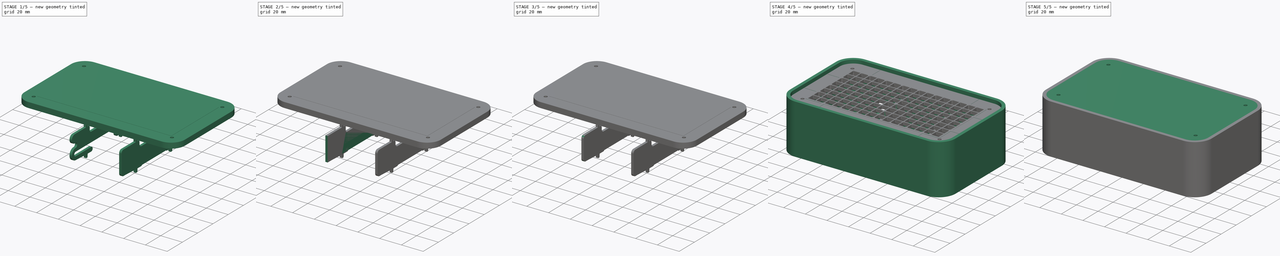
[diagram: build sequence overview — one tinted view per stage of 5, left to right]
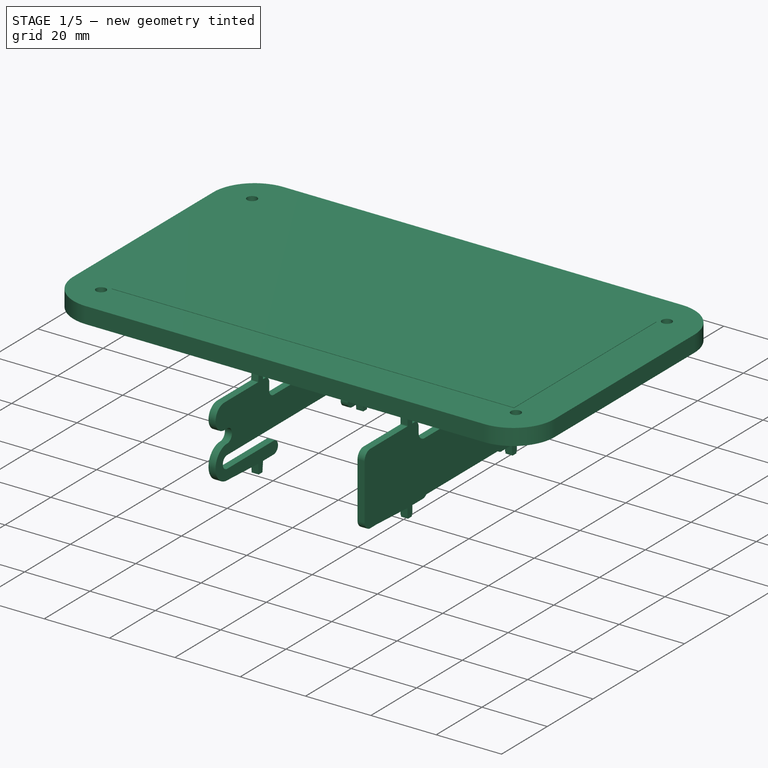
[diagram: stage 1 of 5 — iso view after this stage's code; geometry added in this stage tinted green]
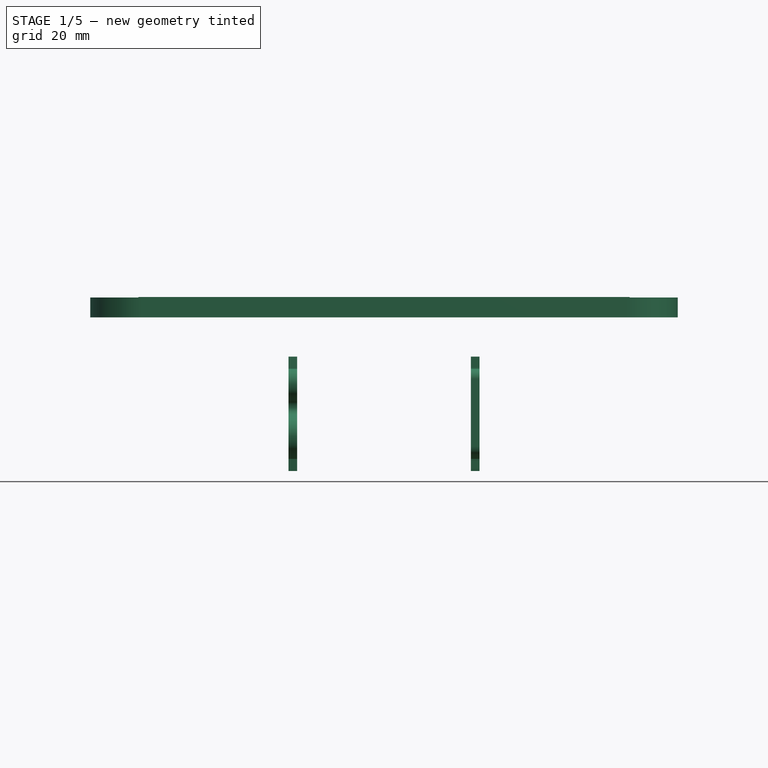
[diagram: stage 1 of 5 — front view after this stage's code; geometry added in this stage tinted green]
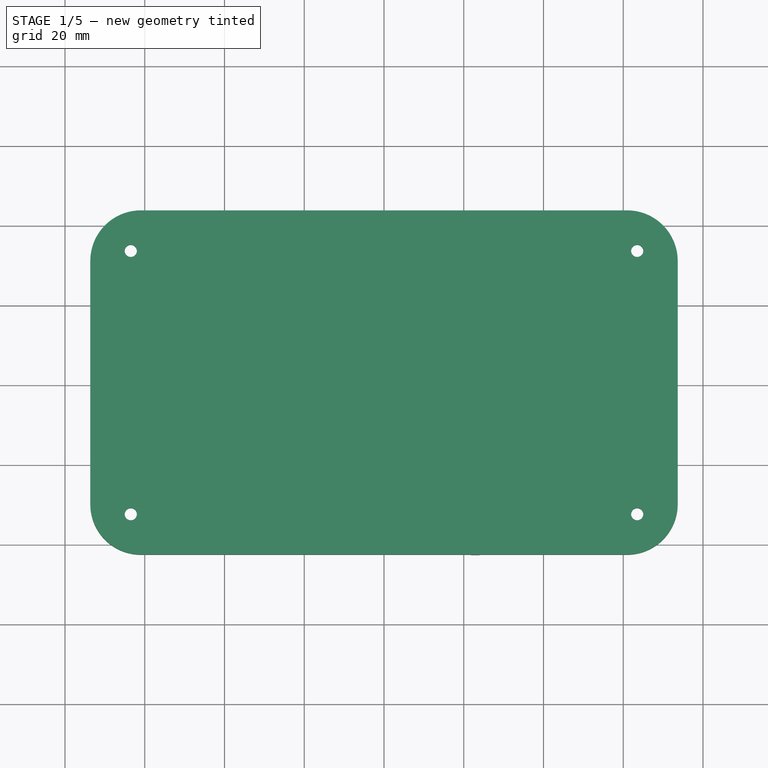
[diagram: stage 1 of 5 — top view after this stage's code; geometry added in this stage tinted green]
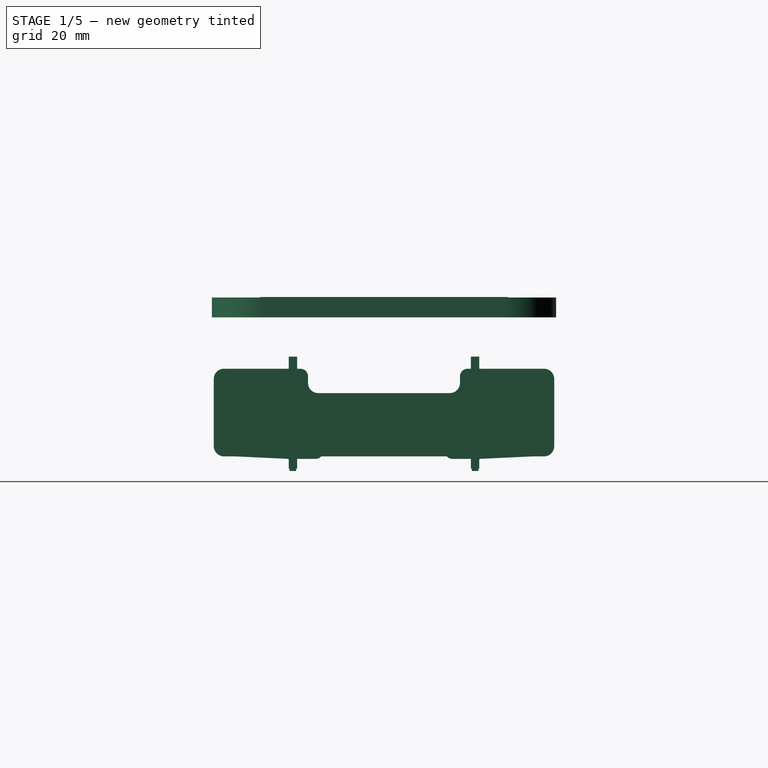
[diagram: stage 1 of 5 — right view after this stage's code; geometry added in this stage tinted green]
FCSTD DOCUMENT  (FreeCAD 0.16R6712 (Git))
Label: DesKLOK_case_02
License: All rights reserved
LicenseURL: http://en.wikipedia.org/wiki/All_rights_reserved
objects: Part::Feature×98, Sketcher::SketchObject×21, PartDesign::Draft×16, PartDesign::Pad×14, App::DocumentObjectGroup×10, PartDesign::Pocket×6, PartDesign::Fillet×5, PartDesign::LinearPattern×4, App::VRMLObject×3, Part::MultiFuse×2, PartDesign::MultiTransform×2, Drawing::FeatureViewPart×1, Drawing::FeaturePage×1
note: 188 computed .brp shape members not serialized (recipe doc carries the construction recipe); baked Part::Feature solids carry a one-line shape summary decoded from their .brp

FEATURE [App::DocumentObjectGroup] Group002  label="3d_models"
  Group = -> [ultim8x8,ultim8x8001,ultim_bus_snapped,Part__Feature,Part__Feature001,Fusion,Fusion001]
FEATURE [Sketcher::SketchObject] Sketch015
  Placement = pos=(0,0,5.4356) rot=(0,0,1;0rad)
  expr: Constraints[11] = 4.8in + 0.05in
  expr: Constraints[10] = 2.4in + 0.05in
  sketch-geometry (4):
    g0: LineSegment StartX=-61.595 StartY=31.115 StartZ=0 EndX=61.595 EndY=31.115 EndZ=0
    g1: LineSegment StartX=61.595 StartY=31.115 StartZ=0 EndX=61.595 EndY=-31.115 EndZ=0
    g2: LineSegment StartX=61.595 StartY=-31.115 StartZ=0 EndX=-61.595 EndY=-31.115 EndZ=0
    g3: LineSegment StartX=-61.595 StartY=-31.115 StartZ=0 EndX=-61.595 EndY=31.115 EndZ=0
  constraints (12):
    c: Coincident(g0,g1)
    c: Coincident(g1,g2)
    c: Coincident(g2,g3)
    c: Coincident(g3,g0)
    c: Horizontal(g0)
    c: Horizontal(g2)
    c: Vertical(g1)
    c: Vertical(g3)
    c: Symmetric(g0,g0,g-2)
    c: Symmetric(g0,g2,g-1)
    c: DistanceY(g3,g3) = 62.23
    c: DistanceX(g0,g0) = 123.19
FEATURE [PartDesign::Pad] Pad012
  Length = 3.048
  Length2 = 100
  Placement = pos=(0,0,5.4356) rot=(0,0,1;0rad)
  Reversed = true
  Sketch = -> Sketch015
  Type = 0
FEATURE [App::DocumentObjectGroup] Group  label="back_cover"
  Group = -> [Pad015,Pocket002,Pocket003]
FEATURE [Sketcher::SketchObject] Sketch024
  Placement = pos=(22.86,0,0) rot=(0.57735,0.57735,0.57735;2.0944rad)
  expr: Constraints[16] = 1.8in - 0.08500000000000001in
  sketch-geometry (50):
    g0: LineSegment StartX=-42.672 StartY=-34.544 StartZ=0 EndX=-23.876 EndY=-34.544 EndZ=0
    g1: LineSegment StartX=-21.7805 StartY=-34.544 StartZ=0 EndX=-19.05 EndY=-34.544 EndZ=0
    g2: LineSegment StartX=23.7564 StartY=-34.544 StartZ=0 EndX=42.672 EndY=-34.544 EndZ=0
    g3: LineSegment StartX=42.672 StartY=-34.544 StartZ=0 EndX=42.672 EndY=-12.573 EndZ=0
    g4: LineSegment StartX=42.672 StartY=-12.573 StartZ=0 EndX=23.7564 EndY=-12.573 EndZ=0
    g5: LineSegment StartX=-23.876 StartY=-12.573 StartZ=0 EndX=-42.672 EndY=-12.573 EndZ=0
    g6: LineSegment StartX=-42.672 StartY=-12.573 StartZ=0 EndX=-42.672 EndY=-34.544 EndZ=0
    g7: LineSegment StartX=19.05 StartY=-12.573 StartZ=0 EndX=19.05 EndY=-18.669 EndZ=0
    g8: LineSegment StartX=19.05 StartY=-18.669 StartZ=0 EndX=-19.05 EndY=-18.669 EndZ=0
    g9: LineSegment StartX=-19.05 StartY=-18.669 StartZ=0 EndX=-19.05 EndY=-12.573 EndZ=0
    g10: LineSegment StartX=-19.05 StartY=-12.573 StartZ=0 EndX=-21.7805 EndY=-12.573 EndZ=0
    g11: LineSegment StartX=21.7805 StartY=-12.573 StartZ=0 EndX=19.05 EndY=-12.573 EndZ=0
    g12: LineSegment StartX=19.05 StartY=-34.544 StartZ=0 EndX=19.05 EndY=-32.5885 EndZ=0
    g13: LineSegment StartX=19.05 StartY=-28.448 StartZ=0 EndX=-19.05 EndY=-28.448 EndZ=0
    g14: LineSegment StartX=19.05 StartY=-34.544 StartZ=0 EndX=21.7805 EndY=-34.544 EndZ=0
    g15: LineSegment [constr] StartX=-21.7805 StartY=-34.544 StartZ=0 EndX=-21.7805 EndY=-37.592 EndZ=0
    g16: LineSegment [constr] StartX=-23.876 StartY=-34.544 StartZ=0 EndX=-23.876 EndY=-37.592 EndZ=0
    g17: LineSegment [constr] StartX=-23.876 StartY=-37.592 StartZ=0 EndX=-23.622 EndY=-37.592 EndZ=0
    g18: LineSegment [constr] StartX=-21.7805 StartY=-37.592 StartZ=0 EndX=-22.0345 EndY=-37.592 EndZ=0
    g19: LineSegment StartX=-22.0345 StartY=-37.592 StartZ=0 EndX=-21.7805 EndY=-34.544 EndZ=0
    g20: LineSegment StartX=-23.622 StartY=-37.592 StartZ=0 EndX=-23.876 EndY=-34.544 EndZ=0
    g21: LineSegment StartX=-23.622 StartY=-37.592 StartZ=0 EndX=-22.0345 EndY=-37.592 EndZ=0
    g22: LineSegment [constr] StartX=-23.876 StartY=-12.573 StartZ=0 EndX=-23.876 EndY=-9.525 EndZ=0
    g23: LineSegment [constr] StartX=-21.7805 StartY=-12.573 StartZ=0 EndX=-21.7805 EndY=-9.525 EndZ=0
    g24: LineSegment [constr] StartX=-23.876 StartY=-9.525 StartZ=0 EndX=-23.622 EndY=-9.525 EndZ=0
    g25: LineSegment [constr] StartX=-21.7805 StartY=-9.525 StartZ=0 EndX=-22.0345 EndY=-9.525 EndZ=0
    g26: LineSegment StartX=-23.622 StartY=-9.525 StartZ=0 EndX=-22.0345 EndY=-9.525 EndZ=0
    g27: LineSegment StartX=-22.0345 StartY=-9.525 StartZ=0 EndX=-21.7805 EndY=-12.573 EndZ=0
    g28: LineSegment StartX=-23.622 StartY=-9.525 StartZ=0 EndX=-23.876 EndY=-12.573 EndZ=0
    g29: LineSegment [constr] StartX=21.7805 StartY=-9.525 StartZ=0 EndX=21.7805 EndY=-12.573 EndZ=0
    g30: LineSegment [constr] StartX=23.7564 StartY=-9.525 StartZ=0 EndX=23.7564 EndY=-12.573 EndZ=0
    g31: LineSegment [constr] StartX=21.7805 StartY=-9.525 StartZ=0 EndX=22.0345 EndY=-9.525 EndZ=0
    g32: LineSegment [constr] StartX=23.7564 StartY=-9.525 StartZ=0 EndX=23.5024 EndY=-9.525 EndZ=0
    g33: LineSegment StartX=21.7805 StartY=-12.573 StartZ=0 EndX=22.0345 EndY=-9.525 EndZ=0
    g34: LineSegment StartX=23.7564 StartY=-12.573 StartZ=0 EndX=23.5024 EndY=-9.525 EndZ=0
    g35: LineSegment StartX=22.0345 StartY=-9.525 StartZ=0 EndX=23.5024 EndY=-9.525 EndZ=0
    g36: LineSegment [constr] StartX=21.7805 StartY=-34.544 StartZ=0 EndX=21.7805 EndY=-37.592 EndZ=0
    g37: LineSegment [constr] StartX=23.7564 StartY=-34.544 StartZ=0 EndX=23.7564 EndY=-37.592 EndZ=0
    g38: LineSegment [constr] StartX=21.7805 StartY=-37.592 StartZ=0 EndX=22.0345 EndY=-37.592 EndZ=0
    g39: LineSegment [constr] StartX=23.7564 StartY=-37.592 StartZ=0 EndX=23.5024 EndY=-37.592 EndZ=0
    g40: LineSegment StartX=21.7827 StartY=-34.5394 StartZ=0 EndX=22.0345 EndY=-37.592 EndZ=0
    g41: LineSegment StartX=23.7564 StartY=-34.544 StartZ=0 EndX=23.5024 EndY=-37.592 EndZ=0
    g42: LineSegment StartX=22.0345 StartY=-37.592 StartZ=0 EndX=23.5024 EndY=-37.592 EndZ=0
    g43: LineSegment StartX=-19.05 StartY=-32.9385 StartZ=0 EndX=-37.8264 EndY=-32.9385 EndZ=0
    g44: LineSegment StartX=-37.8264 StartY=-32.9385 StartZ=0 EndX=-37.8264 EndY=-28.448 EndZ=0
    g45: LineSegment StartX=-37.8264 StartY=-28.448 StartZ=0 EndX=-19.05 EndY=-28.448 EndZ=0
    g46: LineSegment StartX=-19.05 StartY=-32.9385 StartZ=0 EndX=-19.05 EndY=-34.544 EndZ=0
    g47: LineSegment StartX=19.05 StartY=-32.5885 StartZ=0 EndX=36.1764 EndY=-32.5885 EndZ=0
    g48: LineSegment StartX=36.1764 StartY=-32.5885 StartZ=0 EndX=36.1764 EndY=-28.448 EndZ=0
    g49: LineSegment StartX=36.1764 StartY=-28.448 StartZ=0 EndX=19.05 EndY=-28.448 EndZ=0
  constraints (130):
    c: Horizontal(g1)
    c: Horizontal(g2)
    c: Coincident(g2,g3)
    c: Vertical(g3)
    c: Coincident(g3,g4)
    c: Horizontal(g4)
    c: Horizontal(g5)
    c: Coincident(g5,g6)
    c: Coincident(g6,g0)
    c: Vertical(g6)
    c: Horizontal(g0)
    c: Equal(g5,g0)
    c: Equal(g2,g4)
    c: DistanceY(g4,g30) = 3.048
    c: DistanceY(g37,g2) = 3.048
    c: Symmetric(g0,g2,g-2)
    c: DistanceX(g1,g14) = 43.561
    c: Symmetric(g1,g14,g-2)
    c: DistanceY(g1,g-1) = 34.544
    c: DistanceY(g3,g3) = 21.971
    c: Coincident(g7,g8)
    c: Coincident(g8,g9)
    c: Horizontal(g8)
    c: Vertical(g7)
    c: Vertical(g9)
    c: Symmetric(g8,g7,g-2)
    c: DistanceX(g8,g8) = 38.1
    c: DistanceY(g8,g10) = 6.096
    c: Coincident(g10,g9)
    c: Coincident(g11,g7)
    c: Horizontal(g11)
    c: Horizontal(g10)
    c: Equal(g10,g11)
    c: Symmetric(g11,g10,g-2)
    c: DistanceX(g10,g10) = 2.7305
    c: DistanceX(g0,g0) = 18.796
    c: Horizontal(g13)
    c: Vertical(g12)
    c: DistanceX(g13,g13) = 38.1
    c: Tangent(g1,g14)
    c: Coincident(g46,g1)
    c: Coincident(g12,g14)
    c: DistanceY(g1,g13) = 6.096
    c: Coincident(g15,g1)
    c: Vertical(g15)
    c: Coincident(g16,g0)
    c: Vertical(g16)
    c: Coincident(g17,g16)
    c: Horizontal(g17)
    c: Coincident(g18,g15)
    c: DistanceX(g18,g18) = 0.254
    c: DistanceX(g17,g17) = 0.254
    c: Coincident(g19,g18)
    c: Coincident(g19,g1)
    c: Coincident(g20,g17)
    c: Coincident(g20,g0)
    c: Coincident(g21,g17)
    c: Coincident(g21,g18)
    c: Horizontal(g21)
    c: Horizontal(g18)
    c: DistanceY(g16,g16) = 3.048
    c: Coincident(g22,g5)
    c: Vertical(g22)
    c: DistanceY(g22,g22) = 3.048
    c: Coincident(g23,g10)
    c: Vertical(g23)
    c: Horizontal(g24)
    c: Coincident(g25,g23)
    c: Horizontal(g25)
    c: Coincident(g22,g24)
    c: DistanceX(g24,g24) = 0.254
    c: DistanceX(g25,g25) = 0.254
    c: Coincident(g26,g24)
    c: Coincident(g26,g25)
    c: Horizontal(g26)
    c: Coincident(g27,g25)
    c: Coincident(g27,g10)
    c: Coincident(g5,g28)
    c: Coincident(g24,g28)
    c: Coincident(g29,g11)
    c: Vertical(g29)
    c: Vertical(g30)
    c: DistanceY(g29,g29) = 3.048
    c: Coincident(g31,g29)
    c: Horizontal(g31)
    c: Horizontal(g32)
    c: DistanceX(g31,g31) = 0.254
    c: DistanceX(g32,g32) = 0.254
    c: Coincident(g30,g32)
    c: Coincident(g4,g30)
    c: Coincident(g33,g11)
    c: Coincident(g31,g33)
    c: Coincident(g34,g4)
    c: Coincident(g34,g32)
    c: Coincident(g35,g31)
    c: Coincident(g35,g32)
    c: Horizontal(g35)
    c: Vertical(g36)
    c: Coincident(g37,g2)
    c: Vertical(g37)
    c: Coincident(g39,g37)
    c: Horizontal(g39)
    c: Horizontal(g38)
    c: Coincident(g36,g38)
    c: DistanceX(g38,g38) = 0.254
    c: DistanceX(g39,g39) = 0.254
    c: Coincident(g41,g39)
    c: Coincident(g2,g41)
    c: Coincident(g38,g40)
    c: Coincident(g42,g39)
    c: Horizontal(g42)
    c: Coincident(g38,g42)
    c: DistanceY(g5,g10) = 0
    c: DistanceY(g14,g2) = 0
    c: DistanceX(g0,g2) = 85.344
    c: DistanceX(g10,g11) = 43.561
    c: Coincident(g43,g44)
    c: Coincident(g44,g45)
    c: Horizontal(g43)
    c: Horizontal(g45)
    c: Vertical(g44)
    c: Coincident(g43,g46)
    c: Coincident(g13,g45)
    c: Horizontal(g47)
    c: Coincident(g47,g48)
    c: Vertical(g48)
    c: Coincident(g48,g49)
    c: Horizontal(g49)
    c: Coincident(g13,g49)
    c: Coincident(g12,g47)
FEATURE [PartDesign::Pad] Pad018
  Length = 2.159
  Length2 = 100
  Midplane = true
  Placement = pos=(22.86,0,0) rot=(0.57735,0.57735,0.57735;2.0944rad)
  Sketch = -> Sketch024
  Type = 0
FEATURE [PartDesign::Fillet] Fillet002
  Base = -> Pad018 [Edge44,Edge47,Edge50,Edge53,Edge68,Edge1,Edge26,Edge29]
  Placement = pos=(22.86,0,0) rot=(0.57735,0.57735,0.57735;2.0944rad)
  Radius = 2.54
FEATURE [App::DocumentObjectGroup] Group006  label="spacer1"
  Group = -> [Pad018,Fillet002,Draft,Draft001,Draft002,Draft003,Draft004,Draft005,Draft016,Draft017]
FEATURE [Sketcher::SketchObject] Sketch027
  Placement = pos=(0,0,3.302) rot=(0,0,1;0rad)
  sketch-geometry (12):
    g0: LineSegment StartX=-60.96 StartY=43.18 StartZ=0 EndX=60.96 EndY=43.18 EndZ=0
    g1: LineSegment StartX=73.66 StartY=30.48 StartZ=0 EndX=73.66 EndY=-30.48 EndZ=0
    g2: LineSegment StartX=60.96 StartY=-43.18 StartZ=0 EndX=-60.96 EndY=-43.18 EndZ=0
    g3: LineSegment StartX=-73.66 StartY=-30.48 StartZ=0 EndX=-73.66 EndY=30.48 EndZ=0
    g4: ArcOfCircle CenterX=-60.96 CenterY=30.48 CenterZ=0 NormalX=0 NormalY=0 NormalZ=1 Radius=12.7 StartAngle=1.5708 EndAngle=3.14159
    g5: ArcOfCircle CenterX=-60.96 CenterY=-30.48 CenterZ=0 NormalX=0 NormalY=0 NormalZ=1 Radius=12.7 StartAngle=3.14159 EndAngle=4.71239
    g6: ArcOfCircle CenterX=60.96 CenterY=-30.48 CenterZ=0 NormalX=0 NormalY=0 NormalZ=1 Radius=12.7 StartAngle=4.71239 EndAngle=6.28319
    g7: ArcOfCircle CenterX=60.96 CenterY=30.48 CenterZ=0 NormalX=0 NormalY=0 NormalZ=1 Radius=12.7 StartAngle=0 EndAngle=1.5708
    g8: Circle CenterX=-63.5 CenterY=33.02 CenterZ=0 NormalX=0 NormalY=0 NormalZ=1 Radius=1.524
    g9: Circle CenterX=-63.5 CenterY=-33.02 CenterZ=0 NormalX=0 NormalY=0 NormalZ=1 Radius=1.524
    g10: Circle CenterX=63.5 CenterY=-33.02 CenterZ=0 NormalX=0 NormalY=0 NormalZ=1 Radius=1.524
    g11: Circle CenterX=63.5 CenterY=33.02 CenterZ=0 NormalX=0 NormalY=0 NormalZ=1 Radius=1.524
  constraints (28):
    c: Horizontal(g0)
    c: Horizontal(g2)
    c: Vertical(g1)
    c: Tangent(g0,g4) = 1.5708
    c: Tangent(g3,g4) = 1.5708
    c: Tangent(g3,g5) = 1.5708
    c: Tangent(g2,g5) = 1.5708
    c: Tangent(g2,g6) = 1.5708
    c: Tangent(g1,g6) = 1.5708
    c: Tangent(g1,g7) = 1.5708
    c: Tangent(g0,g7) = 1.5708
    c: Radius(g4) = 12.7
    c: Equal(g4,g5)
    c: Equal(g4,g6)
    c: Equal(g4,g7)
    c: DistanceX(g3,g1) = 147.32
    c: Symmetric(g3,g1,g-2)
    c: DistanceY(g2,g0) = 86.36
    c: Symmetric(g0,g2,g-1)
    c: Radius(g8) = 1.524
    c: Equal(g8,g9)
    c: Equal(g8,g10)
    c: Equal(g8,g11)
    c: DistanceX(g8,g11) = 127
    c: DistanceY(g9,g8) = 66.04
    c: Symmetric(g8,g11,g-2)
    c: Symmetric(g8,g9,g-1)
    c: Symmetric(g11,g10,g-1)
FEATURE [PartDesign::Pad] Pad020
  Length = 2.0066
  Length2 = 100
  Placement = pos=(0,0,3.302) rot=(0,0,1;0rad)
  Sketch = -> Sketch027
  Type = 0
FEATURE [Sketcher::SketchObject] Sketch028
  Placement = pos=(0,0,5.3086) rot=(0,0,1;0rad)
  Support = -> Pad020 [Face14]
  expr: Constraints[47] = 2.4in - 0.15in
  expr: Constraints[48] = 1.2in - 0.15in
  sketch-geometry (20):
    g0: LineSegment StartX=-59.944 StartY=29.972 StartZ=0 EndX=-54.356 EndY=29.972 EndZ=0
    g1: LineSegment StartX=-53.848 StartY=29.464 StartZ=0 EndX=-53.848 EndY=23.876 EndZ=0
    g2: LineSegment StartX=-54.356 StartY=23.368 StartZ=0 EndX=-59.944 EndY=23.368 EndZ=0
    g3: LineSegment StartX=-60.452 StartY=23.876 StartZ=0 EndX=-60.452 EndY=29.464 EndZ=0
    g4: ArcOfCircle CenterX=-59.944 CenterY=29.464 CenterZ=0 NormalX=0 NormalY=0 NormalZ=1 Radius=0.508 StartAngle=1.5708 EndAngle=3.14159
    g5: ArcOfCircle CenterX=-59.944 CenterY=23.876 CenterZ=0 NormalX=0 NormalY=0 NormalZ=1 Radius=0.508 StartAngle=3.14159 EndAngle=4.71239
    g6: ArcOfCircle CenterX=-54.356 CenterY=23.876 CenterZ=0 NormalX=0 NormalY=0 NormalZ=1 Radius=0.508 StartAngle=4.71239 EndAngle=6.28319
    g7: ArcOfCircle CenterX=-54.356 CenterY=29.464 CenterZ=0 NormalX=0 NormalY=0 NormalZ=1 Radius=0.508 StartAngle=0 EndAngle=1.5708
    g8: LineSegment [constr] StartX=-60.96 StartY=30.48 StartZ=0 EndX=-53.34 EndY=30.48 EndZ=0
    g9: LineSegment [constr] StartX=-53.34 StartY=30.48 StartZ=0 EndX=-53.34 EndY=22.86 EndZ=0
    g10: LineSegment [constr] StartX=-53.34 StartY=22.86 StartZ=0 EndX=-60.96 EndY=22.86 EndZ=0
    g11: LineSegment [constr] StartX=-60.96 StartY=22.86 StartZ=0 EndX=-60.96 EndY=30.48 EndZ=0
    g12: LineSegment [constr] StartX=-53.34 StartY=30.48 StartZ=0 EndX=-45.72 EndY=30.48 EndZ=0
    g13: LineSegment [constr] StartX=-45.72 StartY=30.48 StartZ=0 EndX=-45.72 EndY=22.86 EndZ=0
    g14: LineSegment [constr] StartX=-45.72 StartY=22.86 StartZ=0 EndX=-53.34 EndY=22.86 EndZ=0
    g15: LineSegment [constr] StartX=-53.34 StartY=22.86 StartZ=0 EndX=-53.34 EndY=30.48 EndZ=0
    g16: LineSegment [constr] StartX=-60.96 StartY=30.48 StartZ=0 EndX=-57.15 EndY=26.67 EndZ=0
    g17: LineSegment [constr] StartX=-53.34 StartY=30.48 StartZ=0 EndX=-57.15 EndY=26.67 EndZ=0
    g18: LineSegment [constr] StartX=-57.15 StartY=26.67 StartZ=0 EndX=-60.96 EndY=22.86 EndZ=0
    g19: LineSegment [constr] StartX=-57.15 StartY=26.67 StartZ=0 EndX=-53.34 EndY=22.86 EndZ=0
  constraints (54):
    c: Horizontal(g0)
    c: Horizontal(g2)
    c: Vertical(g1)
    c: Vertical(g3)
    c: Equal(g0,g3)
    c: Tangent(g0,g4) = 1.5708
    c: Tangent(g3,g4) = 1.5708
    c: Tangent(g3,g5) = 1.5708
    c: Tangent(g2,g5) = 1.5708
    c: Tangent(g2,g6) = 1.5708
    c: Tangent(g1,g6) = 1.5708
    c: Tangent(g1,g7) = 1.5708
    c: Tangent(g0,g7) = 1.5708
    c: Radius(g4) = 0.508
    c: Equal(g4,g5)
    c: Equal(g4,g6)
    c: Equal(g4,g7)
    c: DistanceX(g3,g1) = 6.604
    c: Coincident(g8,g9)
    c: Coincident(g9,g10)
    c: Coincident(g10,g11)
    c: Coincident(g11,g8)
    c: Horizontal(g8)
    c: Horizontal(g10)
    c: Vertical(g9)
    c: Vertical(g11)
    c: Coincident(g12,g13)
    c: Coincident(g13,g14)
    c: Coincident(g14,g15)
    c: Coincident(g15,g12)
    c: Horizontal(g12)
    c: Horizontal(g14)
    c: Vertical(g13)
    c: Vertical(g15)
    c: Equal(g11,g8)
    c: Equal(g8,g15)
    c: Equal(g15,g12)
    c: Coincident(g8,g17)
    c: Coincident(g8,g16)
    c: Coincident(g16,g17)
    c: Coincident(g18,g16)
    c: Coincident(g19,g16)
    c: Coincident(g18,g10)
    c: Coincident(g19,g9)
    c: Equal(g18,g16)
    c: Equal(g16,g17)
    c: Equal(g17,g19)
    c: DistanceX(g16,g-1) = 57.15
    c: DistanceY(g-1,g16) = 26.67
    c: DistanceX(g8,g8) = 7.62
    c: DistanceX(g3,g16) = 3.302
    c: DistanceY(g16,g0) = 3.302
    c: DistanceX(g8,g12) = 7.62
    c: DistanceY(g12,g8) = 0
FEATURE [PartDesign::Pocket] Pocket005
  Length = 4.99999
  Placement = pos=(0,0,3.302) rot=(0,0,1;0rad)
  Sketch = -> Sketch028
  Type = 1
FEATURE [App::DocumentObjectGroup] Group004  label="baffle"
  Group = -> [Pad012,Pocket001,MultiTransform,Pad013,Pad014,Pad017,Fillet003,Fillet004]
FEATURE [Sketcher::SketchObject] Sketch029
  Placement = pos=(0,0,3.302) rot=(0,0,1;0rad)
  sketch-geometry (60):
    g0: LineSegment StartX=-60.96 StartY=43.18 StartZ=0 EndX=60.96 EndY=43.18 EndZ=0
    g1: LineSegment StartX=73.66 StartY=30.48 StartZ=0 EndX=73.66 EndY=-30.48 EndZ=0
    g2: LineSegment StartX=60.96 StartY=-43.18 StartZ=0 EndX=-60.96 EndY=-43.18 EndZ=0
    g3: LineSegment StartX=-73.66 StartY=-30.48 StartZ=0 EndX=-73.66 EndY=30.48 EndZ=0
    g4: ArcOfCircle CenterX=-60.96 CenterY=30.48 CenterZ=0 NormalX=0 NormalY=0 NormalZ=1 Radius=12.7 StartAngle=1.5708 EndAngle=3.14159
    g5: ArcOfCircle CenterX=-60.96 CenterY=-30.48 CenterZ=0 NormalX=0 NormalY=0 NormalZ=1 Radius=12.7 StartAngle=3.14159 EndAngle=4.71239
    g6: ArcOfCircle CenterX=60.96 CenterY=-30.48 CenterZ=0 NormalX=0 NormalY=0 NormalZ=1 Radius=12.7 StartAngle=4.71239 EndAngle=6.28319
    g7: ArcOfCircle CenterX=60.96 CenterY=30.48 CenterZ=0 NormalX=0 NormalY=0 NormalZ=1 Radius=12.7 StartAngle=0 EndAngle=1.5708
    g8: Circle CenterX=-63.5 CenterY=33.02 CenterZ=0 NormalX=0 NormalY=0 NormalZ=1 Radius=1.524
    g9: Circle CenterX=-63.5 CenterY=-33.02 CenterZ=0 NormalX=0 NormalY=0 NormalZ=1 Radius=1.524
    g10: Circle CenterX=63.5 CenterY=-33.02 CenterZ=0 NormalX=0 NormalY=0 NormalZ=1 Radius=1.524
    g11: Circle CenterX=63.5 CenterY=33.02 CenterZ=0 NormalX=0 NormalY=0 NormalZ=1 Radius=1.524
    g12: ArcOfCircle CenterX=15.24 CenterY=30.48 CenterZ=0 NormalX=0 NormalY=0 NormalZ=1 Radius=1.27 StartAngle=3.14159 EndAngle=6.28319
    g13: ArcOfCircle CenterX=30.48 CenterY=30.48 CenterZ=0 NormalX=0 NormalY=0 NormalZ=1 Radius=1.27 StartAngle=3.14159 EndAngle=6.28319
    g14: ArcOfCircle CenterX=45.72 CenterY=30.48 CenterZ=0 NormalX=0 NormalY=0 NormalZ=1 Radius=1.27 StartAngle=3.14159 EndAngle=6.28319
    g15: ArcOfCircle CenterX=60.96 CenterY=15.24 CenterZ=0 NormalX=0 NormalY=0 NormalZ=1 Radius=1.27 StartAngle=1.5708 EndAngle=4.71239
    g16: ArcOfCircle CenterX=60.96 CenterY=0 CenterZ=0 NormalX=0 NormalY=0 NormalZ=1 Radius=1.27 StartAngle=1.5708 EndAngle=4.71239
    g17: ArcOfCircle CenterX=60.96 CenterY=-15.24 CenterZ=0 NormalX=0 NormalY=0 NormalZ=1 Radius=1.27 StartAngle=1.5708 EndAngle=4.71239
    g18: ArcOfCircle CenterX=45.72 CenterY=-30.48 CenterZ=0 NormalX=0 NormalY=0 NormalZ=1 Radius=1.27 StartAngle=0 EndAngle=3.14159
    g19: ArcOfCircle CenterX=30.48 CenterY=-30.48 CenterZ=0 NormalX=0 NormalY=0 NormalZ=1 Radius=1.27 StartAngle=0 EndAngle=3.14159
    g20: ArcOfCircle CenterX=15.24 CenterY=-30.48 CenterZ=0 NormalX=0 NormalY=0 NormalZ=1 Radius=1.27 StartAngle=0 EndAngle=3.14159
    g21: ArcOfCircle CenterX=-15.24 CenterY=-30.48 CenterZ=0 NormalX=0 NormalY=0 NormalZ=1 Radius=1.27 StartAngle=0 EndAngle=3.14159
    g22: ArcOfCircle CenterX=-30.48 CenterY=-30.48 CenterZ=0 NormalX=0 NormalY=0 NormalZ=1 Radius=1.27 StartAngle=0 EndAngle=3.14159
    g23: ArcOfCircle CenterX=-45.72 CenterY=-30.48 CenterZ=0 NormalX=0 NormalY=0 NormalZ=1 Radius=1.27 StartAngle=0 EndAngle=3.14159
    g24: ArcOfCircle CenterX=-60.96 CenterY=-15.24 CenterZ=0 NormalX=0 NormalY=0 NormalZ=1 Radius=1.27 StartAngle=4.71239 EndAngle=7.85398
    g25: ArcOfCircle CenterX=-60.96 CenterY=0 CenterZ=0 NormalX=0 NormalY=0 NormalZ=1 Radius=1.27 StartAngle=4.71239 EndAngle=7.85398
    g26: ArcOfCircle CenterX=-60.96 CenterY=15.24 CenterZ=0 NormalX=0 NormalY=0 NormalZ=1 Radius=1.27 StartAngle=4.71239 EndAngle=7.85398
    g27: ArcOfCircle CenterX=-45.72 CenterY=30.48 CenterZ=0 NormalX=0 NormalY=0 NormalZ=1 Radius=1.27 StartAngle=3.14159 EndAngle=6.28319
    g28: ArcOfCircle CenterX=-30.48 CenterY=30.48 CenterZ=0 NormalX=0 NormalY=0 NormalZ=1 Radius=1.27 StartAngle=3.14159 EndAngle=6.28319
    g29: ArcOfCircle CenterX=-15.24 CenterY=30.48 CenterZ=0 NormalX=0 NormalY=0 NormalZ=1 Radius=1.27 StartAngle=3.14159 EndAngle=6.28319
    g30: ArcOfCircle CenterX=0 CenterY=30.48 CenterZ=0 NormalX=0 NormalY=0 NormalZ=1 Radius=1.27 StartAngle=3.14159 EndAngle=6.28319
    g31: ArcOfCircle CenterX=0 CenterY=-30.48 CenterZ=0 NormalX=0 NormalY=0 NormalZ=1 Radius=1.27 StartAngle=0 EndAngle=3.14159
    g32: ArcOfCircle CenterX=60.96 CenterY=-30.48 CenterZ=0 NormalX=0 NormalY=0 NormalZ=1 Radius=1.27 StartAngle=1.5708 EndAngle=3.14159
    g33: ArcOfCircle CenterX=60.96 CenterY=30.48 CenterZ=0 NormalX=0 NormalY=0 NormalZ=1 Radius=1.27 StartAngle=3.14159 EndAngle=4.71239
    g34: ArcOfCircle CenterX=-60.96 CenterY=30.48 CenterZ=0 NormalX=0 NormalY=0 NormalZ=1 Radius=1.27 StartAngle=4.71239 EndAngle=6.28319
    g35: ArcOfCircle CenterX=-60.96 CenterY=-30.48 CenterZ=0 NormalX=0 NormalY=0 NormalZ=1 Radius=1.27 StartAngle=0 EndAngle=1.5708
    g36: LineSegment StartX=-59.69 StartY=30.48 StartZ=0 EndX=-46.99 EndY=30.48 EndZ=0
    g37: LineSegment StartX=-44.45 StartY=30.48 StartZ=0 EndX=-31.75 EndY=30.48 EndZ=0
    g38: LineSegment StartX=-29.21 StartY=30.48 StartZ=0 EndX=-16.51 EndY=30.48 EndZ=0
    g39: LineSegment StartX=-13.97 StartY=30.48 StartZ=0 EndX=-1.27 EndY=30.48 EndZ=0
    g40: LineSegment StartX=1.27 StartY=30.48 StartZ=0 EndX=13.97 EndY=30.48 EndZ=0
    g41: LineSegment StartX=16.51 StartY=30.48 StartZ=0 EndX=29.21 EndY=30.48 EndZ=0
    g42: LineSegment StartX=31.75 StartY=30.48 StartZ=0 EndX=44.45 EndY=30.48 EndZ=0
    g43: LineSegment StartX=46.99 StartY=30.48 StartZ=0 EndX=59.69 EndY=30.48 EndZ=0
    g44: LineSegment StartX=60.96 StartY=29.21 StartZ=0 EndX=60.96 EndY=16.51 EndZ=0
    g45: LineSegment StartX=60.96 StartY=13.97 StartZ=0 EndX=60.96 EndY=1.27 EndZ=0
    g46: LineSegment StartX=60.96 StartY=-1.27 StartZ=0 EndX=60.96 EndY=-13.97 EndZ=0
    g47: LineSegment StartX=60.96 StartY=-16.51 StartZ=0 EndX=60.96 EndY=-29.21 EndZ=0
    g48: LineSegment StartX=59.69 StartY=-30.48 StartZ=0 EndX=46.99 EndY=-30.48 EndZ=0
    g49: LineSegment StartX=44.45 StartY=-30.48 StartZ=0 EndX=31.75 EndY=-30.48 EndZ=0
    g50: LineSegment StartX=29.21 StartY=-30.48 StartZ=0 EndX=16.51 EndY=-30.48 EndZ=0
    g51: LineSegment StartX=13.97 StartY=-30.48 StartZ=0 EndX=1.27 EndY=-30.48 EndZ=0
    g52: LineSegment StartX=-1.27 StartY=-30.48 StartZ=0 EndX=-13.97 EndY=-30.48 EndZ=0
    g53: LineSegment StartX=-16.51 StartY=-30.48 StartZ=0 EndX=-29.21 EndY=-30.48 EndZ=0
    g54: LineSegment StartX=-31.75 StartY=-30.48 StartZ=0 EndX=-44.45 EndY=-30.48 EndZ=0
    g55: LineSegment StartX=-46.99 StartY=-30.48 StartZ=0 EndX=-59.69 EndY=-30.48 EndZ=0
    g56: LineSegment StartX=-60.96 StartY=-29.21 StartZ=0 EndX=-60.96 EndY=-16.51 EndZ=0
    g57: LineSegment StartX=-60.96 StartY=-13.97 StartZ=0 EndX=-60.96 EndY=-1.27 EndZ=0
    g58: LineSegment StartX=-60.96 StartY=1.27 StartZ=0 EndX=-60.96 EndY=13.97 EndZ=0
    g59: LineSegment StartX=-60.96 StartY=16.51 StartZ=0 EndX=-60.96 EndY=29.21 EndZ=0
  constraints (192):
    c: Horizontal(g0)
    c: Horizontal(g2)
    c: Vertical(g1)
    c: Tangent(g0,g4) = 1.5708
    c: Tangent(g3,g4) = 1.5708
    c: Tangent(g3,g5) = 1.5708
    c: Tangent(g2,g5) = 1.5708
    c: Tangent(g2,g6) = 1.5708
    c: Tangent(g1,g6) = 1.5708
    c: Tangent(g1,g7) = 1.5708
    c: Tangent(g0,g7) = 1.5708
    c: Radius(g4) = 12.7
    c: Equal(g4,g5)
    c: Equal(g4,g6)
    c: DistanceX(g3,g1) = 147.32
    c: Symmetric(g3,g1,g-2)
    c: DistanceY(g2,g0) = 86.36
    c: Symmetric(g0,g2,g-1)
    c: Radius(g8) = 1.524
    c: Equal(g8,g9)
    c: Equal(g8,g10)
    c: Equal(g8,g11)
    c: DistanceX(g8,g11) = 127
    c: DistanceY(g9,g8) = 66.04
    c: Symmetric(g8,g11,g-2)
    c: Symmetric(g8,g9,g-1)
    c: Symmetric(g11,g10,g-1)
    c: Radius(g34) = 1.27
    c: Equal(g34, g27-g30) x4
    c: Equal(g34,g12)
    c: Equal(g34,g13)
    c: Equal(g34,g14)
    c: Equal(g34,g33)
    c: Equal(g34,g15)
    c: Equal(g34,g16)
    c: Equal(g34,g17)
    c: Equal(g34,g32)
    c: Equal(g34,g18)
    c: Equal(g34,g19)
    c: Equal(g34,g20)
    c: Equal(g34,g31)
    c: Equal(g34,g21)
    c: Equal(g34,g22)
    c: Equal(g34,g23)
    c: Equal(g34,g35)
    c: Equal(g34,g24)
    c: Equal(g34,g25)
    c: Equal(g34,g26)
    c: DistanceY(g-1,g30) = 30.48
    c: DistanceX(g30,g12) = 15.24
    c: DistanceX(g12,g13) = 15.24
    c: DistanceX(g13,g14) = 15.24
    c: DistanceX(g14,g33) = 15.24
    c: DistanceY(g-1,g12) = 30.48
    c: DistanceY(g-1,g13) = 30.48
    c: DistanceY(g-1,g14) = 30.48
    c: DistanceY(g-1,g33) = 30.48
    c: Symmetric(g29,g12,g-2)
    c: Symmetric(g28,g13,g-2)
    c: Symmetric(g27,g14,g-2)
    c: Symmetric(g34,g7,g-2)
    c: Symmetric(g31,g30,g-1)
    c: Symmetric(g21,g29,g-1)
    c: Symmetric(g22,g28,g-1)
    c: Symmetric(g27,g23,g-1)
    c: Symmetric(g4,g35,g-1)
    c: Symmetric(g20,g12,g-1)
    c: Symmetric(g13,g19,g-1)
    c: Symmetric(g18,g14,g-1)
    c: Symmetric(g32,g7,g-1)
    c: DistanceX(g25,g-1) = 60.96
    c: DistanceX(g26,g-1) = 60.96
    c: Symmetric(g26,g24,g-1)
    c: Symmetric(g16,g25,g-2)
    c: Symmetric(g15,g26,g-2)
    c: Symmetric(g17,g24,g-2)
    c: Horizontal(g36)
    c: Coincident(g34,g36)
    c: Coincident(g27,g36)
    c: Horizontal(g37)
    c: Horizontal(g38)
    c: Horizontal(g39)
    c: Horizontal(g40)
    c: Horizontal(g41)
    c: Horizontal(g42)
    c: Horizontal(g43)
    c: Vertical(g44)
    c: Vertical(g45)
    c: Vertical(g46)
    c: Vertical(g47)
    c: Horizontal(g48)
    c: Horizontal(g49)
    c: Horizontal(g50)
    c: Horizontal(g51)
    c: Horizontal(g52)
    c: Horizontal(g53)
    c: Horizontal(g54)
    c: Horizontal(g55)
    c: Vertical(g56)
    c: Vertical(g57)
    c: Vertical(g58)
    c: Vertical(g59)
    c: Coincident(g27,g37)
    c: Coincident(g28,g37)
    c: Coincident(g28,g38)
    c: Coincident(g29,g38)
    c: Coincident(g29,g39)
    c: Coincident(g30,g39)
    c: Coincident(g30,g40)
    c: Coincident(g12,g40)
    c: Coincident(g12,g41)
    c: Coincident(g13,g41)
    c: Coincident(g13,g42)
    c: Coincident(g14,g42)
    c: Coincident(g14,g43)
    c: Coincident(g33,g43)
    c: Coincident(g33,g44)
    c: Coincident(g15,g44)
    c: Coincident(g15,g45)
    c: Coincident(g16,g45)
    c: Coincident(g16,g46)
    c: Coincident(g17,g46)
    c: Coincident(g17,g47)
    c: Coincident(g32,g47)
    c: Coincident(g32,g48)
    c: Coincident(g18,g48)
    c: Coincident(g18,g49)
    c: Coincident(g19,g49)
    c: Coincident(g19,g50)
    c: Coincident(g20,g50)
    c: Coincident(g20,g51)
    c: Coincident(g31,g51)
    c: Coincident(g31,g52)
    c: Coincident(g21,g52)
    c: Coincident(g21,g53)
    c: Coincident(g22,g53)
    c: Coincident(g22,g54)
    c: Coincident(g23,g54)
    c: Coincident(g23,g55)
    c: Coincident(g35,g55)
    c: Coincident(g35,g56)
    c: Coincident(g24,g56)
    c: Coincident(g24,g57)
    c: Coincident(g25,g57)
    c: Coincident(g25,g58)
    c: Coincident(g26,g58)
    c: Coincident(g26,g59)
    c: Coincident(g34,g59)
    c: Equal(g52,g51)
    c: Equal(g51,g50)
    c: Equal(g50,g49)
    c: Equal(g49,g48)
    c: Equal(g48,g53)
    c: Equal(g53,g54)
    c: Equal(g54,g55)
    c: Equal(g55,g56)
    c: Equal(g56,g57)
    c: Equal(g57,g58)
    c: Equal(g58,g59)
    c: Equal(g59,g36)
    c: Equal(g36,g37)
    c: Equal(g37,g38)
    c: Equal(g38,g39)
    c: Equal(g39,g40)
    c: Equal(g40,g41)
    c: Equal(g41,g42)
    c: Equal(g42,g43)
    c: Equal(g43,g44)
    c: Equal(g44,g45)
    c: Equal(g45,g46)
    c: Equal(g46,g47)
    c: DistanceY(g23,g23) = 0
    c: DistanceY(g21,g21) = 0
    c: DistanceY(g20,g20) = 0
    c: DistanceY(g18,g18) = 0
    c: DistanceY(g30,g30) = 0
    c: DistanceY(g29,g29) = 0
    c: DistanceY(g28,g28) = 0
    c: DistanceY(g27,g27) = 0
    c: DistanceX(g26,g26) = 0
    c: DistanceX(g25,g25) = 0
    c: DistanceX(g16,g16) = 0
    c: Angle(g23) = 3.14159
    c: Angle(g30) = 3.14159
    c: Angle(g12) = 3.14159
    c: Angle(g13) = 3.14159
    c: Angle(g14) = 3.14159
    c: Angle(g15) = 3.14159
    c: Angle(g18) = 3.14159
    c: Angle(g19) = 3.14159
    c: Angle(g20) = 3.14159
    c: Angle(g31) = 3.14159
FEATURE [PartDesign::Pad] Pad021
  Length = 2.9972
  Length2 = 100
  Placement = pos=(0,0,3.302) rot=(0,0,1;0rad)
  Reversed = true
  Sketch = -> Sketch029
  Type = 0
FEATURE [PartDesign::LinearPattern] LinearPattern002
  Direction = -> Sketch028 [H_Axis]
  Length = 114.3
  Occurrences = 16
  Placement = pos=(0,0,3.302) rot=(0,0,1;0rad)
FEATURE [PartDesign::LinearPattern] LinearPattern003
  Direction = -> Sketch028 [V_Axis]
  Length = 53.34
  Occurrences = 8
  Placement = pos=(0,0,3.302) rot=(0,0,1;0rad)
  Reversed = true
FEATURE [PartDesign::MultiTransform] MultiTransform001
  Originals = -> [Pocket005]
  Placement = pos=(0,0,3.302) rot=(0,0,1;0rad)
  Transformations = -> [LinearPattern002,LinearPattern003]
FEATURE [App::DocumentObjectGroup] Group008  label="baffle2"
  Group = -> [Pad020,Pocket005,MultiTransform001,Pad021]
FEATURE [Sketcher::SketchObject] Sketch031
  Placement = pos=(22.86,0,0) rot=(0.57735,0.57735,0.57735;2.0944rad)
  sketch-geometry (60):
    g0: LineSegment StartX=17.145 StartY=-18.669 StartZ=0 EndX=-17.145 EndY=-18.669 EndZ=0
    g1: LineSegment StartX=-19.05 StartY=-16.764 StartZ=0 EndX=-19.05 EndY=-14.478 EndZ=0
    g2: LineSegment StartX=19.05 StartY=-16.764 StartZ=0 EndX=19.05 EndY=-14.478 EndZ=0
    g3: ArcOfCircle CenterX=-17.145 CenterY=-16.764 CenterZ=0 NormalX=0 NormalY=0 NormalZ=1 Radius=1.905 StartAngle=3.14159 EndAngle=4.71239
    g4: ArcOfCircle CenterX=17.145 CenterY=-16.764 CenterZ=0 NormalX=0 NormalY=0 NormalZ=1 Radius=1.905 StartAngle=4.71239 EndAngle=6.28319
    g5: LineSegment StartX=-20.955 StartY=-12.573 StartZ=0 EndX=-21.7805 EndY=-12.573 EndZ=0
    g6: LineSegment StartX=20.955 StartY=-12.573 StartZ=0 EndX=21.7805 EndY=-12.573 EndZ=0
    g7: ArcOfCircle CenterX=-20.955 CenterY=-14.478 CenterZ=0 NormalX=0 NormalY=0 NormalZ=1 Radius=1.905 StartAngle=0 EndAngle=1.5708
    g8: ArcOfCircle CenterX=20.955 CenterY=-14.478 CenterZ=0 NormalX=0 NormalY=0 NormalZ=1 Radius=1.905 StartAngle=1.5708 EndAngle=3.14159
    g9: LineSegment StartX=-21.7805 StartY=-12.573 StartZ=0 EndX=-22.0345 EndY=-9.525 EndZ=0
    g10: LineSegment StartX=-22.0345 StartY=-9.525 StartZ=0 EndX=-23.6601 EndY=-9.525 EndZ=0
    g11: LineSegment StartX=-23.6601 StartY=-9.525 StartZ=0 EndX=-23.9141 EndY=-12.573 EndZ=0
    g12: LineSegment StartX=21.7805 StartY=-12.573 StartZ=0 EndX=22.0345 EndY=-9.525 EndZ=0
    g13: LineSegment StartX=22.0345 StartY=-9.525 StartZ=0 EndX=23.6601 EndY=-9.525 EndZ=0
    g14: LineSegment StartX=23.6601 StartY=-9.525 StartZ=0 EndX=23.9141 EndY=-12.573 EndZ=0
    g15: LineSegment [constr] StartX=-21.7805 StartY=-12.573 StartZ=0 EndX=-21.7805 EndY=-9.525 EndZ=0
    g16: LineSegment [constr] StartX=-21.7805 StartY=-9.525 StartZ=0 EndX=-22.0345 EndY=-9.525 EndZ=0
    g17: LineSegment [constr] StartX=-23.6601 StartY=-9.525 StartZ=0 EndX=-23.9141 EndY=-9.525 EndZ=0
    g18: LineSegment [constr] StartX=-23.9141 StartY=-9.525 StartZ=0 EndX=-23.9141 EndY=-12.573 EndZ=0
    g19: LineSegment [constr] StartX=21.7805 StartY=-12.573 StartZ=0 EndX=21.7805 EndY=-9.525 EndZ=0
    g20: LineSegment [constr] StartX=21.7805 StartY=-9.525 StartZ=0 EndX=22.0345 EndY=-9.525 EndZ=0
    g21: LineSegment [constr] StartX=23.6601 StartY=-9.525 StartZ=0 EndX=23.9141 EndY=-9.525 EndZ=0
    g22: LineSegment [constr] StartX=23.9141 StartY=-9.525 StartZ=0 EndX=23.9141 EndY=-12.573 EndZ=0
    g23: LineSegment StartX=17.145 StartY=-27.559 StartZ=0 EndX=-17.145 EndY=-27.559 EndZ=0
    g24: LineSegment StartX=-17.145 StartY=-27.559 StartZ=0 EndX=-37.465 EndY=-27.559 EndZ=0
    g25: LineSegment StartX=17.145 StartY=-27.559 StartZ=0 EndX=37.465 EndY=-27.559 EndZ=0
    g26: ArcOfCircle CenterX=-37.465 CenterY=-29.464 CenterZ=0 NormalX=0 NormalY=0 NormalZ=1 Radius=1.905 StartAngle=1.5708 EndAngle=4.71239
    g27: ArcOfCircle CenterX=37.465 CenterY=-29.464 CenterZ=0 NormalX=0 NormalY=0 NormalZ=1 Radius=1.905 StartAngle=4.71239 EndAngle=7.85398
    g28: LineSegment StartX=-37.465 StartY=-31.369 StartZ=0 EndX=-17.145 EndY=-31.369 EndZ=0
    g29: LineSegment StartX=37.465 StartY=-31.369 StartZ=0 EndX=17.145 EndY=-31.369 EndZ=0
    g30: ArcOfCircle CenterX=-17.145 CenterY=-33.274 CenterZ=0 NormalX=0 NormalY=0 NormalZ=1 Radius=1.905 StartAngle=4.71239 EndAngle=7.85398
    g31: ArcOfCircle CenterX=17.145 CenterY=-33.274 CenterZ=0 NormalX=0 NormalY=0 NormalZ=1 Radius=1.905 StartAngle=1.5708 EndAngle=4.71239
    g32: LineSegment StartX=-17.145 StartY=-35.179 StartZ=0 EndX=-21.7932 EndY=-35.179 EndZ=0
    g33: LineSegment StartX=17.145 StartY=-35.179 StartZ=0 EndX=21.7932 EndY=-35.179 EndZ=0
    g34: ArcOfCircle CenterX=-37.465 CenterY=-29.464 CenterZ=0 NormalX=0 NormalY=0 NormalZ=1 Radius=5.08 StartAngle=1.5708 EndAngle=4.71239
    g35: ArcOfCircle CenterX=37.465 CenterY=-29.464 CenterZ=0 NormalX=0 NormalY=0 NormalZ=1 Radius=5.08 StartAngle=4.71239 EndAngle=7.85398
    g36: ArcOfCircle CenterX=-38.735 CenterY=-16.383 CenterZ=0 NormalX=0 NormalY=0 NormalZ=1 Radius=3.81 StartAngle=1.5708 EndAngle=4.71239
    g37: ArcOfCircle CenterX=38.735 CenterY=-16.383 CenterZ=0 NormalX=0 NormalY=0 NormalZ=1 Radius=3.81 StartAngle=4.71239 EndAngle=7.85398
    g38: ArcOfCircle CenterX=-37.465 CenterY=-22.2885 CenterZ=0 NormalX=0 NormalY=0 NormalZ=1 Radius=2.0955 StartAngle=4.71239 EndAngle=7.85398
    g39: ArcOfCircle CenterX=37.465 CenterY=-22.2885 CenterZ=0 NormalX=0 NormalY=0 NormalZ=1 Radius=2.0955 StartAngle=1.5708 EndAngle=4.71239
    g40: LineSegment StartX=-38.735 StartY=-20.193 StartZ=0 EndX=-37.465 EndY=-20.193 EndZ=0
    g41: LineSegment StartX=37.465 StartY=-20.193 StartZ=0 EndX=38.735 EndY=-20.193 EndZ=0
    g42: LineSegment StartX=-38.735 StartY=-12.573 StartZ=0 EndX=-23.9141 EndY=-12.573 EndZ=0
    g43: LineSegment StartX=38.735 StartY=-12.573 StartZ=0 EndX=23.9141 EndY=-12.573 EndZ=0
    g44: LineSegment StartX=-21.7932 StartY=-35.179 StartZ=0 EndX=-22.0472 EndY=-38.227 EndZ=0
    g45: LineSegment StartX=-22.0472 StartY=-38.227 StartZ=0 EndX=-23.6728 EndY=-38.227 EndZ=0
    g46: LineSegment StartX=-23.6728 StartY=-38.227 StartZ=0 EndX=-23.9268 EndY=-35.179 EndZ=0
    g47: LineSegment [constr] StartX=-21.7932 StartY=-35.179 StartZ=0 EndX=-21.7932 EndY=-38.227 EndZ=0
    g48: LineSegment [constr] StartX=-21.7932 StartY=-38.227 StartZ=0 EndX=-22.0472 EndY=-38.227 EndZ=0
    g49: LineSegment [constr] StartX=-23.9268 StartY=-35.179 StartZ=0 EndX=-23.9268 EndY=-38.227 EndZ=0
    g50: LineSegment [constr] StartX=-23.9268 StartY=-38.227 StartZ=0 EndX=-23.6728 EndY=-38.227 EndZ=0
    g51: LineSegment [constr] StartX=21.7932 StartY=-35.179 StartZ=0 EndX=21.7932 EndY=-38.227 EndZ=0
    g52: LineSegment [constr] StartX=23.9268 StartY=-35.179 StartZ=0 EndX=23.9268 EndY=-38.227 EndZ=0
    g53: LineSegment StartX=21.7932 StartY=-35.179 StartZ=0 EndX=22.0472 EndY=-38.227 EndZ=0
    g54: LineSegment StartX=22.0472 StartY=-38.227 StartZ=0 EndX=23.6728 EndY=-38.227 EndZ=0
    g55: LineSegment StartX=23.6728 StartY=-38.227 StartZ=0 EndX=23.9268 EndY=-35.179 EndZ=0
    g56: LineSegment [constr] StartX=21.7932 StartY=-38.227 StartZ=0 EndX=22.0472 EndY=-38.227 EndZ=0
    g57: LineSegment [constr] StartX=23.9268 StartY=-38.227 StartZ=0 EndX=23.6728 EndY=-38.227 EndZ=0
    g58: LineSegment StartX=-37.465 StartY=-34.544 StartZ=0 EndX=-23.9268 EndY=-35.179 EndZ=0
    g59: LineSegment StartX=37.465 StartY=-34.544 StartZ=0 EndX=23.9268 EndY=-35.179 EndZ=0
  constraints (180):
    c: Horizontal(g0)
    c: Vertical(g1)
    c: Vertical(g2)
    c: Tangent(g1,g3) = 1.5708
    c: Tangent(g0,g3) = 1.5708
    c: Tangent(g2,g4) = -1.5708
    c: Tangent(g0,g4) = 1.5708
    c: Radius(g4) = 1.905
    c: Equal(g4,g3)
    c: DistanceY(g0,g-1) = 18.669
    c: DistanceX(g1,g2) = 38.1
    c: Symmetric(g1,g2,g-2)
    c: Horizontal(g5)
    c: Horizontal(g6)
    c: Tangent(g5,g7) = -1.5708
    c: Tangent(g1,g7) = -1.5708
    c: Tangent(g6,g8) = 1.5708
    c: Tangent(g2,g8) = 1.5708
    c: Radius(g8) = 1.905
    c: Equal(g8,g7)
    c: Equal(g2,g1)
    c: DistanceX(g5,g6) = 43.561
    c: Symmetric(g6,g5,g-2)
    c: DistanceY(g1,g1) = 2.286
    c: Horizontal(g10)
    c: Horizontal(g13)
    c: Coincident(g12,g13)
    c: Coincident(g13,g14)
    c: Coincident(g6,g12)
    c: Coincident(g10,g11)
    c: Coincident(g9,g10)
    c: Coincident(g5,g9)
    c: Vertical(g15)
    c: Vertical(g18)
    c: Horizontal(g17)
    c: Horizontal(g16)
    c: Equal(g17,g16)
    c: Equal(g15,g18)
    c: DistanceX(g17,g17) = 0.254
    c: DistanceY(g18,g18) = 3.048
    c: Coincident(g17,g18)
    c: Coincident(g15,g16)
    c: DistanceY(g18,g15) = 0
    c: DistanceX(g18,g15) = 2.1336
    c: Coincident(g15,g5)
    c: Coincident(g9,g16)
    c: Coincident(g11,g18)
    c: Coincident(g10,g17)
    c: Vertical(g19)
    c: Horizontal(g20)
    c: Horizontal(g21)
    c: Vertical(g22)
    c: Equal(g20,g21)
    c: Equal(g19,g22)
    c: DistanceX(g20,g20) = 0.254
    c: DistanceY(g19,g19) = 3.048
    c: Coincident(g19,g20)
    c: Coincident(g21,g22)
    c: DistanceY(g19,g22) = 0
    c: DistanceX(g19,g22) = 2.1336
    c: Coincident(g6,g19)
    c: Coincident(g12,g20)
    c: Coincident(g13,g21)
    c: Coincident(g14,g22)
    c: Equal(g0,g23)
    c: Symmetric(g23,g23,g-2)
    c: DistanceY(g23,g0) = 8.89
    c: Horizontal(g24)
    c: Horizontal(g25)
    c: Horizontal(g28)
    c: Horizontal(g29)
    c: Horizontal(g32)
    c: Horizontal(g33)
    c: Equal(g24,g25)
    c: Equal(g28,g29)
    c: Equal(g32,g33)
    c: Coincident(g23,g24)
    c: Coincident(g23,g25)
    c: Equal(g26,g27)
    c: Angle(g26) = 3.14159
    c: Angle(g27) = 3.14159
    c: Radius(g26) = 1.905
    c: Coincident(g24,g26)
    c: Coincident(g25,g27)
    c: Equal(g24,g28)
    c: DistanceX(g28,g23) = 0
    c: DistanceX(g23,g29) = 0
    c: Coincident(g26,g28)
    c: Coincident(g29,g27)
    c: Equal(g30,g31)
    c: Angle(g30) = 3.14159
    c: Angle(g31) = 3.14159
    c: Radius(g30) = 1.905
    c: Coincident(g30,g28)
    c: Coincident(g31,g29)
    c: DistanceX(g28,g32) = 0
    c: DistanceX(g33,g29) = 0
    c: Coincident(g33,g31)
    c: Coincident(g30,g32)
    c: DistanceX(g24,g24) = 20.32
    c: Coincident(g34,g26)
    c: Angle(g34) = 3.14159
    c: DistanceX(g24,g34) = 0
    c: Radius(g34) = 5.08
    c: Coincident(g35,g27)
    c: Angle(g35) = 3.14159
    c: DistanceX(g35,g25) = 0
    c: Equal(g35,g34)
    c: DistanceX(g32,g32) = 4.6482
    c: Equal(g36,g37)
    c: Angle(g36) = 3.14159
    c: Angle(g37) = 3.14159
    c: Radius(g36) = 3.81
    c: Symmetric(g36,g37,g-2)
    c: DistanceX(g36,g-1) = 38.735
    c: DistanceX(g36,g36) = 0
    c: DistanceX(g37,g37) = 0
    c: Equal(g38,g39)
    c: Angle(g38) = 3.14159
    c: Angle(g39) = 3.14159
    c: Coincident(g38,g34)
    c: Coincident(g35,g39)
    c: DistanceX(g34,g38) = 0
    c: DistanceX(g39,g35) = 0
    c: Horizontal(g40)
    c: Coincident(g40,g36)
    c: Coincident(g38,g40)
    c: Horizontal(g41)
    c: Coincident(g37,g41)
    c: Coincident(g39,g41)
    c: Horizontal(g42)
    c: Coincident(g36,g42)
    c: Coincident(g11,g42)
    c: Horizontal(g43)
    c: Coincident(g37,g43)
    c: Coincident(g14,g43)
    c: Horizontal(g45)
    c: Coincident(g45,g46)
    c: Coincident(g44,g45)
    c: Vertical(g47)
    c: Horizontal(g48)
    c: Vertical(g49)
    c: Horizontal(g50)
    c: Equal(g50,g48)
    c: DistanceX(g50,g50) = 0.254
    c: Equal(g49,g47)
    c: DistanceY(g49,g49) = 3.048
    c: Coincident(g49,g50)
    c: Coincident(g47,g48)
    c: DistanceY(g49,g47) = 0
    c: DistanceX(g49,g47) = 2.1336
    c: Coincident(g47,g32)
    c: Coincident(g44,g48)
    c: Coincident(g45,g50)
    c: Coincident(g44,g32)
    c: Coincident(g46,g49)
    c: Vertical(g51)
    c: Vertical(g52)
    c: Equal(g51,g52)
    c: DistanceY(g51,g51) = 3.048
    c: DistanceY(g52,g51) = 0
    c: DistanceX(g51,g52) = 2.1336
    c: Horizontal(g54)
    c: Coincident(g53,g54)
    c: Coincident(g54,g55)
    c: Coincident(g51,g33)
    c: Horizontal(g57)
    c: Equal(g56,g57)
    c: Coincident(g56,g51)
    c: Horizontal(g56)
    c: Coincident(g57,g52)
    c: DistanceX(g56,g56) = 0.254
    c: Coincident(g53,g56)
    c: Coincident(g54,g57)
    c: Coincident(g53,g33)
    c: Coincident(g55,g52)
    c: Coincident(g52,g59)
    c: Coincident(g35,g59)
    c: Coincident(g34,g58)
    c: Coincident(g46,g58)
FEATURE [PartDesign::Pad] Pad022
  Length = 2.159
  Length2 = 100
  Midplane = true
  Placement = pos=(22.86,0,0) rot=(0.57735,0.57735,0.57735;2.0944rad)
  Sketch = -> Sketch031
  Type = 0
FEATURE [App::DocumentObjectGroup] Group009  label="spacer3"
  Group = -> [Pad022]
FEATURE [Sketcher::SketchObject] Sketch032
  Placement = pos=(-22.86,0,0) rot=(0.57735,0.57735,0.57735;2.0944rad)
  sketch-geometry (60):
    g0: LineSegment StartX=17.145 StartY=-18.669 StartZ=0 EndX=-17.145 EndY=-18.669 EndZ=0
    g1: LineSegment StartX=-19.05 StartY=-16.764 StartZ=0 EndX=-19.05 EndY=-14.478 EndZ=0
    g2: LineSegment StartX=19.05 StartY=-16.764 StartZ=0 EndX=19.05 EndY=-14.478 EndZ=0
    g3: ArcOfCircle CenterX=-17.145 CenterY=-16.764 CenterZ=0 NormalX=0 NormalY=0 NormalZ=1 Radius=1.905 StartAngle=3.14159 EndAngle=4.71239
    g4: ArcOfCircle CenterX=17.145 CenterY=-16.764 CenterZ=0 NormalX=0 NormalY=0 NormalZ=1 Radius=1.905 StartAngle=4.71239 EndAngle=6.28319
    g5: LineSegment StartX=-20.955 StartY=-12.573 StartZ=0 EndX=-21.7805 EndY=-12.573 EndZ=0
    g6: LineSegment StartX=20.955 StartY=-12.573 StartZ=0 EndX=21.7805 EndY=-12.573 EndZ=0
    g7: ArcOfCircle CenterX=-20.955 CenterY=-14.478 CenterZ=0 NormalX=0 NormalY=0 NormalZ=1 Radius=1.905 StartAngle=0 EndAngle=1.5708
    g8: ArcOfCircle CenterX=20.955 CenterY=-14.478 CenterZ=0 NormalX=0 NormalY=0 NormalZ=1 Radius=1.905 StartAngle=1.5708 EndAngle=3.14159
    g9: LineSegment StartX=-21.7805 StartY=-12.573 StartZ=0 EndX=-22.0345 EndY=-9.525 EndZ=0
    g10: LineSegment StartX=-22.0345 StartY=-9.525 StartZ=0 EndX=-23.6601 EndY=-9.525 EndZ=0
    g11: LineSegment StartX=-23.6601 StartY=-9.525 StartZ=0 EndX=-23.9141 EndY=-12.573 EndZ=0
    g12: LineSegment StartX=21.7805 StartY=-12.573 StartZ=0 EndX=22.0345 EndY=-9.525 EndZ=0
    g13: LineSegment StartX=22.0345 StartY=-9.525 StartZ=0 EndX=23.6601 EndY=-9.525 EndZ=0
    g14: LineSegment StartX=23.6601 StartY=-9.525 StartZ=0 EndX=23.9141 EndY=-12.573 EndZ=0
    g15: LineSegment [constr] StartX=-21.7805 StartY=-12.573 StartZ=0 EndX=-21.7805 EndY=-9.525 EndZ=0
    g16: LineSegment [constr] StartX=-21.7805 StartY=-9.525 StartZ=0 EndX=-22.0345 EndY=-9.525 EndZ=0
    g17: LineSegment [constr] StartX=-23.6601 StartY=-9.525 StartZ=0 EndX=-23.9141 EndY=-9.525 EndZ=0
    g18: LineSegment [constr] StartX=-23.9141 StartY=-9.525 StartZ=0 EndX=-23.9141 EndY=-12.573 EndZ=0
    g19: LineSegment [constr] StartX=21.7805 StartY=-12.573 StartZ=0 EndX=21.7805 EndY=-9.525 EndZ=0
    g20: LineSegment [constr] StartX=21.7805 StartY=-9.525 StartZ=0 EndX=22.0345 EndY=-9.525 EndZ=0
    g21: LineSegment [constr] StartX=23.6601 StartY=-9.525 StartZ=0 EndX=23.9141 EndY=-9.525 EndZ=0
    g22: LineSegment [constr] StartX=23.9141 StartY=-9.525 StartZ=0 EndX=23.9141 EndY=-12.573 EndZ=0
    g23: LineSegment StartX=17.145 StartY=-27.559 StartZ=0 EndX=-17.145 EndY=-27.559 EndZ=0
    g24: LineSegment StartX=-17.145 StartY=-27.559 StartZ=0 EndX=-37.465 EndY=-27.559 EndZ=0
    g25: LineSegment StartX=17.145 StartY=-27.559 StartZ=0 EndX=37.465 EndY=-27.559 EndZ=0
    g26: ArcOfCircle CenterX=-37.465 CenterY=-29.464 CenterZ=0 NormalX=0 NormalY=0 NormalZ=1 Radius=1.905 StartAngle=1.5708 EndAngle=4.71239
    g27: ArcOfCircle CenterX=37.465 CenterY=-29.464 CenterZ=0 NormalX=0 NormalY=0 NormalZ=1 Radius=1.905 StartAngle=4.71239 EndAngle=7.85398
    g28: LineSegment StartX=-37.465 StartY=-31.369 StartZ=0 EndX=-17.145 EndY=-31.369 EndZ=0
    g29: LineSegment StartX=37.465 StartY=-31.369 StartZ=0 EndX=17.145 EndY=-31.369 EndZ=0
    g30: ArcOfCircle CenterX=-17.145 CenterY=-33.274 CenterZ=0 NormalX=0 NormalY=0 NormalZ=1 Radius=1.905 StartAngle=4.71239 EndAngle=7.85398
    g31: ArcOfCircle CenterX=17.145 CenterY=-33.274 CenterZ=0 NormalX=0 NormalY=0 NormalZ=1 Radius=1.905 StartAngle=1.5708 EndAngle=4.71239
    g32: LineSegment StartX=-17.145 StartY=-35.179 StartZ=0 EndX=-21.7932 EndY=-35.179 EndZ=0
    g33: LineSegment StartX=17.145 StartY=-35.179 StartZ=0 EndX=21.7932 EndY=-35.179 EndZ=0
    g34: ArcOfCircle CenterX=-37.465 CenterY=-29.464 CenterZ=0 NormalX=0 NormalY=0 NormalZ=1 Radius=5.08 StartAngle=1.5708 EndAngle=4.71239
    g35: ArcOfCircle CenterX=37.465 CenterY=-29.464 CenterZ=0 NormalX=0 NormalY=0 NormalZ=1 Radius=5.08 StartAngle=4.71239 EndAngle=7.85398
    g36: ArcOfCircle CenterX=-38.735 CenterY=-16.383 CenterZ=0 NormalX=0 NormalY=0 NormalZ=1 Radius=3.81 StartAngle=1.5708 EndAngle=4.71239
    g37: ArcOfCircle CenterX=38.735 CenterY=-16.383 CenterZ=0 NormalX=0 NormalY=0 NormalZ=1 Radius=3.81 StartAngle=4.71239 EndAngle=7.85398
    g38: ArcOfCircle CenterX=-37.465 CenterY=-22.2885 CenterZ=0 NormalX=0 NormalY=0 NormalZ=1 Radius=2.0955 StartAngle=4.71239 EndAngle=7.85398
    g39: ArcOfCircle CenterX=37.465 CenterY=-22.2885 CenterZ=0 NormalX=0 NormalY=0 NormalZ=1 Radius=2.0955 StartAngle=1.5708 EndAngle=4.71239
    g40: LineSegment StartX=-38.735 StartY=-20.193 StartZ=0 EndX=-37.465 EndY=-20.193 EndZ=0
    g41: LineSegment StartX=37.465 StartY=-20.193 StartZ=0 EndX=38.735 EndY=-20.193 EndZ=0
    g42: LineSegment StartX=-38.735 StartY=-12.573 StartZ=0 EndX=-23.9141 EndY=-12.573 EndZ=0
    g43: LineSegment StartX=38.735 StartY=-12.573 StartZ=0 EndX=23.9141 EndY=-12.573 EndZ=0
    g44: LineSegment StartX=-21.7932 StartY=-35.179 StartZ=0 EndX=-22.0472 EndY=-38.227 EndZ=0
    g45: LineSegment StartX=-22.0472 StartY=-38.227 StartZ=0 EndX=-23.6728 EndY=-38.227 EndZ=0
    g46: LineSegment StartX=-23.6728 StartY=-38.227 StartZ=0 EndX=-23.9268 EndY=-35.179 EndZ=0
    g47: LineSegment [constr] StartX=-21.7932 StartY=-35.179 StartZ=0 EndX=-21.7932 EndY=-38.227 EndZ=0
    g48: LineSegment [constr] StartX=-21.7932 StartY=-38.227 StartZ=0 EndX=-22.0472 EndY=-38.227 EndZ=0
    g49: LineSegment [constr] StartX=-23.9268 StartY=-35.179 StartZ=0 EndX=-23.9268 EndY=-38.227 EndZ=0
    g50: LineSegment [constr] StartX=-23.9268 StartY=-38.227 StartZ=0 EndX=-23.6728 EndY=-38.227 EndZ=0
    g51: LineSegment [constr] StartX=21.7932 StartY=-35.179 StartZ=0 EndX=21.7932 EndY=-38.227 EndZ=0
    g52: LineSegment [constr] StartX=23.9268 StartY=-35.179 StartZ=0 EndX=23.9268 EndY=-38.227 EndZ=0
    g53: LineSegment StartX=21.7932 StartY=-35.179 StartZ=0 EndX=22.0472 EndY=-38.227 EndZ=0
    g54: LineSegment StartX=22.0472 StartY=-38.227 StartZ=0 EndX=23.6728 EndY=-38.227 EndZ=0
    g55: LineSegment StartX=23.6728 StartY=-38.227 StartZ=0 EndX=23.9268 EndY=-35.179 EndZ=0
    g56: LineSegment [constr] StartX=21.7932 StartY=-38.227 StartZ=0 EndX=22.0472 EndY=-38.227 EndZ=0
    g57: LineSegment [constr] StartX=23.9268 StartY=-38.227 StartZ=0 EndX=23.6728 EndY=-38.227 EndZ=0
    g58: LineSegment StartX=-37.465 StartY=-34.544 StartZ=0 EndX=-23.9268 EndY=-35.179 EndZ=0
    g59: LineSegment StartX=37.465 StartY=-34.544 StartZ=0 EndX=23.9268 EndY=-35.179 EndZ=0
  constraints (180):
    c: Horizontal(g0)
    c: Vertical(g1)
    c: Vertical(g2)
    c: Tangent(g1,g3) = 1.5708
    c: Tangent(g0,g3) = 1.5708
    c: Tangent(g2,g4) = -1.5708
    c: Tangent(g0,g4) = 1.5708
    c: Radius(g4) = 1.905
    c: Equal(g4,g3)
    c: DistanceY(g0,g-1) = 18.669
    c: DistanceX(g1,g2) = 38.1
    c: Symmetric(g1,g2,g-2)
    c: Horizontal(g5)
    c: Horizontal(g6)
    c: Tangent(g5,g7) = -1.5708
    c: Tangent(g1,g7) = -1.5708
    c: Tangent(g6,g8) = 1.5708
    c: Tangent(g2,g8) = 1.5708
    c: Radius(g8) = 1.905
    c: Equal(g8,g7)
    c: Equal(g2,g1)
    c: DistanceX(g5,g6) = 43.561
    c: Symmetric(g6,g5,g-2)
    c: DistanceY(g1,g1) = 2.286
    c: Horizontal(g10)
    c: Horizontal(g13)
    c: Coincident(g12,g13)
    c: Coincident(g13,g14)
    c: Coincident(g6,g12)
    c: Coincident(g10,g11)
    c: Coincident(g9,g10)
    c: Coincident(g5,g9)
    c: Vertical(g15)
    c: Vertical(g18)
    c: Horizontal(g17)
    c: Horizontal(g16)
    c: Equal(g17,g16)
    c: Equal(g15,g18)
    c: DistanceX(g17,g17) = 0.254
    c: DistanceY(g18,g18) = 3.048
    c: Coincident(g17,g18)
    c: Coincident(g15,g16)
    c: DistanceY(g18,g15) = 0
    c: DistanceX(g18,g15) = 2.1336
    c: Coincident(g15,g5)
    c: Coincident(g9,g16)
    c: Coincident(g11,g18)
    c: Coincident(g10,g17)
    c: Vertical(g19)
    c: Horizontal(g20)
    c: Horizontal(g21)
    c: Vertical(g22)
    c: Equal(g20,g21)
    c: Equal(g19,g22)
    c: DistanceX(g20,g20) = 0.254
    c: DistanceY(g19,g19) = 3.048
    c: Coincident(g19,g20)
    c: Coincident(g21,g22)
    c: DistanceY(g19,g22) = 0
    c: DistanceX(g19,g22) = 2.1336
    c: Coincident(g6,g19)
    c: Coincident(g12,g20)
    c: Coincident(g13,g21)
    c: Coincident(g14,g22)
    c: Equal(g0,g23)
    c: Symmetric(g23,g23,g-2)
    c: DistanceY(g23,g0) = 8.89
    c: Horizontal(g24)
    c: Horizontal(g25)
    c: Horizontal(g28)
    c: Horizontal(g29)
    c: Horizontal(g32)
    c: Horizontal(g33)
    c: Equal(g24,g25)
    c: Equal(g28,g29)
    c: Equal(g32,g33)
    c: Coincident(g23,g24)
    c: Coincident(g23,g25)
    c: Equal(g26,g27)
    c: Angle(g26) = 3.14159
    c: Angle(g27) = 3.14159
    c: Radius(g26) = 1.905
    c: Coincident(g24,g26)
    c: Coincident(g25,g27)
    c: Equal(g24,g28)
    c: DistanceX(g28,g23) = 0
    c: DistanceX(g23,g29) = 0
    c: Coincident(g26,g28)
    c: Coincident(g29,g27)
    c: Equal(g30,g31)
    c: Angle(g30) = 3.14159
    c: Angle(g31) = 3.14159
    c: Radius(g30) = 1.905
    c: Coincident(g30,g28)
    c: Coincident(g31,g29)
    c: DistanceX(g28,g32) = 0
    c: DistanceX(g33,g29) = 0
    c: Coincident(g33,g31)
    c: Coincident(g30,g32)
    c: DistanceX(g24,g24) = 20.32
    c: Coincident(g34,g26)
    c: Angle(g34) = 3.14159
    c: DistanceX(g24,g34) = 0
    c: Radius(g34) = 5.08
    c: Coincident(g35,g27)
    c: Angle(g35) = 3.14159
    c: DistanceX(g35,g25) = 0
    c: Equal(g35,g34)
    c: DistanceX(g32,g32) = 4.6482
    c: Equal(g36,g37)
    c: Angle(g36) = 3.14159
    c: Angle(g37) = 3.14159
    c: Radius(g36) = 3.81
    c: Symmetric(g36,g37,g-2)
    c: DistanceX(g36,g-1) = 38.735
    c: DistanceX(g36,g36) = 0
    c: DistanceX(g37,g37) = 0
    c: Equal(g38,g39)
    c: Angle(g38) = 3.14159
    c: Angle(g39) = 3.14159
    c: Coincident(g38,g34)
    c: Coincident(g35,g39)
    c: DistanceX(g34,g38) = 0
    c: DistanceX(g39,g35) = 0
    c: Horizontal(g40)
    c: Coincident(g40,g36)
    c: Coincident(g38,g40)
    c: Horizontal(g41)
    c: Coincident(g37,g41)
    c: Coincident(g39,g41)
    c: Horizontal(g42)
    c: Coincident(g36,g42)
    c: Coincident(g11,g42)
    c: Horizontal(g43)
    c: Coincident(g37,g43)
    c: Coincident(g14,g43)
    c: Horizontal(g45)
    c: Coincident(g45,g46)
    c: Coincident(g44,g45)
    c: Vertical(g47)
    c: Horizontal(g48)
    c: Vertical(g49)
    c: Horizontal(g50)
    c: Equal(g50,g48)
    c: DistanceX(g50,g50) = 0.254
    c: Equal(g49,g47)
    c: DistanceY(g49,g49) = 3.048
    c: Coincident(g49,g50)
    c: Coincident(g47,g48)
    c: DistanceY(g49,g47) = 0
    c: DistanceX(g49,g47) = 2.1336
    c: Coincident(g47,g32)
    c: Coincident(g44,g48)
    c: Coincident(g45,g50)
    c: Coincident(g44,g32)
    c: Coincident(g46,g49)
    c: Vertical(g51)
    c: Vertical(g52)
    c: Equal(g51,g52)
    c: DistanceY(g51,g51) = 3.048
    c: DistanceY(g52,g51) = 0
    c: DistanceX(g51,g52) = 2.1336
    c: Horizontal(g54)
    c: Coincident(g53,g54)
    c: Coincident(g54,g55)
    c: Coincident(g51,g33)
    c: Horizontal(g57)
    c: Equal(g56,g57)
    c: Coincident(g56,g51)
    c: Horizontal(g56)
    c: Coincident(g57,g52)
    c: DistanceX(g56,g56) = 0.254
    c: Coincident(g53,g56)
    c: Coincident(g54,g57)
    c: Coincident(g53,g33)
    c: Coincident(g55,g52)
    c: Coincident(g52,g59)
    c: Coincident(g35,g59)
    c: Coincident(g34,g58)
    c: Coincident(g46,g58)
FEATURE [PartDesign::Pad] Pad023
  Length = 2.159
  Length2 = 100
  Midplane = true
  Placement = pos=(-22.86,0,0) rot=(0.57735,0.57735,0.57735;2.0944rad)
  Sketch = -> Sketch032
  Type = 0
FEATURE [App::DocumentObjectGroup] Group010  label="spacer4"
  Group = -> [Pad023]
FEATURE [Drawing::FeatureViewPart] Ortho  label="Ortho_0_0"
  Direction = (1,0,0)
  HiddenWidth = 0.15
  LineWidth = 0.35
  Rotation = -90
  ShowHiddenLines = false
  ShowSmoothLines = false
  Source = -> Pad022
  Tolerance = 0.05
  ViewResult = <blob: 2908 chars omitted>
  Visible = true
  X = 150
  Y = 76.124
FEATURE [Drawing::FeaturePage] Page
  Group = -> [Ortho]
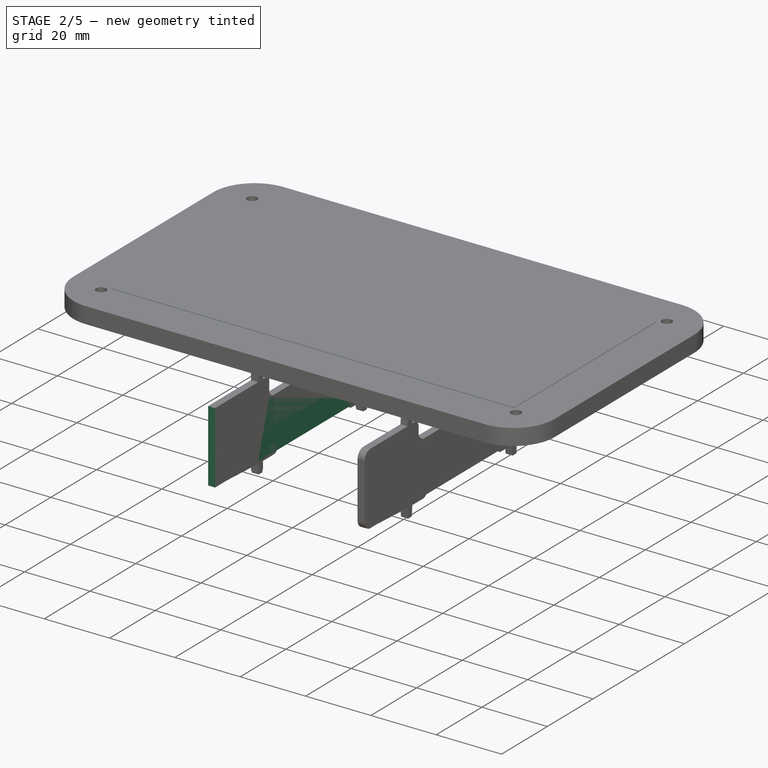
[diagram: stage 2 of 5 — iso view after this stage's code; geometry added in this stage tinted green]
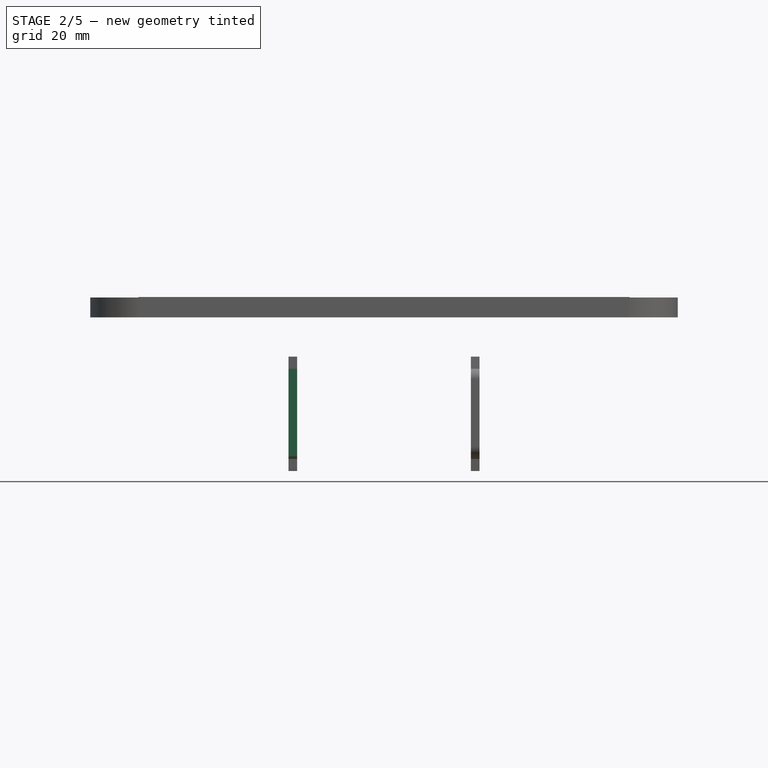
[diagram: stage 2 of 5 — front view after this stage's code; geometry added in this stage tinted green]
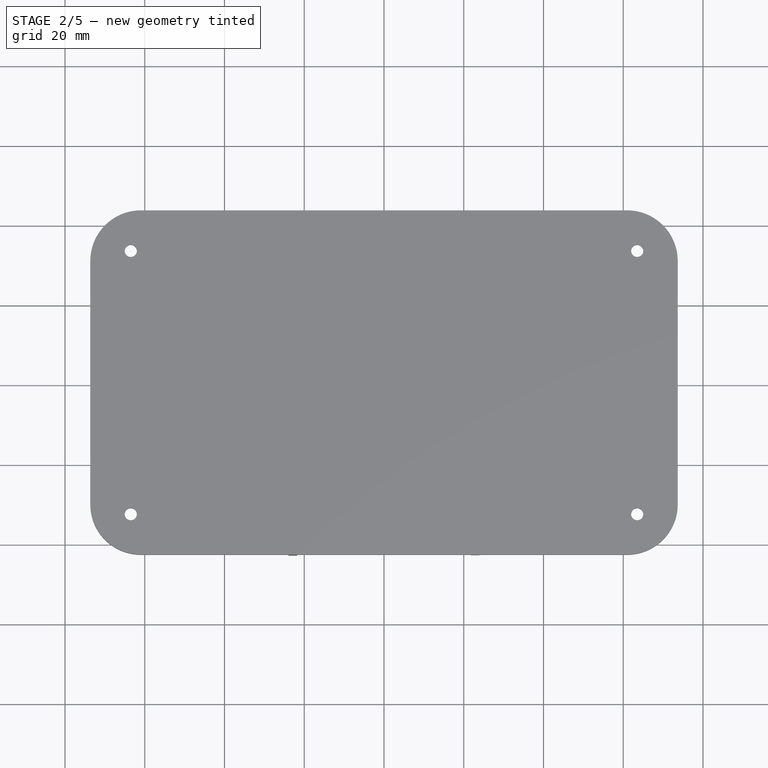
[diagram: stage 2 of 5 — top view after this stage's code; geometry added in this stage tinted green]
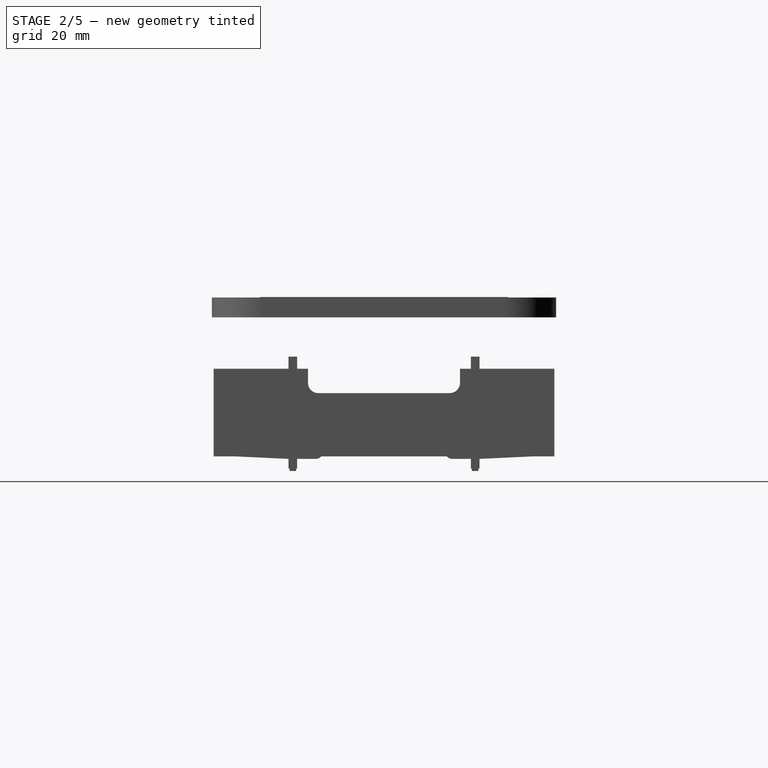
[diagram: stage 2 of 5 — right view after this stage's code; geometry added in this stage tinted green]
FEATURE [Sketcher::SketchObject] Sketch025
  Placement = pos=(-22.86,0,0) rot=(0.57735,0.57735,0.57735;2.0944rad)
  expr: Constraints[53] = 1.8in - 0.08500000000000001in
  sketch-geometry (24):
    g0: LineSegment StartX=-42.7355 StartY=-34.544 StartZ=0 EndX=-23.9395 EndY=-34.544 EndZ=0
    g1: LineSegment StartX=-23.9395 StartY=-34.544 StartZ=0 EndX=-23.9395 EndY=-37.592 EndZ=0
    g2: LineSegment StartX=-23.9395 StartY=-37.592 StartZ=0 EndX=-21.7805 EndY=-37.592 EndZ=0
    g3: LineSegment StartX=-21.7805 StartY=-37.592 StartZ=0 EndX=-21.7805 EndY=-34.544 EndZ=0
    g4: LineSegment StartX=-21.7805 StartY=-34.544 StartZ=0 EndX=21.7805 EndY=-34.544 EndZ=0
    g5: LineSegment StartX=21.7805 StartY=-34.544 StartZ=0 EndX=21.7805 EndY=-37.592 EndZ=0
    g6: LineSegment StartX=21.7805 StartY=-37.592 StartZ=0 EndX=23.9395 EndY=-37.592 EndZ=0
    g7: LineSegment StartX=23.9395 StartY=-37.592 StartZ=0 EndX=23.9395 EndY=-34.544 EndZ=0
    g8: LineSegment StartX=23.9395 StartY=-34.544 StartZ=0 EndX=42.7355 EndY=-34.544 EndZ=0
    g9: LineSegment StartX=42.7355 StartY=-34.544 StartZ=0 EndX=42.7355 EndY=-12.573 EndZ=0
    g10: LineSegment StartX=42.7355 StartY=-12.573 StartZ=0 EndX=23.9395 EndY=-12.573 EndZ=0
    g11: LineSegment StartX=23.9395 StartY=-12.573 StartZ=0 EndX=23.9395 EndY=-9.525 EndZ=0
    g12: LineSegment StartX=23.9395 StartY=-9.525 StartZ=0 EndX=21.7805 EndY=-9.525 EndZ=0
    g13: LineSegment StartX=21.7805 StartY=-9.525 StartZ=0 EndX=21.7805 EndY=-12.573 EndZ=0
    g14: LineSegment StartX=-21.7805 StartY=-12.573 StartZ=0 EndX=-21.7805 EndY=-9.525 EndZ=0
    g15: LineSegment StartX=-21.7805 StartY=-9.525 StartZ=0 EndX=-23.9395 EndY=-9.525 EndZ=0
    g16: LineSegment StartX=-23.9395 StartY=-9.525 StartZ=0 EndX=-23.9395 EndY=-12.573 EndZ=0
    g17: LineSegment StartX=-23.9395 StartY=-12.573 StartZ=0 EndX=-42.7355 EndY=-12.573 EndZ=0
    g18: LineSegment StartX=-42.7355 StartY=-12.573 StartZ=0 EndX=-42.7355 EndY=-34.544 EndZ=0
    g19: LineSegment StartX=19.05 StartY=-12.573 StartZ=0 EndX=19.05 EndY=-18.669 EndZ=0
    g20: LineSegment StartX=19.05 StartY=-18.669 StartZ=0 EndX=-19.05 EndY=-18.669 EndZ=0
    g21: LineSegment StartX=-19.05 StartY=-18.669 StartZ=0 EndX=-19.05 EndY=-12.573 EndZ=0
    g22: LineSegment StartX=-19.05 StartY=-12.573 StartZ=0 EndX=-21.7805 EndY=-12.573 EndZ=0
    g23: LineSegment StartX=21.7805 StartY=-12.573 StartZ=0 EndX=19.05 EndY=-12.573 EndZ=0
  constraints (73):
    c: Coincident(g0,g1)
    c: Vertical(g1)
    c: Coincident(g1,g2)
    c: Horizontal(g2)
    c: Coincident(g2,g3)
    c: Vertical(g3)
    c: Coincident(g3,g4)
    c: Horizontal(g4)
    c: Coincident(g4,g5)
    c: Coincident(g5,g6)
    c: Horizontal(g6)
    c: Coincident(g6,g7)
    c: Vertical(g7)
    c: Coincident(g7,g8)
    c: Horizontal(g8)
    c: Coincident(g8,g9)
    c: Vertical(g9)
    c: Coincident(g9,g10)
    c: Horizontal(g10)
    c: Coincident(g10,g11)
    c: Vertical(g11)
    c: Coincident(g11,g12)
    c: Horizontal(g12)
    c: Coincident(g12,g13)
    c: Vertical(g13)
    c: Coincident(g22,g14)
    c: Coincident(g14,g15)
    c: Horizontal(g15)
    c: Coincident(g15,g16)
    c: Coincident(g16,g17)
    c: Horizontal(g17)
    c: Coincident(g17,g18)
    c: Coincident(g18,g0)
    c: Vertical(g18)
    c: Horizontal(g0)
    c: Vertical(g5)
    c: Vertical(g14)
    c: Vertical(g16)
    c: Equal(g17,g0)
    c: Equal(g8,g10)
    c: Equal(g6,g12)
    c: Equal(g15,g2)
    c: Equal(g1,g3)
    c: Equal(g16,g14)
    c: Equal(g13,g11)
    c: Equal(g5,g7)
    c: DistanceX(g6,g6) = 2.159
    c: DistanceX(g2,g2) = 2.159
    c: DistanceY(g1,g1) = 3.048
    c: DistanceY(g16,g16) = 3.048
    c: DistanceY(g11,g11) = 3.048
    c: DistanceY(g7,g7) = 3.048
    c: Symmetric(g0,g8,g-2)
    c: DistanceX(g4,g4) = 43.561
    c: Symmetric(g3,g4,g-2)
    c: DistanceX(g0,g0) = 18.796
    c: DistanceY(g3,g-1) = 34.544
    c: DistanceY(g9,g9) = 21.971
    c: Coincident(g19,g20)
    c: Coincident(g20,g21)
    c: Horizontal(g20)
    c: Vertical(g19)
    c: Vertical(g21)
    c: Symmetric(g20,g19,g-2)
    c: DistanceX(g20,g20) = 38.1
    c: DistanceY(g20,g22) = 6.096
    c: Coincident(g22,g21)
    c: Coincident(g13,g23)
    c: Coincident(g23,g19)
    c: Horizontal(g23)
    c: Horizontal(g22)
    c: Equal(g22,g23)
    c: Symmetric(g13,g14,g-2)
FEATURE [PartDesign::Pad] Pad019
  Length = 2.159
  Length2 = 100
  Midplane = true
  Placement = pos=(-22.86,0,0) rot=(0.57735,0.57735,0.57735;2.0944rad)
  Sketch = -> Sketch025
  Type = 0
FEATURE [PartDesign::Draft] Draft
  Angle = 5
  Base = -> Fillet002 [Face12]
  NeutralPlane = -> Fillet002 [Face10]
  Placement = pos=(22.86,0,0) rot=(0.57735,0.57735,0.57735;2.0944rad)
  Reversed = true
FEATURE [PartDesign::Draft] Draft001
  Angle = 5
  Base = -> Draft [Face16]
  NeutralPlane = -> Draft [Face18]
  Placement = pos=(22.86,0,0) rot=(0.57735,0.57735,0.57735;2.0944rad)
  Reversed = true
FEATURE [PartDesign::Draft] Draft002
  Angle = 5
  Base = -> Draft001 [Face33]
  NeutralPlane = -> Draft001 [Face34]
  Placement = pos=(22.86,0,0) rot=(0.57735,0.57735,0.57735;2.0944rad)
  Reversed = true
FEATURE [PartDesign::Draft] Draft003
  Angle = 5
  Base = -> Draft002 [Face29]
  NeutralPlane = -> Draft002 [Face27]
  Placement = pos=(22.86,0,0) rot=(0.57735,0.57735,0.57735;2.0944rad)
  Reversed = true
FEATURE [PartDesign::Draft] Draft004
  Angle = 5
  Base = -> Draft003 [Face17]
  NeutralPlane = -> Draft003 [Face19]
  Placement = pos=(22.86,0,0) rot=(0.57735,0.57735,0.57735;2.0944rad)
  Reversed = true
FEATURE [PartDesign::Draft] Draft005
  Angle = 5
  Base = -> Draft004 [Face13]
  NeutralPlane = -> Draft004 [Face11]
  Placement = pos=(22.86,0,0) rot=(0.57735,0.57735,0.57735;2.0944rad)
  Reversed = true
FEATURE [App::DocumentObjectGroup] Group007  label="spacer2"
  Group = -> [Pad019,Fillet001,Draft008,Draft009,Draft010,Draft011,Draft012,Draft013,Draft014,Draft015]
FEATURE [PartDesign::Draft] Draft016
  Angle = 5
  Base = -> Draft005 [Face9]
  NeutralPlane = -> Draft005 [Face11]
  Placement = pos=(22.86,0,0) rot=(0.57735,0.57735,0.57735;2.0944rad)
  Reversed = true
FEATURE [PartDesign::Draft] Draft017
  Angle = 5
  Base = -> Draft016 [Face4]
  NeutralPlane = -> Draft016 [Face1]
  Placement = pos=(22.86,0,0) rot=(0.57735,0.57735,0.57735;2.0944rad)
  Reversed = true
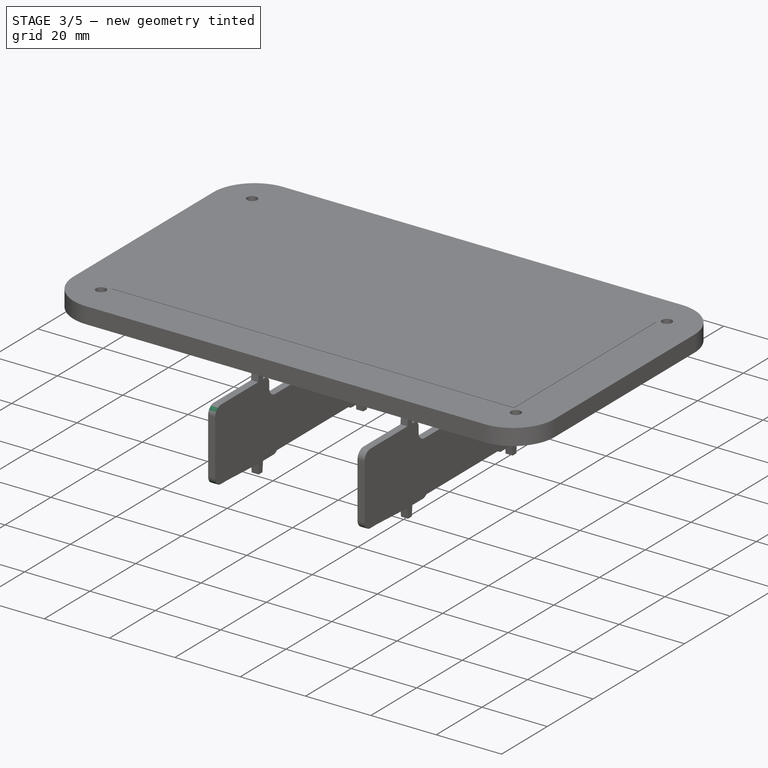
[diagram: stage 3 of 5 — iso view after this stage's code; geometry added in this stage tinted green]
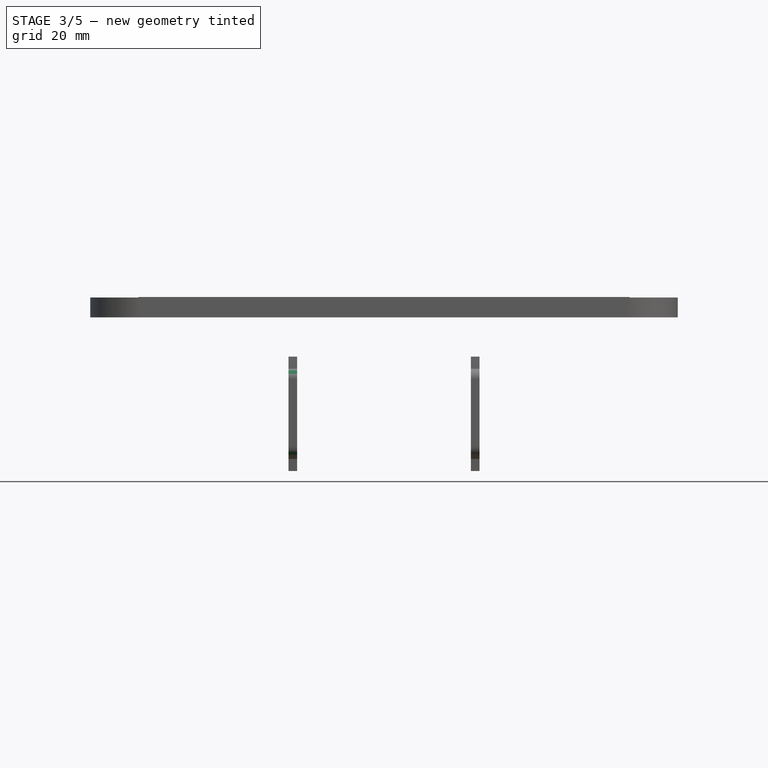
[diagram: stage 3 of 5 — front view after this stage's code; geometry added in this stage tinted green]
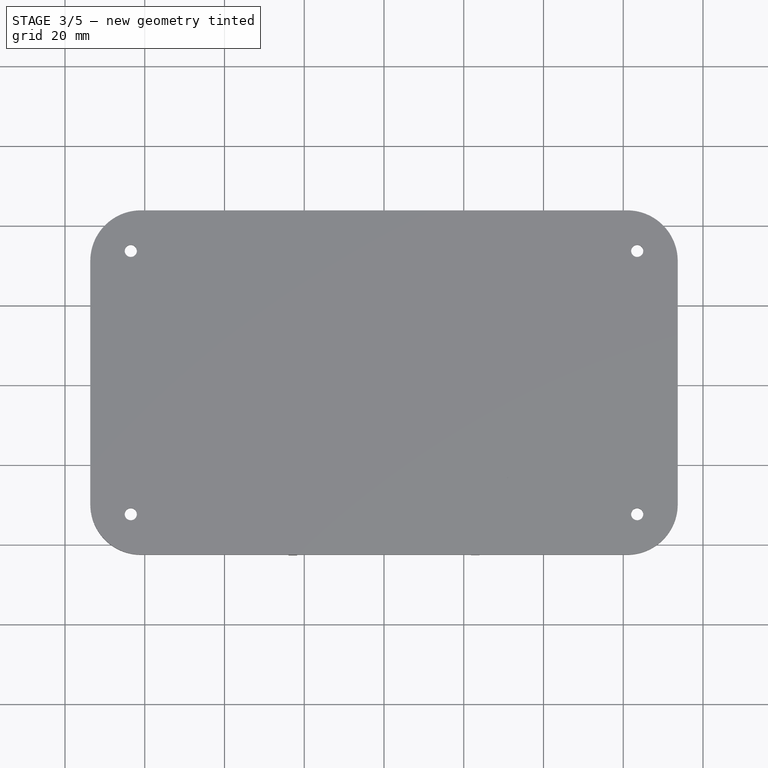
[diagram: stage 3 of 5 — top view after this stage's code; geometry added in this stage tinted green]
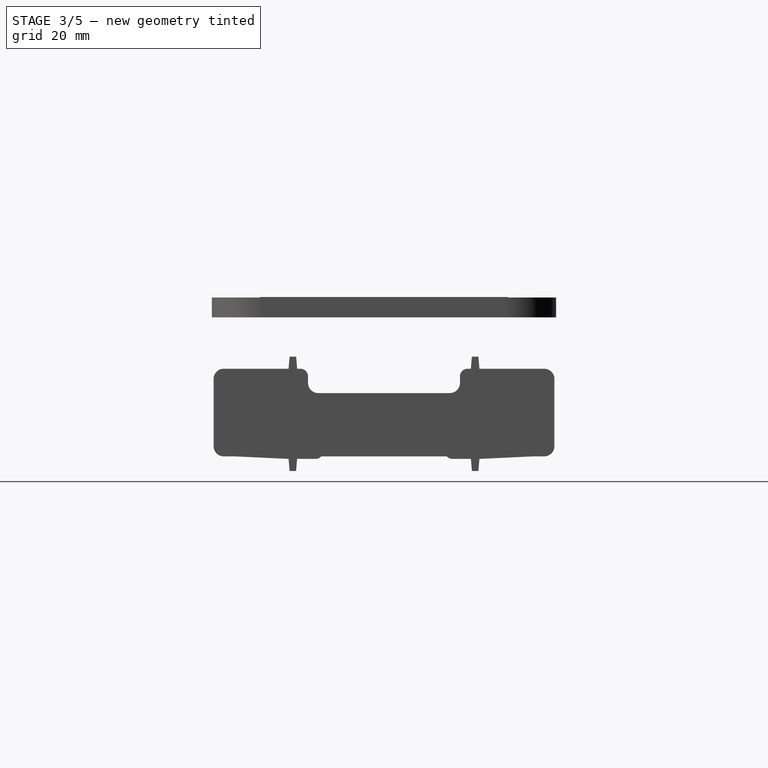
[diagram: stage 3 of 5 — right view after this stage's code; geometry added in this stage tinted green]
FEATURE [App::DocumentObjectGroup] Group005  label="case"
  Group = -> [Pad016,Pocket004,Fillet]
FEATURE [PartDesign::Fillet] Fillet001
  Base = -> Pad019 [Edge47,Edge50,Edge53,Edge44,Edge68,Edge1,Edge29,Edge26]
  Placement = pos=(-22.86,0,0) rot=(0.57735,0.57735,0.57735;2.0944rad)
  Radius = 2.54
FEATURE [PartDesign::Draft] Draft008
  Angle = 5
  Base = -> Fillet001 [Face12]
  NeutralPlane = -> Fillet001 [Face10]
  Placement = pos=(-22.86,0,0) rot=(0.57735,0.57735,0.57735;2.0944rad)
  Reversed = true
FEATURE [PartDesign::Draft] Draft009
  Angle = 5
  Base = -> Draft008 [Face16]
  NeutralPlane = -> Draft008 [Face18]
  Placement = pos=(-22.86,0,0) rot=(0.57735,0.57735,0.57735;2.0944rad)
  Reversed = true
FEATURE [PartDesign::Draft] Draft010
  Angle = 5
  Base = -> Draft009 [Face33]
  NeutralPlane = -> Draft009 [Face34]
  Placement = pos=(-22.86,0,0) rot=(0.57735,0.57735,0.57735;2.0944rad)
  Reversed = true
FEATURE [PartDesign::Draft] Draft011
  Angle = 5
  Base = -> Draft010 [Face29]
  NeutralPlane = -> Draft010 [Face27]
  Placement = pos=(-22.86,0,0) rot=(0.57735,0.57735,0.57735;2.0944rad)
  Reversed = true
FEATURE [PartDesign::Draft] Draft012
  Angle = 5
  Base = -> Draft011 [Face17]
  NeutralPlane = -> Draft011 [Face19]
  Placement = pos=(-22.86,0,0) rot=(0.57735,0.57735,0.57735;2.0944rad)
  Reversed = true
FEATURE [PartDesign::Draft] Draft013
  Angle = 5
  Base = -> Draft012 [Face13]
  NeutralPlane = -> Draft012 [Face11]
  Placement = pos=(-22.86,0,0) rot=(0.57735,0.57735,0.57735;2.0944rad)
  Reversed = true
FEATURE [PartDesign::Draft] Draft014
  Angle = 5
  Base = -> Draft013 [Face9]
  NeutralPlane = -> Draft013 [Face11]
  Placement = pos=(-22.86,0,0) rot=(0.57735,0.57735,0.57735;2.0944rad)
  Reversed = true
FEATURE [PartDesign::Draft] Draft015
  Angle = 5
  Base = -> Draft014 [Face4]
  NeutralPlane = -> Draft014 [Face1]
  Placement = pos=(-22.86,0,0) rot=(0.57735,0.57735,0.57735;2.0944rad)
  Reversed = true
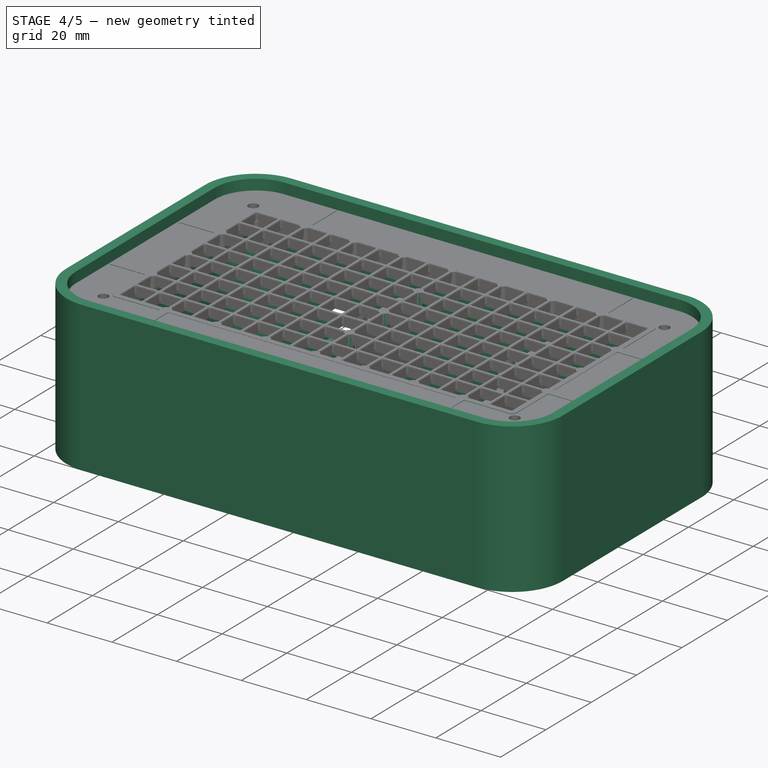
[diagram: stage 4 of 5 — iso view after this stage's code; geometry added in this stage tinted green]
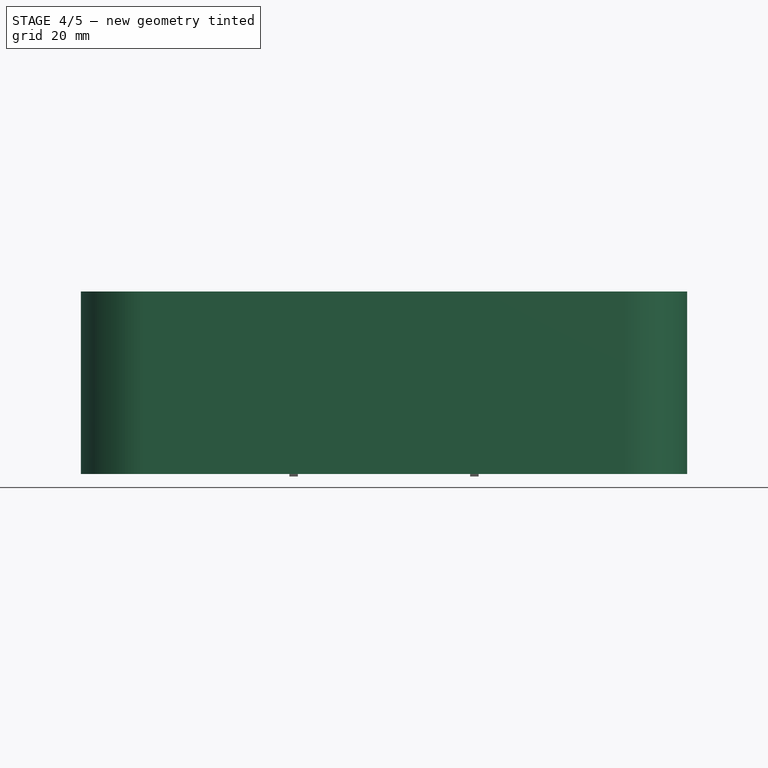
[diagram: stage 4 of 5 — front view after this stage's code; geometry added in this stage tinted green]
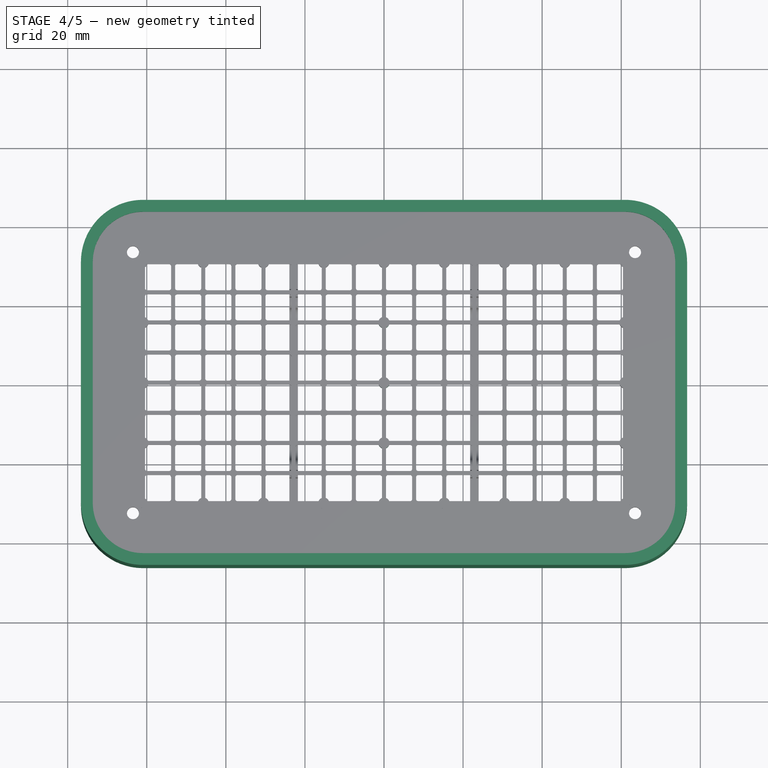
[diagram: stage 4 of 5 — top view after this stage's code; geometry added in this stage tinted green]
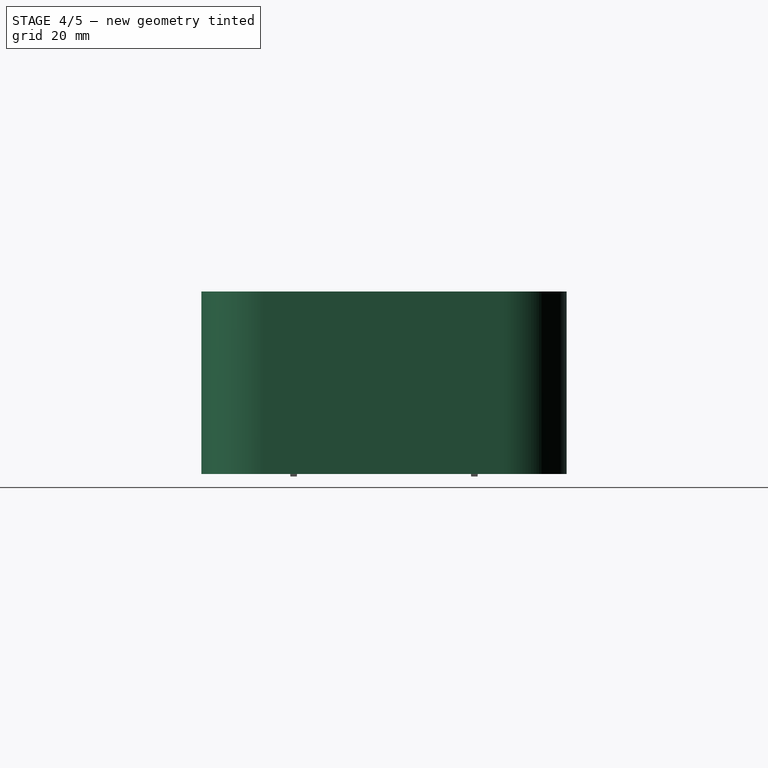
[diagram: stage 4 of 5 — right view after this stage's code; geometry added in this stage tinted green]
FEATURE [Sketcher::SketchObject] Sketch014
  Placement = pos=(0,0,5.4356) rot=(0,0,1;0rad)
  Support = -> Pad012 [Face5]
  expr: Constraints[14] = 2.4in - 0.15in
  expr: Constraints[15] = 1.2in - 0.15in
  sketch-geometry (6):
    g0: LineSegment StartX=-60.579 StartY=30.099 StartZ=0 EndX=-53.721 EndY=30.099 EndZ=0
    g1: LineSegment StartX=-53.721 StartY=30.099 StartZ=0 EndX=-53.721 EndY=23.241 EndZ=0
    g2: LineSegment StartX=-53.721 StartY=23.241 StartZ=0 EndX=-60.579 EndY=23.241 EndZ=0
    g3: LineSegment StartX=-60.579 StartY=23.241 StartZ=0 EndX=-60.579 EndY=30.099 EndZ=0
    g4: LineSegment [constr] StartX=-60.579 StartY=30.099 StartZ=0 EndX=-53.721 EndY=23.241 EndZ=0
    g5: LineSegment [constr] StartX=-53.721 StartY=30.099 StartZ=0 EndX=-57.15 EndY=26.67 EndZ=0
  constraints (17):
    c: Coincident(g0,g1)
    c: Coincident(g1,g2)
    c: Coincident(g2,g3)
    c: Coincident(g3,g0)
    c: Horizontal(g0)
    c: Horizontal(g2)
    c: Vertical(g1)
    c: Vertical(g3)
    c: Equal(g0,g3)
    c: DistanceX(g0,g0) = 6.858
    c: Coincident(g4,g1)
    c: Coincident(g0,g4)
    c: Coincident(g0,g5)
    c: PointOnObject(g5,g4)
    c: DistanceX(g5,g-1) = 57.15
    c: DistanceY(g-1,g5) = 26.67
    c: Angle(g4,g5) = 1.5708
FEATURE [PartDesign::Pocket] Pocket001
  Length = 4.99999
  Placement = pos=(0,0,5.4356) rot=(0,0,1;0rad)
  Sketch = -> Sketch014
  Type = 1
FEATURE [Sketcher::SketchObject] Sketch019
  Placement = pos=(0,0,8.5852) rot=(0,0,1;0rad)
  expr: Constraints[37] = 3.4in + 0.118in + 0.118in
  expr: Constraints[33] = 0.5in + 0.118in
  expr: Constraints[34] = 5.8in + 0.118in + 0.118in
  sketch-geometry (16):
    g0: LineSegment StartX=-60.96 StartY=43.18 StartZ=0 EndX=60.96 EndY=43.18 EndZ=0
    g1: LineSegment StartX=73.66 StartY=30.48 StartZ=0 EndX=73.66 EndY=-30.48 EndZ=0
    g2: LineSegment StartX=60.96 StartY=-43.18 StartZ=0 EndX=-60.96 EndY=-43.18 EndZ=0
    g3: LineSegment StartX=-73.66 StartY=-30.48 StartZ=0 EndX=-73.66 EndY=30.48 EndZ=0
    g4: ArcOfCircle CenterX=-60.96 CenterY=30.48 CenterZ=0 NormalX=0 NormalY=0 NormalZ=1 Radius=12.7 StartAngle=1.5708 EndAngle=3.14159
    g5: ArcOfCircle CenterX=-60.96 CenterY=-30.48 CenterZ=0 NormalX=0 NormalY=0 NormalZ=1 Radius=12.7 StartAngle=3.14159 EndAngle=4.71239
    g6: ArcOfCircle CenterX=60.96 CenterY=-30.48 CenterZ=0 NormalX=0 NormalY=0 NormalZ=1 Radius=12.7 StartAngle=4.71239 EndAngle=6.28319
    g7: ArcOfCircle CenterX=60.96 CenterY=30.48 CenterZ=0 NormalX=0 NormalY=0 NormalZ=1 Radius=12.7 StartAngle=0 EndAngle=1.5708
    g8: LineSegment StartX=-60.96 StartY=46.1772 StartZ=0 EndX=60.96 EndY=46.1772 EndZ=0
    g9: LineSegment StartX=76.6572 StartY=30.48 StartZ=0 EndX=76.6572 EndY=-30.48 EndZ=0
    g10: LineSegment StartX=60.96 StartY=-46.1772 StartZ=0 EndX=-60.96 EndY=-46.1772 EndZ=0
    g11: LineSegment StartX=-76.6572 StartY=-30.48 StartZ=0 EndX=-76.6572 EndY=30.48 EndZ=0
    g12: ArcOfCircle CenterX=-60.96 CenterY=30.48 CenterZ=0 NormalX=0 NormalY=0 NormalZ=1 Radius=15.6972 StartAngle=1.5708 EndAngle=3.14159
    g13: ArcOfCircle CenterX=-60.96 CenterY=-30.48 CenterZ=0 NormalX=0 NormalY=0 NormalZ=1 Radius=15.6972 StartAngle=3.14159 EndAngle=4.71239
    g14: ArcOfCircle CenterX=60.96 CenterY=-30.48 CenterZ=0 NormalX=0 NormalY=0 NormalZ=1 Radius=15.6972 StartAngle=4.71239 EndAngle=6.28319
    g15: ArcOfCircle CenterX=60.96 CenterY=30.48 CenterZ=0 NormalX=0 NormalY=0 NormalZ=1 Radius=15.6972 StartAngle=0 EndAngle=1.5708
  constraints (38):
    c: Horizontal(g0)
    c: Horizontal(g2)
    c: Vertical(g1)
    c: Vertical(g3)
    c: Tangent(g0,g4) = 1.5708
    c: Tangent(g3,g4) = 1.5708
    c: Tangent(g3,g5) = 1.5708
    c: Tangent(g2,g5) = 1.5708
    c: Tangent(g2,g6) = 1.5708
    c: Tangent(g1,g6) = 1.5708
    c: Tangent(g1,g7) = 1.5708
    c: Tangent(g0,g7) = 1.5708
    c: Equal(g5,g6)
    c: Equal(g6,g7)
    c: Radius(g7) = 12.7
    c: DistanceX(g3,g1) = 147.32
    c: Symmetric(g3,g1,g-2)
    c: DistanceY(g2,g0) = 86.36
    c: Symmetric(g0,g2,g-1)
    c: Horizontal(g8)
    c: Horizontal(g10)
    c: Vertical(g9)
    c: Vertical(g11)
    c: Tangent(g8,g12) = 1.5708
    c: Tangent(g11,g12) = 1.5708
    c: Tangent(g11,g13) = 1.5708
    c: Tangent(g10,g13) = 1.5708
    c: Tangent(g10,g14) = 1.5708
    c: Tangent(g9,g14) = 1.5708
    c: Tangent(g9,g15) = 1.5708
    c: Tangent(g8,g15) = 1.5708
    c: Equal(g15,g14)
    c: Equal(g14,g13)
    c: Radius(g12) = 15.6972
    c: DistanceX(g11,g9) = 153.314
    c: Symmetric(g11,g9,g-2)
    c: Symmetric(g8,g10,g-1)
    c: DistanceY(g10,g8) = 92.3544
FEATURE [PartDesign::Pad] Pad016
  Length = 46.1772
  Length2 = 100
  Placement = pos=(0,0,8.5852) rot=(0,0,1;0rad)
  Reversed = true
  Sketch = -> Sketch019
  Type = 0
FEATURE [Sketcher::SketchObject] Sketch026
  ExternalGeometry = -> [Pad016]
  Placement = pos=(0,46.1772,8.5852) rot=(0,0.707107,0.707107;3.14159rad)
  Support = -> Pad016 [Face3]
  sketch-geometry (4):
    g0: LineSegment StartX=27.94 StartY=-30.48 StartZ=0 EndX=48.26 EndY=-30.48 EndZ=0
    g1: LineSegment StartX=48.26 StartY=-30.48 StartZ=0 EndX=48.26 EndY=-40.64 EndZ=0
    g2: LineSegment StartX=48.26 StartY=-40.64 StartZ=0 EndX=27.94 EndY=-40.64 EndZ=0
    g3: LineSegment StartX=27.94 StartY=-40.64 StartZ=0 EndX=27.94 EndY=-30.48 EndZ=0
  constraints (12):
    c: Coincident(g0,g1)
    c: Coincident(g1,g2)
    c: Coincident(g2,g3)
    c: Coincident(g3,g0)
    c: Horizontal(g0)
    c: Horizontal(g2)
    c: Vertical(g1)
    c: Vertical(g3)
    c: DistanceX(g2,g2) = 20.32
    c: DistanceY(g3,g3) = 10.16
    c: DistanceY(g-3,g2) = 5.5372
    c: DistanceX(g1,g-3) = 12.7
FEATURE [PartDesign::Pocket] Pocket004
  Length = 4.99999
  Placement = pos=(0,0,8.5852) rot=(0,0,1;0rad)
  Sketch = -> Sketch026
  Type = 2
FEATURE [PartDesign::LinearPattern] LinearPattern
  Direction = -> Sketch014 [H_Axis]
  Length = 114.3
  Occurrences = 16
  Placement = pos=(0,0,5.4356) rot=(0,0,1;0rad)
FEATURE [PartDesign::LinearPattern] LinearPattern001
  Direction = -> Sketch014 [V_Axis]
  Length = 53.34
  Occurrences = 8
  Placement = pos=(0,0,5.4356) rot=(0,0,1;0rad)
  Reversed = true
FEATURE [PartDesign::MultiTransform] MultiTransform
  Originals = -> [Pocket001]
  Placement = pos=(0,0,5.4356) rot=(0,0,1;0rad)
  Transformations = -> [LinearPattern,LinearPattern001]
FEATURE [Sketcher::SketchObject] Sketch016
  ExternalGeometry = -> [MultiTransform]
  Placement = pos=(0,0,5.4356) rot=(0,0,1;0rad)
  Support = -> MultiTransform [Face4]
  sketch-geometry (8):
    g0: LineSegment StartX=-61.595 StartY=31.115 StartZ=0 EndX=61.595 EndY=31.115 EndZ=0
    g1: LineSegment StartX=61.595 StartY=31.115 StartZ=0 EndX=61.595 EndY=-31.115 EndZ=0
    g2: LineSegment StartX=61.595 StartY=-31.115 StartZ=0 EndX=-61.595 EndY=-31.115 EndZ=0
    g3: LineSegment StartX=-61.595 StartY=-31.115 StartZ=0 EndX=-61.595 EndY=31.115 EndZ=0
    g4: LineSegment StartX=-62.23 StartY=31.75 StartZ=0 EndX=62.23 EndY=31.75 EndZ=0
    g5: LineSegment StartX=62.23 StartY=31.75 StartZ=0 EndX=62.23 EndY=-31.75 EndZ=0
    g6: LineSegment StartX=62.23 StartY=-31.75 StartZ=0 EndX=-62.23 EndY=-31.75 EndZ=0
    g7: LineSegment StartX=-62.23 StartY=-31.75 StartZ=0 EndX=-62.23 EndY=31.75 EndZ=0
  constraints (22):
    c: Coincident(g0,g1)
    c: Coincident(g1,g2)
    c: Coincident(g2,g3)
    c: Coincident(g3,g0)
    c: Horizontal(g0)
    c: Horizontal(g2)
    c: Vertical(g1)
    c: Vertical(g3)
    c: Coincident(g4,g5)
    c: Coincident(g5,g6)
    c: Coincident(g6,g7)
    c: Coincident(g7,g4)
    c: Horizontal(g4)
    c: Horizontal(g6)
    c: Vertical(g5)
    c: Vertical(g7)
    c: DistanceX(g4,g0) = 0.635
    c: DistanceY(g0,g4) = 0.635
    c: Coincident(g0,g-3)
    c: Coincident(g1,g-4)
    c: Symmetric(g5,g6,g-2)
    c: Symmetric(g4,g6,g-1)
FEATURE [PartDesign::Pad] Pad013
  Length = 10.16
  Length2 = 100
  Placement = pos=(0,0,5.4356) rot=(0,0,1;0rad)
  Reversed = true
  Sketch = -> Sketch016
  Type = 0
FEATURE [Sketcher::SketchObject] Sketch017
  Placement = pos=(0,0,5.4356) rot=(0,0,1;0rad)
  Support = -> Pad013 [Face7]
  sketch-geometry (23):
    g0: Circle CenterX=0 CenterY=0 CenterZ=0 NormalX=0 NormalY=0 NormalZ=1 Radius=1.397
    g1: Circle CenterX=0 CenterY=15.24 CenterZ=0 NormalX=0 NormalY=0 NormalZ=1 Radius=1.397
    g2: Circle CenterX=0 CenterY=-15.24 CenterZ=0 NormalX=0 NormalY=0 NormalZ=1 Radius=1.397
    g3: Circle CenterX=60.96 CenterY=15.24 CenterZ=0 NormalX=0 NormalY=0 NormalZ=1 Radius=1.397
    g4: Circle CenterX=60.96 CenterY=0 CenterZ=0 NormalX=0 NormalY=0 NormalZ=1 Radius=1.397
    g5: Circle CenterX=60.96 CenterY=-15.24 CenterZ=0 NormalX=0 NormalY=0 NormalZ=1 Radius=1.397
    g6: Circle CenterX=45.72 CenterY=-30.48 CenterZ=0 NormalX=0 NormalY=0 NormalZ=1 Radius=1.397
    g7: Circle CenterX=30.48 CenterY=-30.48 CenterZ=0 NormalX=0 NormalY=0 NormalZ=1 Radius=1.397
    g8: Circle CenterX=15.24 CenterY=-30.48 CenterZ=0 NormalX=0 NormalY=0 NormalZ=1 Radius=1.397
    g9: Circle CenterX=15.24 CenterY=30.48 CenterZ=0 NormalX=0 NormalY=0 NormalZ=1 Radius=1.397
    g10: Circle CenterX=30.48 CenterY=30.48 CenterZ=0 NormalX=0 NormalY=0 NormalZ=1 Radius=1.397
    g11: Circle CenterX=45.72 CenterY=30.48 CenterZ=0 NormalX=0 NormalY=0 NormalZ=1 Radius=1.397
    g12: Circle CenterX=-30.48 CenterY=30.48 CenterZ=0 NormalX=0 NormalY=0 NormalZ=1 Radius=1.397
    g13: Circle CenterX=-45.72 CenterY=30.48 CenterZ=0 NormalX=0 NormalY=0 NormalZ=1 Radius=1.397
    g14: Circle CenterX=0 CenterY=30.48 CenterZ=0 NormalX=0 NormalY=0 NormalZ=1 Radius=1.397
    g15: Circle CenterX=-45.72 CenterY=-30.48 CenterZ=0 NormalX=0 NormalY=0 NormalZ=1 Radius=1.397
    g16: Circle CenterX=-30.48 CenterY=-30.48 CenterZ=0 NormalX=0 NormalY=0 NormalZ=1 Radius=1.397
    g17: Circle CenterX=-15.24 CenterY=-30.48 CenterZ=0 NormalX=0 NormalY=0 NormalZ=1 Radius=1.397
    g18: Circle CenterX=-60.96 CenterY=15.24 CenterZ=0 NormalX=0 NormalY=0 NormalZ=1 Radius=1.397
    g19: Circle CenterX=-60.96 CenterY=0 CenterZ=0 NormalX=0 NormalY=0 NormalZ=1 Radius=1.397
    g20: Circle CenterX=-60.96 CenterY=-15.24 CenterZ=0 NormalX=0 NormalY=0 NormalZ=1 Radius=1.397
    g21: Circle CenterX=-15.24 CenterY=30.48 CenterZ=0 NormalX=0 NormalY=0 NormalZ=1 Radius=1.397
    g22: Circle CenterX=0 CenterY=-30.48 CenterZ=0 NormalX=0 NormalY=0 NormalZ=1 Radius=1.397
  constraints (60):
    c: Symmetric(g21,g9,g-2)
    c: Symmetric(g12,g10,g-2)
    c: Symmetric(g13,g11,g-2)
    c: Symmetric(g17,g8,g-2)
    c: Symmetric(g16,g7,g-2)
    c: Symmetric(g6,g15,g-2)
    c: Symmetric(g18,g20,g-1)
    c: Symmetric(g3,g5,g-1)
    c: PointOnObject(g14,g-2)
    c: PointOnObject(g22,g-2)
    c: PointOnObject(g19,g-1)
    c: DistanceY(g21,g14) = 0
    c: DistanceY(g21,g12) = 0
    c: DistanceY(g13,g12) = 0
    c: DistanceY(g22,g17) = 0
    c: DistanceY(g17,g16) = 0
    c: DistanceY(g16,g15) = 0
    c: DistanceX(g19,g20) = 0
    c: DistanceX(g5,g4) = 0
    c: DistanceY(g-1,g18) = 15.24
    c: DistanceY(g4,g3) = 15.24
    c: DistanceX(g21,g14) = 15.24
    c: DistanceX(g12,g21) = 15.24
    c: DistanceX(g13,g12) = 15.24
    c: DistanceX(g17,g22) = 15.24
    c: DistanceX(g16,g17) = 15.24
    c: DistanceX(g15,g16) = 15.24
    c: PointOnObject(g4,g-1)
    c: Symmetric(g14,g22,g-1)
    c: Symmetric(g19,g4,g-2)
    c: DistanceY(g-1,g14) = 30.48
    c: DistanceX(g-1,g4) = 60.96
    c: Symmetric(g2,g1,g-1)
    c: PointOnObject(g0,g-1)
    c: DistanceX(g2,g0) = 0
    c: PointOnObject(g0,g-2)
    c: DistanceY(g-1,g1) = 15.24
    c: Equal(g18,g19)
    c: Equal(g19,g20)
    c: Equal(g20,g15)
    c: Equal(g15,g16)
    c: Equal(g16,g17)
    c: Equal(g17,g22)
    c: Equal(g22,g8)
    c: Equal(g8,g7)
    c: Equal(g7,g6)
    c: Equal(g6,g5)
    c: Equal(g5,g4)
    c: Equal(g4,g3)
    c: Equal(g3,g11)
    c: Equal(g11,g10)
    c: Equal(g10,g9)
    c: Equal(g9,g14)
    c: Equal(g14,g21)
    c: Equal(g21,g12)
    c: Equal(g12,g13)
    c: Equal(g13,g1)
    c: Equal(g1,g0)
    c: Equal(g0,g2)
    c: Radius(g0) = 1.397
FEATURE [PartDesign::Pad] Pad014
  Length = 6.604
  Length2 = 100
  Placement = pos=(0,0,5.4356) rot=(0,0,1;0rad)
  Reversed = true
  Sketch = -> Sketch017
  Type = 0
FEATURE [Sketcher::SketchObject] Sketch020
  Placement = pos=(0,0,5.4356) rot=(0,0,1;0rad)
  Support = -> Pad014 [Face132]
  sketch-geometry (32):
    g0: LineSegment StartX=60.96 StartY=-13.97 StartZ=0 EndX=73.152 EndY=-13.97 EndZ=0
    g1: LineSegment StartX=73.152 StartY=-13.97 StartZ=0 EndX=73.152 EndY=-16.51 EndZ=0
    g2: LineSegment StartX=73.152 StartY=-16.51 StartZ=0 EndX=60.96 EndY=-16.51 EndZ=0
    g3: LineSegment StartX=60.96 StartY=-16.51 StartZ=0 EndX=60.96 EndY=-13.97 EndZ=0
    g4: LineSegment StartX=60.96 StartY=16.51 StartZ=0 EndX=73.152 EndY=16.51 EndZ=0
    g5: LineSegment StartX=73.152 StartY=16.51 StartZ=0 EndX=73.152 EndY=13.97 EndZ=0
    g6: LineSegment StartX=73.152 StartY=13.97 StartZ=0 EndX=60.96 EndY=13.97 EndZ=0
    g7: LineSegment StartX=60.96 StartY=13.97 StartZ=0 EndX=60.96 EndY=16.51 EndZ=0
    g8: LineSegment StartX=-60.96 StartY=16.51 StartZ=0 EndX=-73.152 EndY=16.51 EndZ=0
    g9: LineSegment StartX=-73.152 StartY=16.51 StartZ=0 EndX=-73.152 EndY=13.97 EndZ=0
    g10: LineSegment StartX=-73.152 StartY=13.97 StartZ=0 EndX=-60.96 EndY=13.97 EndZ=0
    g11: LineSegment StartX=-60.96 StartY=13.97 StartZ=0 EndX=-60.96 EndY=16.51 EndZ=0
    g12: LineSegment StartX=-60.96 StartY=-13.97 StartZ=0 EndX=-73.152 EndY=-13.97 EndZ=0
    g13: LineSegment StartX=-73.152 StartY=-13.97 StartZ=0 EndX=-73.152 EndY=-16.51 EndZ=0
    g14: LineSegment StartX=-73.152 StartY=-16.51 StartZ=0 EndX=-60.96 EndY=-16.51 EndZ=0
    g15: LineSegment StartX=-60.96 StartY=-16.51 StartZ=0 EndX=-60.96 EndY=-13.97 EndZ=0
    g16: LineSegment StartX=-46.99 StartY=-30.48 StartZ=0 EndX=-44.45 EndY=-30.48 EndZ=0
    g17: LineSegment StartX=-44.45 StartY=-30.48 StartZ=0 EndX=-44.45 EndY=-42.672 EndZ=0
    g18: LineSegment StartX=-44.45 StartY=-42.672 StartZ=0 EndX=-46.99 EndY=-42.672 EndZ=0
    g19: LineSegment StartX=-46.99 StartY=-42.672 StartZ=0 EndX=-46.99 EndY=-30.48 EndZ=0
    g20: LineSegment StartX=44.45 StartY=-30.48 StartZ=0 EndX=46.99 EndY=-30.48 EndZ=0
    g21: LineSegment StartX=46.99 StartY=-30.48 StartZ=0 EndX=46.99 EndY=-42.672 EndZ=0
    g22: LineSegment StartX=46.99 StartY=-42.672 StartZ=0 EndX=44.45 EndY=-42.672 EndZ=0
    g23: LineSegment StartX=44.45 StartY=-42.672 StartZ=0 EndX=44.45 EndY=-30.48 EndZ=0
    g24: LineSegment StartX=-46.99 StartY=42.672 StartZ=0 EndX=-44.45 EndY=42.672 EndZ=0
    g25: LineSegment StartX=-44.45 StartY=42.672 StartZ=0 EndX=-44.45 EndY=30.48 EndZ=0
    g26: LineSegment StartX=-44.45 StartY=30.48 StartZ=0 EndX=-46.99 EndY=30.48 EndZ=0
    g27: LineSegment StartX=-46.99 StartY=30.48 StartZ=0 EndX=-46.99 EndY=42.672 EndZ=0
    g28: LineSegment StartX=44.45 StartY=42.672 StartZ=0 EndX=46.99 EndY=42.672 EndZ=0
    g29: LineSegment StartX=46.99 StartY=42.672 StartZ=0 EndX=46.99 EndY=30.48 EndZ=0
    g30: LineSegment StartX=46.99 StartY=30.48 StartZ=0 EndX=44.45 EndY=30.48 EndZ=0
    g31: LineSegment StartX=44.45 StartY=30.48 StartZ=0 EndX=44.45 EndY=42.672 EndZ=0
  constraints (108):
    c: Coincident(g0,g1)
    c: Coincident(g1,g2)
    c: Coincident(g2,g3)
    c: Coincident(g3,g0)
    c: Horizontal(g0)
    c: Horizontal(g2)
    c: Vertical(g1)
    c: Vertical(g3)
    c: Coincident(g4,g5)
    c: Coincident(g5,g6)
    c: Coincident(g6,g7)
    c: Coincident(g7,g4)
    c: Horizontal(g4)
    c: Horizontal(g6)
    c: Vertical(g5)
    c: Vertical(g7)
    c: Coincident(g8,g9)
    c: Coincident(g9,g10)
    c: Coincident(g10,g11)
    c: Coincident(g11,g8)
    c: Horizontal(g8)
    c: Horizontal(g10)
    c: Vertical(g9)
    c: Vertical(g11)
    c: Coincident(g12,g13)
    c: Coincident(g13,g14)
    c: Coincident(g14,g15)
    c: Coincident(g15,g12)
    c: Horizontal(g12)
    c: Horizontal(g14)
    c: Vertical(g13)
    c: Vertical(g15)
    c: Coincident(g16,g17)
    c: Coincident(g17,g18)
    c: Coincident(g18,g19)
    c: Coincident(g19,g16)
    c: Horizontal(g16)
    c: Horizontal(g18)
    c: Vertical(g17)
    c: Vertical(g19)
    c: Coincident(g20,g21)
    c: Coincident(g21,g22)
    c: Coincident(g22,g23)
    c: Coincident(g23,g20)
    c: Horizontal(g20)
    c: Horizontal(g22)
    c: Vertical(g21)
    c: Vertical(g23)
    c: Coincident(g24,g25)
    c: Coincident(g25,g26)
    c: Coincident(g26,g27)
    c: Coincident(g27,g24)
    c: Horizontal(g24)
    c: Horizontal(g26)
    c: Vertical(g25)
    c: Vertical(g27)
    c: Coincident(g28,g29)
    c: Coincident(g29,g30)
    c: Coincident(g30,g31)
    c: Coincident(g31,g28)
    c: Horizontal(g28)
    c: Horizontal(g30)
    c: Vertical(g29)
    c: Vertical(g31)
    c: Equal(g27,g25)
    c: Equal(g25,g31)
    c: Equal(g31,g29)
    c: Equal(g29,g4)
    c: Equal(g4,g6)
    c: Equal(g6,g0)
    c: Equal(g0,g2)
    c: Equal(g2,g21)
    c: Equal(g21,g23)
    c: Equal(g23,g17)
    c: Equal(g17,g19)
    c: Equal(g19,g14)
    c: Equal(g14,g12)
    c: Equal(g12,g10)
    c: Equal(g10,g8)
    c: Equal(g24,g26)
    c: Equal(g26,g28)
    c: Equal(g28,g30)
    c: Equal(g30,g7)
    c: Equal(g7,g5)
    c: Equal(g5,g1)
    c: Equal(g1,g3)
    c: Equal(g3,g20)
    c: Equal(g20,g22)
    c: Equal(g22,g18)
    c: Equal(g18,g16)
    c: Equal(g16,g15)
    c: Equal(g15,g13)
    c: Equal(g13,g9)
    c: Equal(g9,g11)
    c: Symmetric(g24,g28,g-2)
    c: Symmetric(g17,g22,g-2)
    c: Symmetric(g12,g9,g-1)
    c: Symmetric(g5,g0,g-1)
    c: DistanceY(g9,g5) = 0
    c: Symmetric(g9,g5,g-2)
    c: DistanceX(g17,g24) = 0
    c: Symmetric(g24,g17,g-1)
    c: DistanceX(g24,g24) = 2.54
    c: DistanceX(g24,g28) = 88.9
    c: DistanceY(g12,g9) = 27.94
    c: DistanceX(g10,g6) = 121.92
    c: DistanceY(g16,g25) = 60.96
    c: DistanceX(g8,g8) = 12.192
FEATURE [PartDesign::Pad] Pad017
  Length = 10.16
  Length2 = 100
  Placement = pos=(0,0,5.4356) rot=(0,0,1;0rad)
  Reversed = true
  Sketch = -> Sketch020
  Type = 0
FEATURE [PartDesign::Fillet] Fillet003
  Base = -> Pad017 [Edge2441,Edge2401,Edge2379,Edge2345]
  Placement = pos=(0,0,5.4356) rot=(0,0,1;0rad)
  Radius = 1.27
FEATURE [PartDesign::Fillet] Fillet004
  Base = -> Fillet003 [Edge2004,Edge2483,Edge2444,Edge2423]
  Placement = pos=(0,0,5.4356) rot=(0,0,1;0rad)
  Radius = 1.016
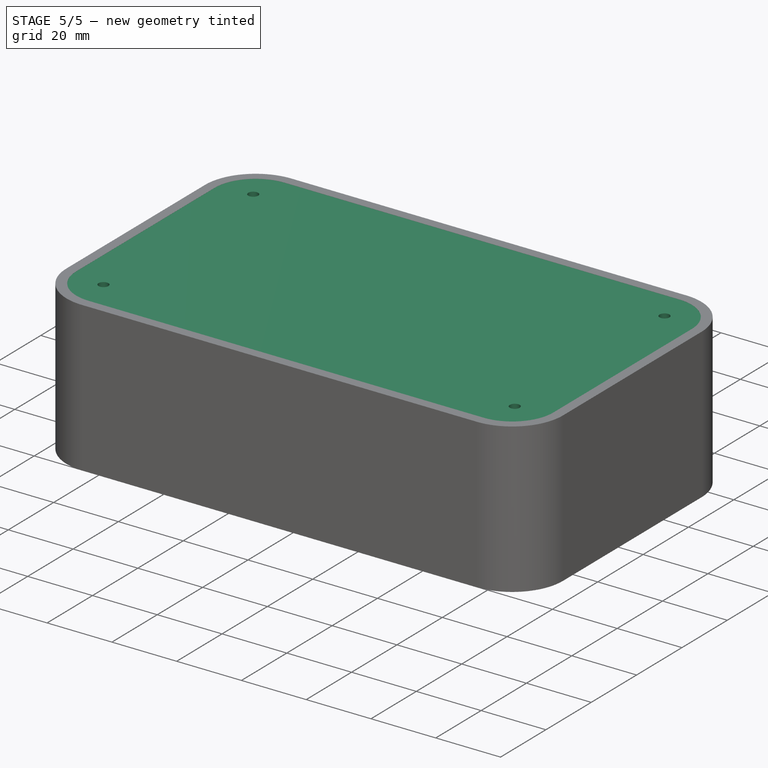
[diagram: stage 5 of 5 — iso view after this stage's code; geometry added in this stage tinted green]
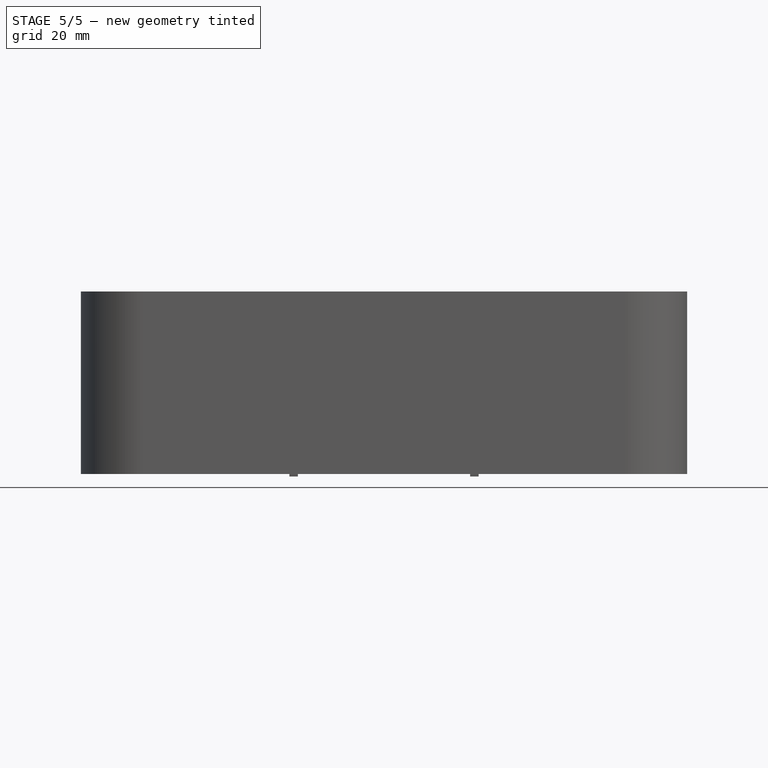
[diagram: stage 5 of 5 — front view after this stage's code; geometry added in this stage tinted green]
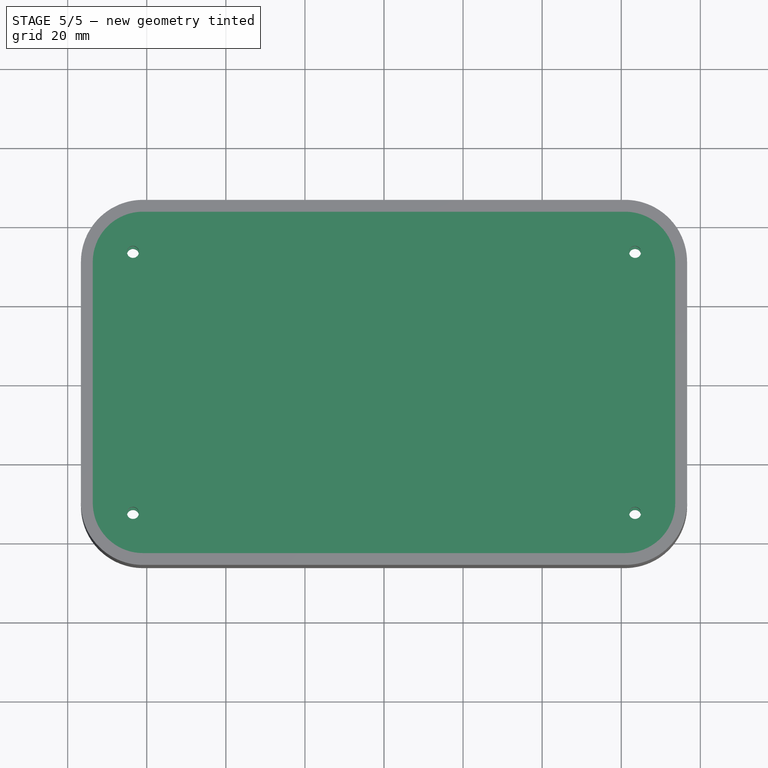
[diagram: stage 5 of 5 — top view after this stage's code; geometry added in this stage tinted green]
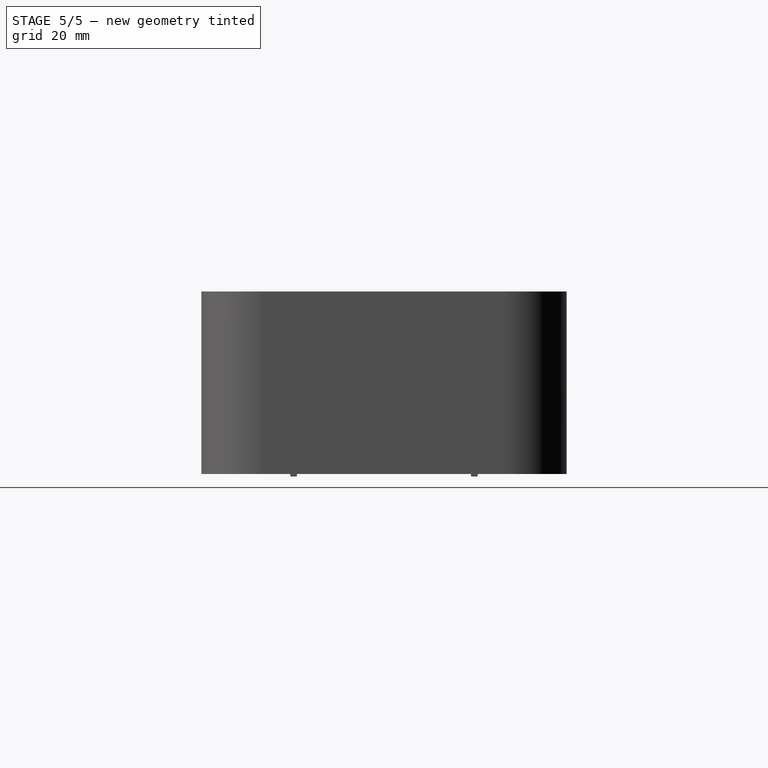
[diagram: stage 5 of 5 — right view after this stage's code; geometry added in this stage tinted green]
FEATURE [App::VRMLObject] ultim8x8
  Placement = pos=(-30.48,0,0) rot=(0,0,1;0rad)
  Resources = ultim8x8/shapes3D/Cap_0805_2012.wrl | ultim8x8/shapes3D/cap_1210_3225M.wrl | ultim8x8/shapes3D/LED_SMD_APA102.wrl
FEATURE [App::VRMLObject] ultim8x8001  label="ultim8x009"
  Placement = pos=(30.48,0,0) rot=(0,0,1;0rad)
  Resources = ultim8x8001/shapes3D/Cap_0805_2012.wrl | ultim8x8001/shapes3D/cap_1210_3225M.wrl | ultim8x8001/shapes3D/LED_SMD_APA102.wrl
FEATURE [App::VRMLObject] ultim_bus_snapped
  Placement = pos=(0,0,-11.6002) rot=(0,1,0;3.14159rad)
  Resources = ultim_bus_snapped/shapes3D/r_0805.wrl
FEATURE [Part::Feature] Part__Feature  label="M0"
  Placement = pos=(-38.1,0,-17.8181) rot=(0.707107,-0.707107,0;3.14159rad)
  shape: bbox 22.93 x 51.59 x 14.94 mm, 1313 faces (baked)
FEATURE [Part::Feature] Part__Feature001  label="cap_elco_R100_D200_H460"
  Placement = pos=(-15.24,22.86,-10.668) rot=(1,0,0;3.14159rad)
  shape: bbox 6.114 x 6.114 x 15.1 mm, 124 faces (baked)
FEATURE [Part::Feature] Part__Feature002  label="User Library-PBS2-16_PBS2_1"
  shape: bbox 2 x 2 x 4.3 mm, 10 faces (baked)
FEATURE [Part::Feature] Part__Feature003  label="User Library-PBS2-16_PBS2_2"
  Placement = pos=(1.75,2.65,0) rot=(0,0,1;0rad)
  shape: bbox 0.7 x 0.7 x 4.3 mm, 10 faces (baked)
FEATURE [Part::Feature] Part__Feature004  label="User Library-PBS2-16_PBS2_3"
  Placement = pos=(2.75,2.75,4.3) rot=(0,0,1;0rad)
  shape: bbox 0.5 x 0.5 x 3.15 mm, 10 faces (baked)
FEATURE [Part::Feature] Part__Feature005  label="User Library-PBS2-16_PBS2_004"
  Placement = pos=(2,0,0) rot=(0,0,1;0rad)
  shape: bbox 2 x 2 x 4.3 mm, 10 faces (baked)
FEATURE [Part::Feature] Part__Feature006  label="User Library-PBS2-16_PBS2_005"
  Placement = pos=(3.75,2.65,0) rot=(0,0,1;0rad)
  shape: bbox 0.7 x 0.7 x 4.3 mm, 10 faces (baked)
FEATURE [Part::Feature] Part__Feature007  label="User Library-PBS2-16_PBS2_006"
  Placement = pos=(4.75,2.75,4.3) rot=(0,0,1;0rad)
  shape: bbox 0.5 x 0.5 x 3.15 mm, 10 faces (baked)
FEATURE [Part::Feature] Part__Feature008  label="User Library-PBS2-16_PBS2_007"
  Placement = pos=(4,0,0) rot=(0,0,1;0rad)
  shape: bbox 2 x 2 x 4.3 mm, 10 faces (baked)
FEATURE [Part::Feature] Part__Feature009  label="User Library-PBS2-16_PBS2_008"
  Placement = pos=(5.75,2.65,0) rot=(0,0,1;0rad)
  shape: bbox 0.7 x 0.7 x 4.3 mm, 10 faces (baked)
FEATURE [Part::Feature] Part__Feature010  label="User Library-PBS2-16_PBS2_009"
  Placement = pos=(6.75,2.75,4.3) rot=(0,0,1;0rad)
  shape: bbox 0.5 x 0.5 x 3.15 mm, 10 faces (baked)
FEATURE [Part::Feature] Part__Feature011  label="User Library-PBS2-16_PBS2_010"
  Placement = pos=(6,0,0) rot=(0,0,1;0rad)
  shape: bbox 2 x 2 x 4.3 mm, 10 faces (baked)
FEATURE [Part::Feature] Part__Feature012  label="User Library-PBS2-16_PBS2_011"
  Placement = pos=(7.75,2.65,0) rot=(0,0,1;0rad)
  shape: bbox 0.7 x 0.7 x 4.3 mm, 10 faces (baked)
FEATURE [Part::Feature] Part__Feature013  label="User Library-PBS2-16_PBS2_012"
  Placement = pos=(8.75,2.75,4.3) rot=(0,0,1;0rad)
  shape: bbox 0.5 x 0.5 x 3.15 mm, 10 faces (baked)
FEATURE [Part::Feature] Part__Feature014  label="User Library-PBS2-16_PBS2_013"
  Placement = pos=(8,0,0) rot=(0,0,1;0rad)
  shape: bbox 2 x 2 x 4.3 mm, 10 faces (baked)
FEATURE [Part::Feature] Part__Feature015  label="User Library-PBS2-16_PBS2_014"
  Placement = pos=(9.75,2.65,0) rot=(0,0,1;0rad)
  shape: bbox 0.7 x 0.7 x 4.3 mm, 10 faces (baked)
FEATURE [Part::Feature] Part__Feature016  label="User Library-PBS2-16_PBS2_015"
  Placement = pos=(10.75,2.75,4.3) rot=(0,0,1;0rad)
  shape: bbox 0.5 x 0.5 x 3.15 mm, 10 faces (baked)
FEATURE [Part::Feature] Part__Feature017  label="User Library-PBS2-16_PBS2_016"
  Placement = pos=(10,0,0) rot=(0,0,1;0rad)
  shape: bbox 2 x 2 x 4.3 mm, 10 faces (baked)
FEATURE [Part::Feature] Part__Feature018  label="User Library-PBS2-16_PBS2_017"
  Placement = pos=(11.75,2.65,0) rot=(0,0,1;0rad)
  shape: bbox 0.7 x 0.7 x 4.3 mm, 10 faces (baked)
FEATURE [Part::Feature] Part__Feature019  label="User Library-PBS2-16_PBS2_018"
  Placement = pos=(12.75,2.75,4.3) rot=(0,0,1;0rad)
  shape: bbox 0.5 x 0.5 x 3.15 mm, 10 faces (baked)
FEATURE [Part::Feature] Part__Feature020  label="User Library-PBS2-16_PBS2_019"
  Placement = pos=(12,0,0) rot=(0,0,1;0rad)
  shape: bbox 2 x 2 x 4.3 mm, 10 faces (baked)
FEATURE [Part::Feature] Part__Feature021  label="User Library-PBS2-16_PBS2_020"
  Placement = pos=(13.75,2.65,0) rot=(0,0,1;0rad)
  shape: bbox 0.7 x 0.7 x 4.3 mm, 10 faces (baked)
FEATURE [Part::Feature] Part__Feature022  label="User Library-PBS2-16_PBS2_021"
  Placement = pos=(14.75,2.75,4.3) rot=(0,0,1;0rad)
  shape: bbox 0.5 x 0.5 x 3.15 mm, 10 faces (baked)
FEATURE [Part::Feature] Part__Feature023  label="User Library-PBS2-16_PBS2_022"
  Placement = pos=(14,0,0) rot=(0,0,1;0rad)
  shape: bbox 2 x 2 x 4.3 mm, 10 faces (baked)
FEATURE [Part::Feature] Part__Feature024  label="User Library-PBS2-16_PBS2_023"
  Placement = pos=(15.75,2.65,0) rot=(0,0,1;0rad)
  shape: bbox 0.7 x 0.7 x 4.3 mm, 10 faces (baked)
FEATURE [Part::Feature] Part__Feature025  label="User Library-PBS2-16_PBS2_024"
  Placement = pos=(16.75,2.75,4.3) rot=(0,0,1;0rad)
  shape: bbox 0.5 x 0.5 x 3.15 mm, 10 faces (baked)
FEATURE [Part::Feature] Part__Feature026  label="User Library-PBS2-16_PBS2_025"
  Placement = pos=(16,0,0) rot=(0,0,1;0rad)
  shape: bbox 2 x 2 x 4.3 mm, 10 faces (baked)
FEATURE [Part::Feature] Part__Feature027  label="User Library-PBS2-16_PBS2_026"
  Placement = pos=(17.75,2.65,0) rot=(0,0,1;0rad)
  shape: bbox 0.7 x 0.7 x 4.3 mm, 10 faces (baked)
FEATURE [Part::Feature] Part__Feature028  label="User Library-PBS2-16_PBS2_027"
  Placement = pos=(18.75,2.75,4.3) rot=(0,0,1;0rad)
  shape: bbox 0.5 x 0.5 x 3.15 mm, 10 faces (baked)
FEATURE [Part::Feature] Part__Feature029  label="User Library-PBS2-16_PBS2_028"
  Placement = pos=(18,0,0) rot=(0,0,1;0rad)
  shape: bbox 2 x 2 x 4.3 mm, 10 faces (baked)
FEATURE [Part::Feature] Part__Feature030  label="User Library-PBS2-16_PBS2_029"
  Placement = pos=(19.75,2.65,0) rot=(0,0,1;0rad)
  shape: bbox 0.7 x 0.7 x 4.3 mm, 10 faces (baked)
FEATURE [Part::Feature] Part__Feature031  label="User Library-PBS2-16_PBS2_030"
  Placement = pos=(20.75,2.75,4.3) rot=(0,0,1;0rad)
  shape: bbox 0.5 x 0.5 x 3.15 mm, 10 faces (baked)
FEATURE [Part::Feature] Part__Feature032  label="User Library-PBS2-16_PBS2_031"
  Placement = pos=(20,0,0) rot=(0,0,1;0rad)
  shape: bbox 2 x 2 x 4.3 mm, 10 faces (baked)
FEATURE [Part::Feature] Part__Feature033  label="User Library-PBS2-16_PBS2_032"
  Placement = pos=(21.75,2.65,0) rot=(0,0,1;0rad)
  shape: bbox 0.7 x 0.7 x 4.3 mm, 10 faces (baked)
FEATURE [Part::Feature] Part__Feature034  label="User Library-PBS2-16_PBS2_033"
  Placement = pos=(22.75,2.75,4.3) rot=(0,0,1;0rad)
  shape: bbox 0.5 x 0.5 x 3.15 mm, 10 faces (baked)
FEATURE [Part::Feature] Part__Feature035  label="User Library-PBS2-16_PBS2_034"
  Placement = pos=(22,0,0) rot=(0,0,1;0rad)
  shape: bbox 2 x 2 x 4.3 mm, 10 faces (baked)
FEATURE [Part::Feature] Part__Feature036  label="User Library-PBS2-16_PBS2_035"
  Placement = pos=(23.75,2.65,0) rot=(0,0,1;0rad)
  shape: bbox 0.7 x 0.7 x 4.3 mm, 10 faces (baked)
FEATURE [Part::Feature] Part__Feature037  label="User Library-PBS2-16_PBS2_036"
  Placement = pos=(24.75,2.75,4.3) rot=(0,0,1;0rad)
  shape: bbox 0.5 x 0.5 x 3.15 mm, 10 faces (baked)
FEATURE [Part::Feature] Part__Feature038  label="User Library-PBS2-16_PBS2_037"
  Placement = pos=(24,0,0) rot=(0,0,1;0rad)
  shape: bbox 2 x 2 x 4.3 mm, 10 faces (baked)
FEATURE [Part::Feature] Part__Feature039  label="User Library-PBS2-16_PBS2_038"
  Placement = pos=(25.75,2.65,0) rot=(0,0,1;0rad)
  shape: bbox 0.7 x 0.7 x 4.3 mm, 10 faces (baked)
FEATURE [Part::Feature] Part__Feature040  label="User Library-PBS2-16_PBS2_039"
  Placement = pos=(26.75,2.75,4.3) rot=(0,0,1;0rad)
  shape: bbox 0.5 x 0.5 x 3.15 mm, 10 faces (baked)
FEATURE [Part::Feature] Part__Feature041  label="User Library-PBS2-16_PBS2_040"
  Placement = pos=(26,0,0) rot=(0,0,1;0rad)
  shape: bbox 2 x 2 x 4.3 mm, 10 faces (baked)
FEATURE [Part::Feature] Part__Feature042  label="User Library-PBS2-16_PBS2_041"
  Placement = pos=(27.75,2.65,0) rot=(0,0,1;0rad)
  shape: bbox 0.7 x 0.7 x 4.3 mm, 10 faces (baked)
FEATURE [Part::Feature] Part__Feature043  label="User Library-PBS2-16_PBS2_042"
  Placement = pos=(28.75,2.75,4.3) rot=(0,0,1;0rad)
  shape: bbox 0.5 x 0.5 x 3.15 mm, 10 faces (baked)
FEATURE [Part::Feature] Part__Feature044  label="User Library-PBS2-16_PBS2_043"
  Placement = pos=(28,0,0) rot=(0,0,1;0rad)
  shape: bbox 2 x 2 x 4.3 mm, 10 faces (baked)
FEATURE [Part::Feature] Part__Feature045  label="User Library-PBS2-16_PBS2_044"
  Placement = pos=(29.75,2.65,0) rot=(0,0,1;0rad)
  shape: bbox 0.7 x 0.7 x 4.3 mm, 10 faces (baked)
FEATURE [Part::Feature] Part__Feature046  label="User Library-PBS2-16_PBS2_045"
  Placement = pos=(30.75,2.75,4.3) rot=(0,0,1;0rad)
  shape: bbox 0.5 x 0.5 x 3.15 mm, 10 faces (baked)
FEATURE [Part::Feature] Part__Feature047  label="User Library-PBS2-16_PBS2_046"
  Placement = pos=(30,0,0) rot=(0,0,1;0rad)
  shape: bbox 2 x 2 x 4.3 mm, 10 faces (baked)
FEATURE [Part::Feature] Part__Feature048  label="User Library-PBS2-16_PBS2_047"
  Placement = pos=(31.75,2.65,0) rot=(0,0,1;0rad)
  shape: bbox 0.7 x 0.7 x 4.3 mm, 10 faces (baked)
FEATURE [Part::Feature] Part__Feature049  label="User Library-PBS2-16_PBS2_048"
  Placement = pos=(32.75,2.75,4.3) rot=(0,0,1;0rad)
  shape: bbox 0.5 x 0.5 x 3.15 mm, 10 faces (baked)
FEATURE [Part::MultiFuse] Fusion  label="header_female_12"
  Placement = pos=(-48.26,-19.05,-15.24) rot=(0,0,1;1.5708rad)
  Shapes = -> [Part__Feature002,Part__Feature003,Part__Feature004,Part__Feature005,Part__Feature006,Part__Feature007,Part__Feature008,Part__Feature009,Part__Feature010,Part__Feature011,Part__Feature012,Part__Feature013,Part__Feature014,Part__Feature015,Part__Feature016,Part__Feature017,Part__Feature018,Part__Feature019,Part__Feature020,Part__Feature021,Part__Feature022,Part__Feature023,Part__Feature024,+25 more]
FEATURE [Part::Feature] Part__Feature050  label="User Library-PBS2-16_PBS2_049"
  shape: bbox 2 x 2 x 4.3 mm, 10 faces (baked)
FEATURE [Part::Feature] Part__Feature051  label="User Library-PBS2-16_PBS2_050"
  Placement = pos=(1.75,2.65,0) rot=(0,0,1;0rad)
  shape: bbox 0.7 x 0.7 x 4.3 mm, 10 faces (baked)
FEATURE [Part::Feature] Part__Feature052  label="User Library-PBS2-16_PBS2_051"
  Placement = pos=(2.75,2.75,4.3) rot=(0,0,1;0rad)
  shape: bbox 0.5 x 0.5 x 3.15 mm, 10 faces (baked)
FEATURE [Part::Feature] Part__Feature053  label="User Library-PBS2-16_PBS2_052"
  Placement = pos=(2,0,0) rot=(0,0,1;0rad)
  shape: bbox 2 x 2 x 4.3 mm, 10 faces (baked)
FEATURE [Part::Feature] Part__Feature054  label="User Library-PBS2-16_PBS2_053"
  Placement = pos=(3.75,2.65,0) rot=(0,0,1;0rad)
  shape: bbox 0.7 x 0.7 x 4.3 mm, 10 faces (baked)
FEATURE [Part::Feature] Part__Feature055  label="User Library-PBS2-16_PBS2_054"
  Placement = pos=(4.75,2.75,4.3) rot=(0,0,1;0rad)
  shape: bbox 0.5 x 0.5 x 3.15 mm, 10 faces (baked)
FEATURE [Part::Feature] Part__Feature056  label="User Library-PBS2-16_PBS2_055"
  Placement = pos=(4,0,0) rot=(0,0,1;0rad)
  shape: bbox 2 x 2 x 4.3 mm, 10 faces (baked)
FEATURE [Part::Feature] Part__Feature057  label="User Library-PBS2-16_PBS2_056"
  Placement = pos=(5.75,2.65,0) rot=(0,0,1;0rad)
  shape: bbox 0.7 x 0.7 x 4.3 mm, 10 faces (baked)
FEATURE [Part::Feature] Part__Feature058  label="User Library-PBS2-16_PBS2_057"
  Placement = pos=(6.75,2.75,4.3) rot=(0,0,1;0rad)
  shape: bbox 0.5 x 0.5 x 3.15 mm, 10 faces (baked)
FEATURE [Part::Feature] Part__Feature059  label="User Library-PBS2-16_PBS2_058"
  Placement = pos=(6,0,0) rot=(0,0,1;0rad)
  shape: bbox 2 x 2 x 4.3 mm, 10 faces (baked)
FEATURE [Part::Feature] Part__Feature060  label="User Library-PBS2-16_PBS2_059"
  Placement = pos=(7.75,2.65,0) rot=(0,0,1;0rad)
  shape: bbox 0.7 x 0.7 x 4.3 mm, 10 faces (baked)
FEATURE [Part::Feature] Part__Feature061  label="User Library-PBS2-16_PBS2_060"
  Placement = pos=(8.75,2.75,4.3) rot=(0,0,1;0rad)
  shape: bbox 0.5 x 0.5 x 3.15 mm, 10 faces (baked)
FEATURE [Part::Feature] Part__Feature062  label="User Library-PBS2-16_PBS2_061"
  Placement = pos=(8,0,0) rot=(0,0,1;0rad)
  shape: bbox 2 x 2 x 4.3 mm, 10 faces (baked)
FEATURE [Part::Feature] Part__Feature063  label="User Library-PBS2-16_PBS2_062"
  Placement = pos=(9.75,2.65,0) rot=(0,0,1;0rad)
  shape: bbox 0.7 x 0.7 x 4.3 mm, 10 faces (baked)
FEATURE [Part::Feature] Part__Feature064  label="User Library-PBS2-16_PBS2_063"
  Placement = pos=(10.75,2.75,4.3) rot=(0,0,1;0rad)
  shape: bbox 0.5 x 0.5 x 3.15 mm, 10 faces (baked)
FEATURE [Part::Feature] Part__Feature065  label="User Library-PBS2-16_PBS2_064"
  Placement = pos=(10,0,0) rot=(0,0,1;0rad)
  shape: bbox 2 x 2 x 4.3 mm, 10 faces (baked)
FEATURE [Part::Feature] Part__Feature066  label="User Library-PBS2-16_PBS2_065"
  Placement = pos=(11.75,2.65,0) rot=(0,0,1;0rad)
  shape: bbox 0.7 x 0.7 x 4.3 mm, 10 faces (baked)
FEATURE [Part::Feature] Part__Feature067  label="User Library-PBS2-16_PBS2_066"
  Placement = pos=(12.75,2.75,4.3) rot=(0,0,1;0rad)
  shape: bbox 0.5 x 0.5 x 3.15 mm, 10 faces (baked)
FEATURE [Part::Feature] Part__Feature068  label="User Library-PBS2-16_PBS2_067"
  Placement = pos=(12,0,0) rot=(0,0,1;0rad)
  shape: bbox 2 x 2 x 4.3 mm, 10 faces (baked)
FEATURE [Part::Feature] Part__Feature069  label="User Library-PBS2-16_PBS2_068"
  Placement = pos=(13.75,2.65,0) rot=(0,0,1;0rad)
  shape: bbox 0.7 x 0.7 x 4.3 mm, 10 faces (baked)
FEATURE [Part::Feature] Part__Feature070  label="User Library-PBS2-16_PBS2_069"
  Placement = pos=(14.75,2.75,4.3) rot=(0,0,1;0rad)
  shape: bbox 0.5 x 0.5 x 3.15 mm, 10 faces (baked)
FEATURE [Part::Feature] Part__Feature071  label="User Library-PBS2-16_PBS2_070"
  Placement = pos=(14,0,0) rot=(0,0,1;0rad)
  shape: bbox 2 x 2 x 4.3 mm, 10 faces (baked)
FEATURE [Part::Feature] Part__Feature072  label="User Library-PBS2-16_PBS2_071"
  Placement = pos=(15.75,2.65,0) rot=(0,0,1;0rad)
  shape: bbox 0.7 x 0.7 x 4.3 mm, 10 faces (baked)
FEATURE [Part::Feature] Part__Feature073  label="User Library-PBS2-16_PBS2_072"
  Placement = pos=(16.75,2.75,4.3) rot=(0,0,1;0rad)
  shape: bbox 0.5 x 0.5 x 3.15 mm, 10 faces (baked)
FEATURE [Part::Feature] Part__Feature074  label="User Library-PBS2-16_PBS2_073"
  Placement = pos=(16,0,0) rot=(0,0,1;0rad)
  shape: bbox 2 x 2 x 4.3 mm, 10 faces (baked)
FEATURE [Part::Feature] Part__Feature075  label="User Library-PBS2-16_PBS2_074"
  Placement = pos=(17.75,2.65,0) rot=(0,0,1;0rad)
  shape: bbox 0.7 x 0.7 x 4.3 mm, 10 faces (baked)
FEATURE [Part::Feature] Part__Feature076  label="User Library-PBS2-16_PBS2_075"
  Placement = pos=(18.75,2.75,4.3) rot=(0,0,1;0rad)
  shape: bbox 0.5 x 0.5 x 3.15 mm, 10 faces (baked)
FEATURE [Part::Feature] Part__Feature077  label="User Library-PBS2-16_PBS2_076"
  Placement = pos=(18,0,0) rot=(0,0,1;0rad)
  shape: bbox 2 x 2 x 4.3 mm, 10 faces (baked)
FEATURE [Part::Feature] Part__Feature078  label="User Library-PBS2-16_PBS2_077"
  Placement = pos=(19.75,2.65,0) rot=(0,0,1;0rad)
  shape: bbox 0.7 x 0.7 x 4.3 mm, 10 faces (baked)
FEATURE [Part::Feature] Part__Feature079  label="User Library-PBS2-16_PBS2_078"
  Placement = pos=(20.75,2.75,4.3) rot=(0,0,1;0rad)
  shape: bbox 0.5 x 0.5 x 3.15 mm, 10 faces (baked)
FEATURE [Part::Feature] Part__Feature080  label="User Library-PBS2-16_PBS2_079"
  Placement = pos=(20,0,0) rot=(0,0,1;0rad)
  shape: bbox 2 x 2 x 4.3 mm, 10 faces (baked)
FEATURE [Part::Feature] Part__Feature081  label="User Library-PBS2-16_PBS2_080"
  Placement = pos=(21.75,2.65,0) rot=(0,0,1;0rad)
  shape: bbox 0.7 x 0.7 x 4.3 mm, 10 faces (baked)
FEATURE [Part::Feature] Part__Feature082  label="User Library-PBS2-16_PBS2_081"
  Placement = pos=(22.75,2.75,4.3) rot=(0,0,1;0rad)
  shape: bbox 0.5 x 0.5 x 3.15 mm, 10 faces (baked)
FEATURE [Part::Feature] Part__Feature083  label="User Library-PBS2-16_PBS2_082"
  Placement = pos=(22,0,0) rot=(0,0,1;0rad)
  shape: bbox 2 x 2 x 4.3 mm, 10 faces (baked)
FEATURE [Part::Feature] Part__Feature084  label="User Library-PBS2-16_PBS2_083"
  Placement = pos=(23.75,2.65,0) rot=(0,0,1;0rad)
  shape: bbox 0.7 x 0.7 x 4.3 mm, 10 faces (baked)
FEATURE [Part::Feature] Part__Feature085  label="User Library-PBS2-16_PBS2_084"
  Placement = pos=(24.75,2.75,4.3) rot=(0,0,1;0rad)
  shape: bbox 0.5 x 0.5 x 3.15 mm, 10 faces (baked)
FEATURE [Part::Feature] Part__Feature086  label="User Library-PBS2-16_PBS2_085"
  Placement = pos=(24,0,0) rot=(0,0,1;0rad)
  shape: bbox 2 x 2 x 4.3 mm, 10 faces (baked)
FEATURE [Part::Feature] Part__Feature087  label="User Library-PBS2-16_PBS2_086"
  Placement = pos=(25.75,2.65,0) rot=(0,0,1;0rad)
  shape: bbox 0.7 x 0.7 x 4.3 mm, 10 faces (baked)
FEATURE [Part::Feature] Part__Feature088  label="User Library-PBS2-16_PBS2_087"
  Placement = pos=(26.75,2.75,4.3) rot=(0,0,1;0rad)
  shape: bbox 0.5 x 0.5 x 3.15 mm, 10 faces (baked)
FEATURE [Part::Feature] Part__Feature089  label="User Library-PBS2-16_PBS2_088"
  Placement = pos=(26,0,0) rot=(0,0,1;0rad)
  shape: bbox 2 x 2 x 4.3 mm, 10 faces (baked)
FEATURE [Part::Feature] Part__Feature090  label="User Library-PBS2-16_PBS2_089"
  Placement = pos=(27.75,2.65,0) rot=(0,0,1;0rad)
  shape: bbox 0.7 x 0.7 x 4.3 mm, 10 faces (baked)
FEATURE [Part::Feature] Part__Feature091  label="User Library-PBS2-16_PBS2_090"
  Placement = pos=(28.75,2.75,4.3) rot=(0,0,1;0rad)
  shape: bbox 0.5 x 0.5 x 3.15 mm, 10 faces (baked)
FEATURE [Part::Feature] Part__Feature092  label="User Library-PBS2-16_PBS2_091"
  Placement = pos=(28,0,0) rot=(0,0,1;0rad)
  shape: bbox 2 x 2 x 4.3 mm, 10 faces (baked)
FEATURE [Part::Feature] Part__Feature093  label="User Library-PBS2-16_PBS2_092"
  Placement = pos=(29.75,2.65,0) rot=(0,0,1;0rad)
  shape: bbox 0.7 x 0.7 x 4.3 mm, 10 faces (baked)
FEATURE [Part::Feature] Part__Feature094  label="User Library-PBS2-16_PBS2_093"
  Placement = pos=(30.75,2.75,4.3) rot=(0,0,1;0rad)
  shape: bbox 0.5 x 0.5 x 3.15 mm, 10 faces (baked)
FEATURE [Part::Feature] Part__Feature095  label="User Library-PBS2-16_PBS2_094"
  Placement = pos=(30,0,0) rot=(0,0,1;0rad)
  shape: bbox 2 x 2 x 4.3 mm, 10 faces (baked)
FEATURE [Part::Feature] Part__Feature096  label="User Library-PBS2-16_PBS2_095"
  Placement = pos=(31.75,2.65,0) rot=(0,0,1;0rad)
  shape: bbox 0.7 x 0.7 x 4.3 mm, 10 faces (baked)
FEATURE [Part::Feature] Part__Feature097  label="User Library-PBS2-16_PBS2_096"
  Placement = pos=(32.75,2.75,4.3) rot=(0,0,1;0rad)
  shape: bbox 0.5 x 0.5 x 3.15 mm, 10 faces (baked)
FEATURE [Part::MultiFuse] Fusion001  label="header_female_16"
  Placement = pos=(-27.94,-19.05,-15.24) rot=(0,0,1;1.5708rad)
  Shapes = -> [Part__Feature050,Part__Feature051,Part__Feature052,Part__Feature053,Part__Feature054,Part__Feature055,Part__Feature056,Part__Feature057,Part__Feature058,Part__Feature059,Part__Feature060,Part__Feature061,Part__Feature062,Part__Feature063,Part__Feature064,Part__Feature065,Part__Feature066,Part__Feature067,Part__Feature068,Part__Feature069,Part__Feature070,Part__Feature071,Part__Feature072,+25 more]
FEATURE [Sketcher::SketchObject] Sketch
  Placement = pos=(0,0,0) rot=(-1,0,0;4.71239rad)
  sketch-geometry (12):
    g0: LineSegment [constr] StartX=-9.99998 StartY=-0.8001 StartZ=0 EndX=0 EndY=-0.8001 EndZ=0
    g1: LineSegment [constr] StartX=0 StartY=-0.8001 StartZ=0 EndX=0 EndY=-10.8001 EndZ=0
    g2: LineSegment [constr] StartX=0 StartY=-10.8001 StartZ=0 EndX=-9.99998 EndY=-10.8001 EndZ=0
    g3: LineSegment [constr] StartX=-9.99998 StartY=-10.8001 StartZ=0 EndX=-9.99998 EndY=-0.8001 EndZ=0
    g4: LineSegment [constr] StartX=-11.9888 StartY=-12.4003 StartZ=0 EndX=0 EndY=-12.4003 EndZ=0
    g5: LineSegment [constr] StartX=0 StartY=-12.4003 StartZ=0 EndX=0 EndY=-24.3891 EndZ=0
    g6: LineSegment [constr] StartX=0 StartY=-24.3891 StartZ=0 EndX=-11.9888 EndY=-24.3891 EndZ=0
    g7: LineSegment [constr] StartX=-11.9888 StartY=-24.3891 StartZ=0 EndX=-11.9888 EndY=-12.4003 EndZ=0
    g8: LineSegment [constr] StartX=-73.2795 StartY=5.4924 StartZ=0 EndX=-48.6667 EndY=5.4924 EndZ=0
    g9: LineSegment [constr] StartX=-48.6667 StartY=5.4924 StartZ=0 EndX=-48.6667 EndY=-32.6076 EndZ=0
    g10: LineSegment [constr] StartX=-48.6667 StartY=-32.6076 StartZ=0 EndX=-73.2795 EndY=-32.6076 EndZ=0
    g11: LineSegment [constr] StartX=-73.2795 StartY=-32.6076 StartZ=0 EndX=-73.2795 EndY=5.4924 EndZ=0
  constraints (33):
    c: Coincident(g0,g1)
    c: Coincident(g1,g2)
    c: Coincident(g2,g3)
    c: Coincident(g3,g0)
    c: Horizontal(g0)
    c: Horizontal(g2)
    c: Vertical(g1)
    c: Vertical(g3)
    c: PointOnObject(g1,g-2)
    c: Coincident(g4,g5)
    c: Coincident(g5,g6)
    c: Coincident(g6,g7)
    c: Coincident(g7,g4)
    c: Horizontal(g4)
    c: Horizontal(g6)
    c: Vertical(g5)
    c: Vertical(g7)
    c: DistanceY(g1,g1) = 9.99998
    c: DistanceY(g5,g5) = 11.9888
    c: Equal(g3,g0)
    c: Equal(g7,g4)
    c: Tangent(g5,g-2) = 1.5708
    c: DistanceY(g0,g-1) = 0.8001
    c: DistanceY(g4,g1) = 1.6002
    c: Coincident(g8,g9)
    c: Coincident(g9,g10)
    c: Coincident(g10,g11)
    c: Coincident(g11,g8)
    c: Horizontal(g8)
    c: Horizontal(g10)
    c: Vertical(g9)
    c: Vertical(g11)
    c: DistanceY(g11,g11) = 38.1
FEATURE [Sketcher::SketchObject] Sketch001
  Placement = pos=(0,0,5.4356) rot=(0,0,1;0rad)
  sketch-geometry (4):
    g0: LineSegment StartX=-62.23 StartY=31.75 StartZ=0 EndX=62.23 EndY=31.75 EndZ=0
    g1: LineSegment StartX=62.23 StartY=31.75 StartZ=0 EndX=62.23 EndY=-31.75 EndZ=0
    g2: LineSegment StartX=62.23 StartY=-31.75 StartZ=0 EndX=-62.23 EndY=-31.75 EndZ=0
    g3: LineSegment StartX=-62.23 StartY=-31.75 StartZ=0 EndX=-62.23 EndY=31.75 EndZ=0
  constraints (12):
    c: Coincident(g0,g1)
    c: Coincident(g1,g2)
    c: Coincident(g2,g3)
    c: Coincident(g3,g0)
    c: Horizontal(g0)
    c: Horizontal(g2)
    c: Vertical(g1)
    c: Vertical(g3)
    c: DistanceX(g0,g0) = 124.46
    c: DistanceY(g3,g3) = 63.5
    c: Symmetric(g0,g2,g-1)
    c: Symmetric(g0,g0,g-2)
FEATURE [PartDesign::Pad] Pad  label="Pad_velum"
  Length = 0.1016
  Length2 = 100
  Placement = pos=(0,0,5.4356) rot=(0,0,1;0rad)
  Sketch = -> Sketch001
  Type = 0
FEATURE [Sketcher::SketchObject] Sketch002
  Placement = pos=(0,0,5.5499) rot=(0,0,1;0rad)
  sketch-geometry (8):
    g0: LineSegment StartX=-60.96 StartY=43.18 StartZ=0 EndX=60.96 EndY=43.18 EndZ=0
    g1: LineSegment StartX=73.66 StartY=30.48 StartZ=0 EndX=73.66 EndY=-30.48 EndZ=0
    g2: LineSegment StartX=60.96 StartY=-43.18 StartZ=0 EndX=-60.96 EndY=-43.18 EndZ=0
    g3: LineSegment StartX=-73.66 StartY=-30.48 StartZ=0 EndX=-73.66 EndY=30.48 EndZ=0
    g4: ArcOfCircle CenterX=-60.96 CenterY=30.48 CenterZ=0 NormalX=0 NormalY=0 NormalZ=1 Radius=12.7 StartAngle=1.5708 EndAngle=3.14159
    g5: ArcOfCircle CenterX=-60.96 CenterY=-30.48 CenterZ=0 NormalX=0 NormalY=0 NormalZ=1 Radius=12.7 StartAngle=3.14159 EndAngle=4.71239
    g6: ArcOfCircle CenterX=60.96 CenterY=-30.48 CenterZ=0 NormalX=0 NormalY=0 NormalZ=1 Radius=12.7 StartAngle=4.71239 EndAngle=6.28319
    g7: ArcOfCircle CenterX=60.96 CenterY=30.48 CenterZ=0 NormalX=0 NormalY=0 NormalZ=1 Radius=12.7 StartAngle=0 EndAngle=1.5708
  constraints (19):
    c: Horizontal(g0)
    c: Horizontal(g2)
    c: Vertical(g1)
    c: Vertical(g3)
    c: Tangent(g0,g4) = 1.5708
    c: Tangent(g3,g4) = 1.5708
    c: Tangent(g3,g5) = 1.5708
    c: Tangent(g2,g5) = 1.5708
    c: Tangent(g2,g6) = 1.5708
    c: Tangent(g1,g6) = 1.5708
    c: Tangent(g1,g7) = 1.5708
    c: Tangent(g0,g7) = 1.5708
    c: Equal(g5,g6)
    c: Equal(g6,g7)
    c: Radius(g7) = 12.7
    c: DistanceX(g3,g1) = 147.32
    c: Symmetric(g3,g1,g-2)
    c: DistanceY(g2,g0) = 86.36
    c: Symmetric(g0,g2,g-1)
FEATURE [PartDesign::Pad] Pad001  label="Pad001_acrylic"
  Length = 2.9972
  Length2 = 100
  Placement = pos=(0,0,5.5499) rot=(0,0,1;0rad)
  Sketch = -> Sketch002
  Type = 0
FEATURE [Sketcher::SketchObject] Sketch018
  Placement = pos=(0,0,-34.5948) rot=(0,0,1;0rad)
  sketch-geometry (8):
    g0: LineSegment StartX=-60.96 StartY=43.18 StartZ=0 EndX=60.96 EndY=43.18 EndZ=0
    g1: LineSegment StartX=73.66 StartY=30.48 StartZ=0 EndX=73.66 EndY=-30.48 EndZ=0
    g2: LineSegment StartX=60.96 StartY=-43.18 StartZ=0 EndX=-60.96 EndY=-43.18 EndZ=0
    g3: LineSegment StartX=-73.66 StartY=-30.48 StartZ=0 EndX=-73.66 EndY=30.48 EndZ=0
    g4: ArcOfCircle CenterX=-60.96 CenterY=30.48 CenterZ=0 NormalX=0 NormalY=0 NormalZ=1 Radius=12.7 StartAngle=1.5708 EndAngle=3.14159
    g5: ArcOfCircle CenterX=-60.96 CenterY=-30.48 CenterZ=0 NormalX=0 NormalY=0 NormalZ=1 Radius=12.7 StartAngle=3.14159 EndAngle=4.71239
    g6: ArcOfCircle CenterX=60.96 CenterY=-30.48 CenterZ=0 NormalX=0 NormalY=0 NormalZ=1 Radius=12.7 StartAngle=4.71239 EndAngle=6.28319
    g7: ArcOfCircle CenterX=60.96 CenterY=30.48 CenterZ=0 NormalX=0 NormalY=0 NormalZ=1 Radius=12.7 StartAngle=0 EndAngle=1.5708
  constraints (19):
    c: Horizontal(g0)
    c: Horizontal(g2)
    c: Vertical(g1)
    c: Vertical(g3)
    c: Tangent(g0,g4) = 1.5708
    c: Tangent(g3,g4) = 1.5708
    c: Tangent(g3,g5) = 1.5708
    c: Tangent(g2,g5) = 1.5708
    c: Tangent(g2,g6) = 1.5708
    c: Tangent(g1,g6) = 1.5708
    c: Tangent(g1,g7) = 1.5708
    c: Tangent(g0,g7) = 1.5708
    c: Equal(g5,g6)
    c: Equal(g6,g7)
    c: Radius(g7) = 12.7
    c: DistanceX(g3,g1) = 147.32
    c: Symmetric(g3,g1,g-2)
    c: DistanceY(g2,g0) = 86.36
    c: Symmetric(g0,g2,g-1)
FEATURE [PartDesign::Pad] Pad015
  Length = 2.9972
  Length2 = 100
  Placement = pos=(0,0,-34.5948) rot=(0,0,1;0rad)
  Reversed = true
  Sketch = -> Sketch018
  Type = 0
FEATURE [Sketcher::SketchObject] Sketch021
  Placement = pos=(0,0,8.5471) rot=(0,0,1;0rad)
  Support = -> Pad001 [Face10]
  sketch-geometry (4):
    g0: Circle CenterX=-63.5 CenterY=33.02 CenterZ=0 NormalX=0 NormalY=0 NormalZ=1 Radius=1.524
    g1: Circle CenterX=-63.5 CenterY=-33.02 CenterZ=0 NormalX=0 NormalY=0 NormalZ=1 Radius=1.524
    g2: Circle CenterX=63.5 CenterY=-33.02 CenterZ=0 NormalX=0 NormalY=0 NormalZ=1 Radius=1.524
    g3: Circle CenterX=63.5 CenterY=33.02 CenterZ=0 NormalX=0 NormalY=0 NormalZ=1 Radius=1.524
  constraints (9):
    c: Equal(g1,g0)
    c: Equal(g0,g3)
    c: Equal(g3,g2)
    c: Radius(g0) = 1.524
    c: Symmetric(g0,g1,g-1)
    c: Symmetric(g2,g3,g-1)
    c: Symmetric(g2,g1,g-2)
    c: DistanceX(g1,g-1) = 63.5
    c: DistanceY(g1,g-1) = 33.02
FEATURE [PartDesign::Pocket] Pocket
  Length = 4.99999
  Placement = pos=(0,0,5.5499) rot=(0,0,1;0rad)
  Sketch = -> Sketch021
  Type = 2
FEATURE [App::DocumentObjectGroup] Group003  label="front_parts"
  Group = -> [Pad,Pad001,Pocket]
FEATURE [Sketcher::SketchObject] Sketch022
  Placement = pos=(0,0,-37.592) rot=(1,0,0;3.14159rad)
  Support = -> Pad015 [Face10]
  sketch-geometry (4):
    g0: Circle CenterX=-63.5 CenterY=33.02 CenterZ=0 NormalX=0 NormalY=0 NormalZ=1 Radius=1.524
    g1: Circle CenterX=-63.5 CenterY=-33.02 CenterZ=0 NormalX=0 NormalY=0 NormalZ=1 Radius=1.524
    g2: Circle CenterX=63.5 CenterY=-33.02 CenterZ=0 NormalX=0 NormalY=0 NormalZ=1 Radius=1.524
    g3: Circle CenterX=63.5 CenterY=33.02 CenterZ=0 NormalX=0 NormalY=0 NormalZ=1 Radius=1.524
  constraints (9):
    c: Equal(g1,g0)
    c: Equal(g0,g3)
    c: Equal(g3,g2)
    c: Radius(g0) = 1.524
    c: Symmetric(g0,g1,g-1)
    c: Symmetric(g2,g3,g-1)
    c: Symmetric(g2,g1,g-2)
    c: DistanceX(g1,g-1) = 63.5
    c: DistanceY(g1,g-1) = 33.02
FEATURE [PartDesign::Pocket] Pocket002
  Length = 0
  Placement = pos=(0,0,-34.5948) rot=(0,0,1;0rad)
  Sketch = -> Sketch022
  Type = 2
FEATURE [Sketcher::SketchObject] Sketch023
  Placement = pos=(0,0,-37.592) rot=(1,0,0;3.14159rad)
  Support = -> Pocket002 [Face5]
  sketch-geometry (4):
    g0: Circle CenterX=-22.86 CenterY=22.86 CenterZ=0 NormalX=0 NormalY=0 NormalZ=1 Radius=1.524
    g1: Circle CenterX=-22.86 CenterY=-22.86 CenterZ=0 NormalX=0 NormalY=0 NormalZ=1 Radius=1.524
    g2: Circle CenterX=22.86 CenterY=-22.86 CenterZ=0 NormalX=0 NormalY=0 NormalZ=1 Radius=1.524
    g3: Circle CenterX=22.86 CenterY=22.86 CenterZ=0 NormalX=0 NormalY=0 NormalZ=1 Radius=1.524
  constraints (9):
    c: Equal(g0,g1)
    c: Equal(g1,g2)
    c: Equal(g2,g3)
    c: Symmetric(g0,g3,g-2)
    c: Symmetric(g1,g2,g-2)
    c: Symmetric(g0,g1,g-1)
    c: Radius(g1) = 1.524
    c: DistanceX(g0,g3) = 45.72
    c: DistanceY(g1,g0) = 45.72
FEATURE [PartDesign::Pocket] Pocket003
  Length = 4.99999
  Placement = pos=(0,0,-34.5948) rot=(0,0,1;0rad)
  Sketch = -> Sketch023
  Type = 2
FEATURE [PartDesign::Fillet] Fillet
  Base = -> Pocket004 [Edge60,Edge59,Edge57,Edge58]
  Placement = pos=(0,0,8.5852) rot=(0,0,1;0rad)
  Radius = 2.54
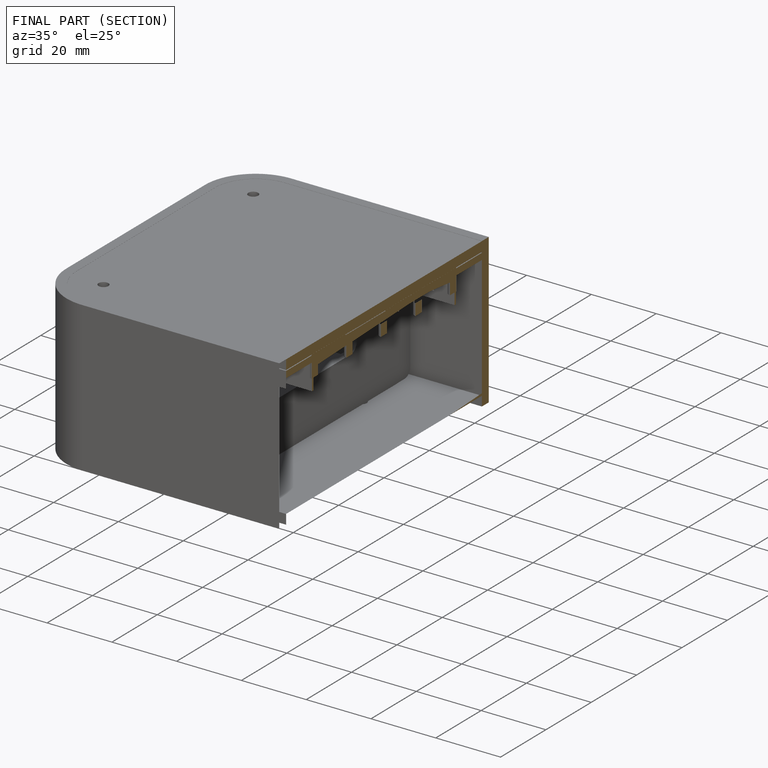
[diagram: finished part — half-section view (interior)]
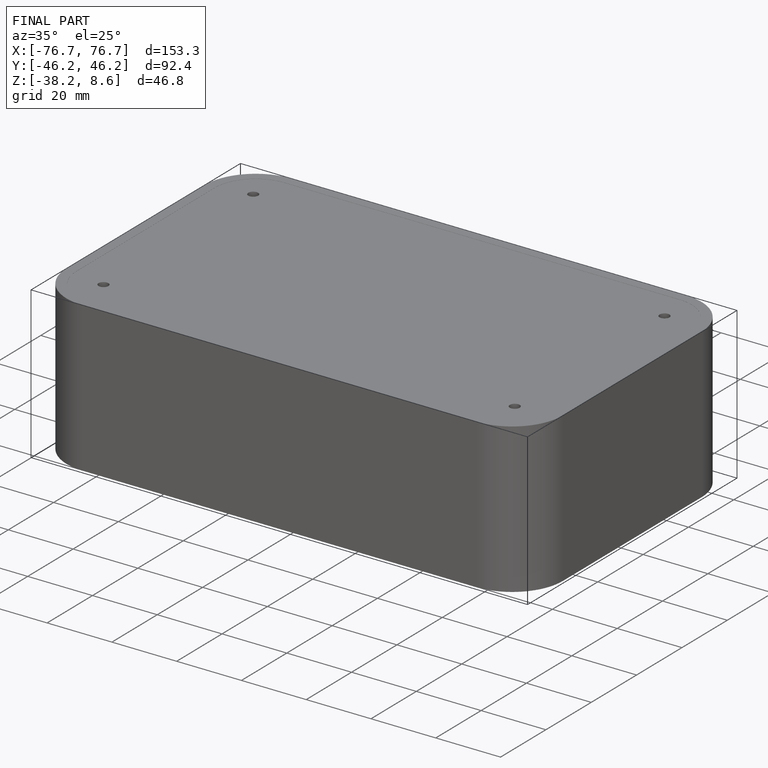
[diagram: finished part — iso view with bounding-box wireframe]
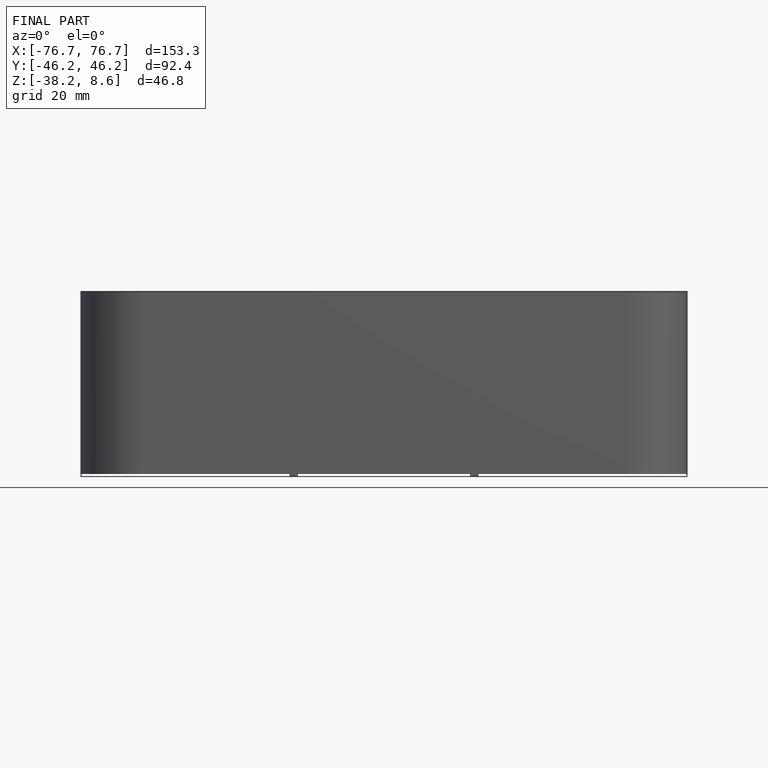
[diagram: finished part — front view with bounding-box wireframe]
